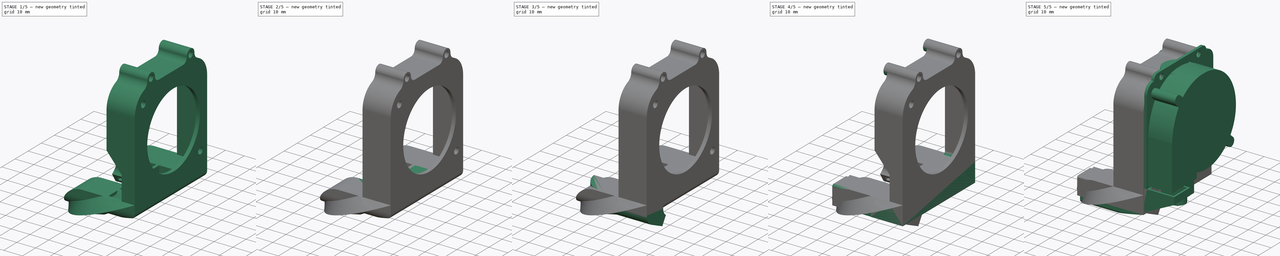
[diagram: build sequence overview — one tinted view per stage of 5, left to right]
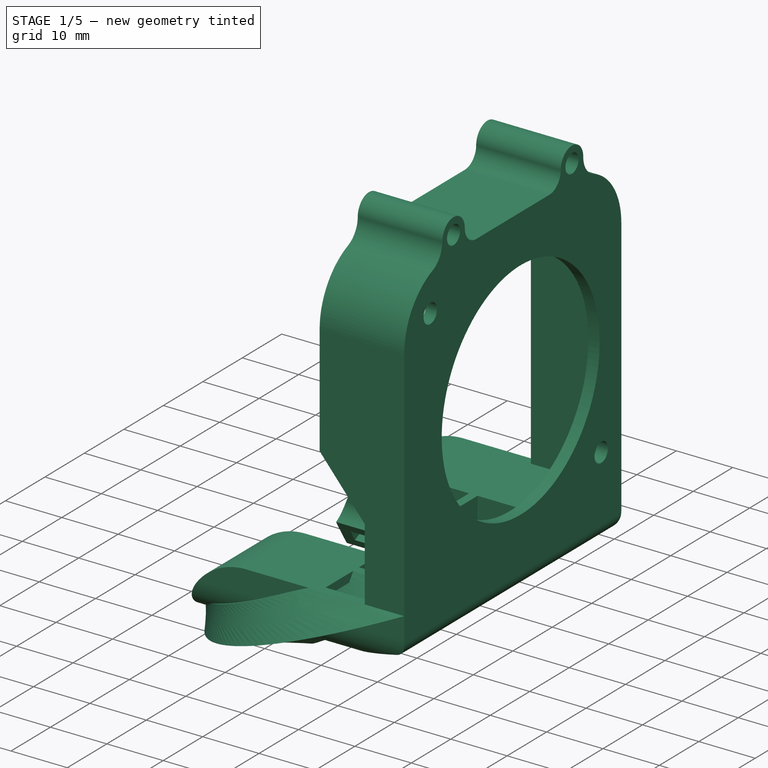
[diagram: stage 1 of 5 — iso view after this stage's code; geometry added in this stage tinted green]
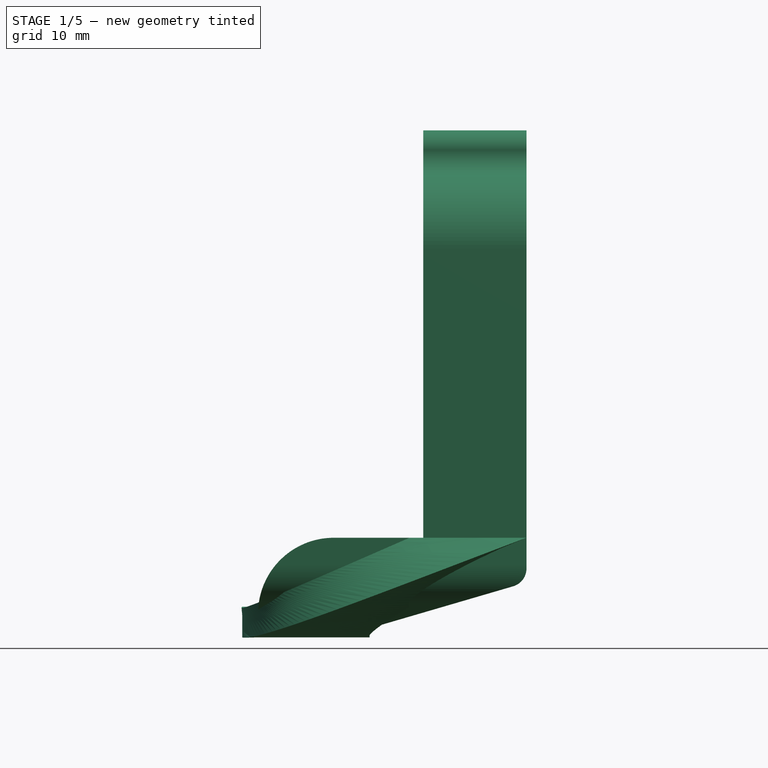
[diagram: stage 1 of 5 — front view after this stage's code; geometry added in this stage tinted green]
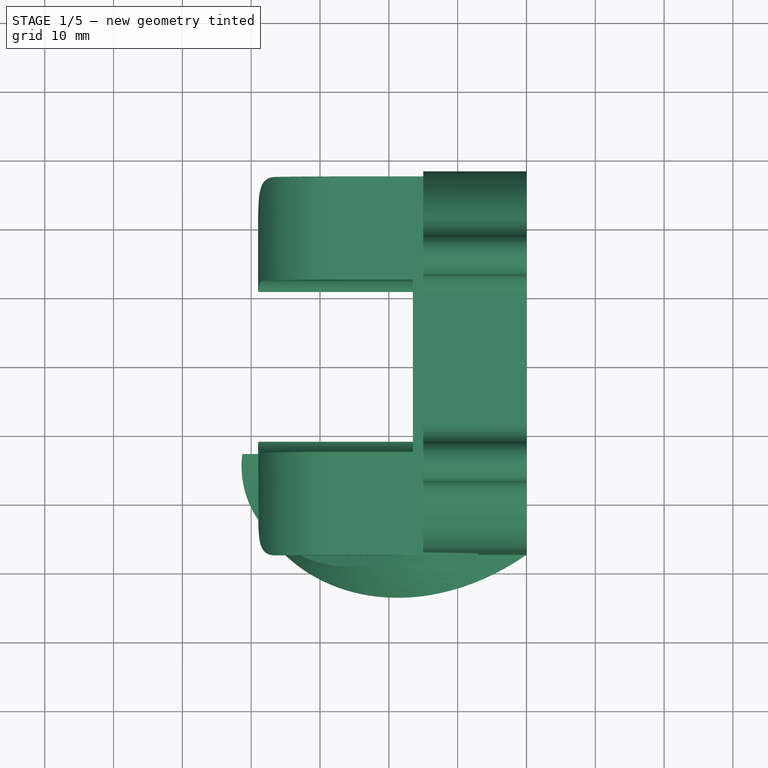
[diagram: stage 1 of 5 — top view after this stage's code; geometry added in this stage tinted green]
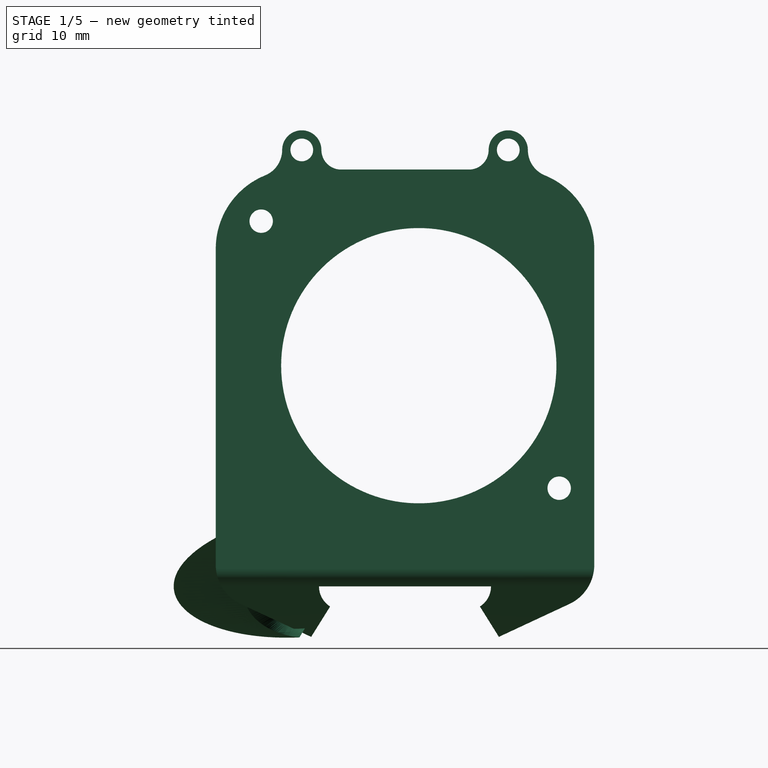
[diagram: stage 1 of 5 — right view after this stage's code; geometry added in this stage tinted green]
FCSTD DOCUMENT  (FreeCAD 0.21R33675 (Git))
Label: V6火山+5015方案B-垃圾桶
License: All rights reserved
LicenseURL: http://en.wikipedia.org/wiki/All_rights_reserved
objects: Sketcher::SketchObject×94, PartDesign::Pocket×49, PartDesign::Pad×35, PartDesign::Body×13, Part::Feature×13, PartDesign::Fillet×9, PartDesign::AdditivePipe×2, PartDesign::ShapeBinder×2, Part::Extrusion×2, PartDesign::Revolution×1, App::Part×1, PartDesign::Plane×1, PartDesign::SubtractivePipe×1, PartDesign::Mirrored×1, Part::Section×1
note: 321 computed .brp shape members not serialized (recipe doc carries the construction recipe); baked Part::Feature solids carry a one-line shape summary decoded from their .brp

FEATURE [PartDesign::Body] Body013  label="风扇安装座-还行2"
  Group = -> [Sketch085,Pad031,Sketch086,Pocket039,Sketch087,Pocket040,Sketch088,Pocket041,Sketch089,Pad032,Sketch090,Pocket042,Sketch091,Pocket043,Sketch092,Pad033,Sketch093,Pocket044,Fillet003,Fillet004,Fillet005]
  Origin = -> Origin017
  Placement = pos=(32,0,0) rot=(0,0,1;0rad)
  Tip = -> Fillet005
FEATURE [Sketcher::SketchObject] Sketch094
  FullyConstrained = true
  MapMode = 5
  Placement = pos=(0,0,0) rot=(0.57735,0.57735,0.57735;2.0944rad)
  Support = -> [YZ_Plane018]
  sketch-geometry (14):
    g0: Circle CenterX=15 CenterY=5.1 CenterZ=0 NormalX=0 NormalY=0 NormalZ=1 AngleXU=0 Radius=1.65
    g1: Circle CenterX=-15 CenterY=5.1 CenterZ=0 NormalX=0 NormalY=0 NormalZ=1 AngleXU=0 Radius=1.65
    g2: LineSegment StartX=27.5 StartY=-9.25366 StartZ=0 EndX=27.5 EndY=-51.25 EndZ=0
    g3: LineSegment StartX=27.5 StartY=-51.25 StartZ=0 EndX=-27.5 EndY=-51.25 EndZ=0
    g4: LineSegment StartX=-27.5 StartY=-51.25 StartZ=0 EndX=-27.5 EndY=-9.25366 EndZ=0
    g5: ArcOfCircle CenterX=-16 CenterY=-9.25366 CenterZ=0 NormalX=0 NormalY=0 NormalZ=1 AngleXU=0 Radius=11.5 StartAngle=1.9578 EndAngle=3.14159
    g6: ArcOfCircle CenterX=16 CenterY=-9.25366 CenterZ=0 NormalX=0 NormalY=0 NormalZ=1 AngleXU=0 Radius=11.5 StartAngle=1e-16 EndAngle=1.18379
    g7: ArcOfCircle CenterX=-15 CenterY=5.1 CenterZ=0 NormalX=0 NormalY=0 NormalZ=1 AngleXU=0 Radius=2.85 StartAngle=2e-16 EndAngle=3.14159
    g8: ArcOfCircle CenterX=15 CenterY=5.1 CenterZ=0 NormalX=0 NormalY=0 NormalZ=1 AngleXU=0 Radius=2.85 StartAngle=0 EndAngle=3.14159
    g9: ArcOfCircle CenterX=9.3 CenterY=5.1 CenterZ=0 NormalX=0 NormalY=0 NormalZ=1 AngleXU=0 Radius=2.85 StartAngle=4.71239 EndAngle=6.28319
    g10: ArcOfCircle CenterX=21.85 CenterY=5.1 CenterZ=0 NormalX=0 NormalY=0 NormalZ=1 AngleXU=0 Radius=4 StartAngle=3.14159 EndAngle=4.32538
    g11: ArcOfCircle CenterX=-9.3 CenterY=5.1 CenterZ=0 NormalX=0 NormalY=0 NormalZ=1 AngleXU=0 Radius=2.85 StartAngle=3.14159 EndAngle=4.71239
    g12: ArcOfCircle CenterX=-21.85 CenterY=5.1 CenterZ=0 NormalX=0 NormalY=0 NormalZ=1 AngleXU=0 Radius=4 StartAngle=5.0994 EndAngle=6.28319
    g13: LineSegment StartX=-9.3 StartY=2.25 StartZ=0 EndX=9.3 EndY=2.25 EndZ=0
  constraints (36):
    c: Symmetric(g1,g0,g-2)
    c: Diameter(g0) = 3.3
    c: DistanceX(g0) = 15
    c: DistanceY(g0) = 5.1
    c: Equal(g1,g0)
    c: Coincident(g3,g4)
    c: Vertical(g2)
    c: Vertical(g4)
    c: Coincident(g2,g3)
    c: Equal(g6,g5)
    c: Tangent(g6,g2) = 1.5708
    c: Tangent(g5,g4) = 1.5708
    c: Symmetric(g2,g3,g-2)
    c: Distance(g3) = 55
    c: Radius(g6) = 11.5
    c: Coincident(g7,g1)
    c: Coincident(g8,g0)
    c: Equal(g8,g7)
    c: Horizontal(g9,g8)
    c: Horizontal(g11,g7)
    c: Horizontal(g12,g7)
    c: Tangent(g13,g11) = -1.5708
    c: Tangent(g5,g12) = 1.5708
    c: Tangent(g6,g10) = 1.5708
    c: Diameter(g10) = 8
    c: Diameter(g9) = 5.7
    c: Tangent(g9,g13) = -1.5708
    c: Tangent(g8,g9) = 1.5708
    c: Tangent(g8,g10) = 1.5708
    c: Diameter(g11) = 5.7
    c: Equal(g12,g10)
    c: Tangent(g7,g12) = 1.5708
    c: Tangent(g7,g11) = 1.5708
    c: Diameter(g8) = 5.7
    c: Horizontal(g8,g8)
    c: DistanceY(g2,g9) = 53.5
FEATURE [PartDesign::Pad] Pad034
  Direction = (1,-2e-16,3e-16)
  Length = 15
  Length2 = 10
  Placement = pos=(0,0,0) rot=(0.57735,0.57735,0.57735;2.0944rad)
  Profile = -> Sketch094
  ReferenceAxis = -> Sketch094 [N_Axis]
  Reversed = true
  Type = 0
FEATURE [Sketcher::SketchObject] Sketch095
  AttachmentOffset = pos=(0,0,0) rot=(0,0,1;3.14159rad)
  ExternalGeometry = -> [Pad034]
  FullyConstrained = true
  MapMode = 5
  Placement = pos=(-15,3.3e-15,-3.3e-15) rot=(0.57735,-0.57735,-0.57735;2.0944rad)
  Support = -> [Pad034]
  sketch-geometry (6):
    g0: LineSegment StartX=-26 StartY=-9.25366 StartZ=0 EndX=-26 EndY=-51.25 EndZ=0
    g1: LineSegment StartX=-26 StartY=-51.25 StartZ=0 EndX=26 EndY=-51.25 EndZ=0
    g2: LineSegment StartX=26 StartY=-51.25 StartZ=0 EndX=26 EndY=-9.25366 EndZ=0
    g3: LineSegment StartX=-16 StartY=0.746342 StartZ=0 EndX=16 EndY=0.746342 EndZ=0
    g4: ArcOfCircle CenterX=-16 CenterY=-9.25366 CenterZ=0 NormalX=0 NormalY=0 NormalZ=1 AngleXU=0 Radius=10 StartAngle=1.5708 EndAngle=3.14159
    g5: ArcOfCircle CenterX=16 CenterY=-9.25366 CenterZ=0 NormalX=0 NormalY=0 NormalZ=1 AngleXU=0 Radius=10 StartAngle=0 EndAngle=1.5708
  constraints (14):
    c: Vertical(g0)
    c: Coincident(g0,g1)
    c: Horizontal(g1)
    c: Coincident(g1,g2)
    c: Vertical(g2)
    c: Horizontal(g3)
    c: Tangent(g5,g3) = 1.5708
    c: Tangent(g5,g2) = -1.5708
    c: Tangent(g4,g3) = 1.5708
    c: Tangent(g4,g0) = -1.5708
    c: Coincident(g4,g-6)
    c: Coincident(g5,g-4)
    c: DistanceX(g2,g-4) = 1.5
    c: PointOnObject(g1,g-8)
FEATURE [PartDesign::Pocket] Pocket045
  BaseFeature = -> Pad034
  Direction = (1,-5e-16,5e-16)
  Length = 0
  Length2 = 5
  Offset = -2
  Placement = pos=(0,0,0) rot=(0.57735,0.57735,0.57735;2.0944rad)
  Profile = -> Sketch095
  ReferenceAxis = -> Sketch095 [N_Axis]
  Type = 3
  UpToFace = -> Pad034 [Face13]
FEATURE [Sketcher::SketchObject] Sketch096
  ExternalGeometry = -> [Pocket045]
  FullyConstrained = true
  MapMode = 5
  Placement = pos=(0,0,0) rot=(0.57735,0.57735,0.57735;2.0944rad)
  Support = -> [Pocket045]
  sketch-geometry (5):
    g0: Circle CenterX=-15 CenterY=5.1 CenterZ=0 NormalX=0 NormalY=0 NormalZ=1 AngleXU=0 Radius=1.65
    g1: Circle CenterX=15 CenterY=5.1 CenterZ=0 NormalX=0 NormalY=0 NormalZ=1 AngleXU=0 Radius=1.65
    g2: Circle CenterX=22.4 CenterY=-44.05 CenterZ=0 NormalX=0 NormalY=0 NormalZ=1 AngleXU=0 Radius=1.7
    g3: Circle CenterX=-20.9 CenterY=-5.25 CenterZ=0 NormalX=0 NormalY=0 NormalZ=1 AngleXU=0 Radius=1.7
    g4: Circle CenterX=2 CenterY=-26.25 CenterZ=0 NormalX=0 NormalY=0 NormalZ=1 AngleXU=0 Radius=20
  constraints (13):
    c: Coincident(g0,g-4)
    c: Coincident(g1,g-3)
    c: Equal(g1,g0)
    c: Diameter(g1) = 3.3
    c: Diameter(g2) = 3.4
    c: DistanceX(g2,g-5) = 5.1
    c: DistanceY(g-5,g2) = 7.2
    c: DistanceY(g3,g-6) = 7.5
    c: Equal(g3,g2)
    c: DistanceX(g-7,g3) = 6.6
    c: DistanceX(g4,g-5) = 25.5
    c: DistanceY(g4,g-6) = 28.5
    c: Diameter(g4) = 40
FEATURE [PartDesign::Pocket] Pocket046
  BaseFeature = -> Pocket045
  Direction = (-1,9e-16,-6e-16)
  Length = 0
  Length2 = 5
  Placement = pos=(0,0,0) rot=(0.57735,0.57735,0.57735;2.0944rad)
  Profile = -> Sketch096
  ReferenceAxis = -> Sketch096 [N_Axis]
  Type = 3
  UpToFace = -> Pocket045 [Face5]
FEATURE [Sketcher::SketchObject] Sketch097
  AttachmentOffset = pos=(0,0,0) rot=(0,0,1;3.14159rad)
  ExternalGeometry = -> [Pocket046]
  FullyConstrained = true
  MapMode = 5
  Placement = pos=(-1.21e-14,-27.5,6.1e-15) rot=(-0.57735,0.57735,-0.57735;4.18879rad)
  Support = -> [Pocket046]
  sketch-geometry (4):
    g0: LineSegment StartX=-51.25 StartY=15 StartZ=0 EndX=-28.816 EndY=15 EndZ=0
    g1: LineSegment StartX=-28.816 StartY=15 StartZ=0 EndX=-38.35 EndY=7 EndZ=0
    g2: LineSegment StartX=-38.35 StartY=7 StartZ=0 EndX=-51.25 EndY=7 EndZ=0
    g3: LineSegment StartX=-51.25 StartY=7 StartZ=0 EndX=-51.25 EndY=15 EndZ=0
  constraints (11):
    c: Horizontal(g0)
    c: Coincident(g0,g1)
    c: Coincident(g1,g2)
    c: Horizontal(g2)
    c: Coincident(g2,g3)
    c: Coincident(g3,g0)
    c: Vertical(g3)
    c: Angle(g1,g2) = 2.44346
    c: Distance(g3) = 8
    c: Distance(g2) = 12.9
    c: Coincident(g0,g-3)
FEATURE [PartDesign::Pocket] Pocket047
  BaseFeature = -> Pocket046
  Direction = (4e-16,1,-8e-16)
  Length = 5
  Length2 = 5
  Placement = pos=(0,0,0) rot=(0.57735,0.57735,0.57735;2.0944rad)
  Profile = -> Sketch097
  ReferenceAxis = -> Sketch097 [N_Axis]
  Type = 0
FEATURE [Sketcher::SketchObject] Sketch098
  AttachmentOffset = pos=(0,0,-2) rot=(0,0,1;0rad)
  ExternalGeometry = -> [Pocket047]
  FullyConstrained = true
  MapMode = 5
  Placement = pos=(-2,4e-16,-4e-16) rot=(0.57735,0.57735,0.57735;2.0944rad)
  Support = -> [Pocket047]
  sketch-geometry (8):
    g0: LineSegment StartX=-27.5 StartY=-51.25 StartZ=0 EndX=-12.5 EndY=-51.25 EndZ=0
    g1: LineSegment StartX=-12.5 StartY=-51.25 StartZ=0 EndX=-12.5 EndY=-58.3226 EndZ=0
    g2: LineSegment StartX=-10.8828 StartY=-61.2401 StartZ=0 EndX=-13.6384 EndY=-65.65 EndZ=0
    g3: LineSegment StartX=-13.6384 StartY=-65.65 StartZ=0 EndX=-23.8625 EndY=-60.8824 EndZ=0
    g4: LineSegment StartX=-27.5 StartY=-55.1727 StartZ=0 EndX=-27.5 EndY=-51.25 EndZ=0
    g5: ArcOfCircle CenterX=-9.05973 CenterY=-58.3226 CenterZ=0 NormalX=0 NormalY=0 NormalZ=1 AngleXU=0 Radius=3.44027 StartAngle=3.14159 EndAngle=4.15388
    g6: ArcOfCircle CenterX=-21.2 CenterY=-55.1727 CenterZ=0 NormalX=0 NormalY=0 NormalZ=1 AngleXU=0 Radius=6.3 StartAngle=3.14159 EndAngle=4.27606
    g7: LineSegment StartX=-9.05973 StartY=-58.3226 StartZ=0 EndX=-10.8828 EndY=-61.2401 EndZ=0
  constraints (21):
    c: Horizontal(g0)
    c: Coincident(g0,g1)
    c: Coincident(g2,g3)
    c: Coincident(g4,g0)
    c: Vertical(g4)
    c: Coincident(g0,g-3)
    c: Tangent(g1,g5) = -1.5708
    c: Tangent(g3,g6) = 1.5708
    c: Tangent(g4,g6) = 1.5708
    c: Angle(g0,g2) = 1.01229
    c: Coincident(g2,g5)
    c: Vertical(g1)
    c: Coincident(g7,g5)
    c: Tangent(g7,g2) = -1.5708
    c: Angle(g2,g3) = 1.69297
    c: Diameter(g6) = 12.6
    c: Distance(g2) = 5.2
    c: DistanceY(g4,g0) = 3.92268
    c: DistanceY(g1,g0) = 7.07264
    c: Distance(g0) = 15
    c: DistanceY(g2,g0) = 14.4
FEATURE [PartDesign::Pad] Pad035
  BaseFeature = -> Pocket047
  Direction = (1,-2e-16,2e-16)
  Length = 37
  Length2 = 10
  Placement = pos=(0,0,0) rot=(0.57735,0.57735,0.57735;2.0944rad)
  Profile = -> Sketch098
  ReferenceAxis = -> Sketch098 [N_Axis]
  Reversed = true
  Type = 0
FEATURE [Sketcher::SketchObject] Sketch099
  AttachmentOffset = pos=(0,0,0) rot=(0,0,1;1.5708rad)
  ExternalGeometry = -> [Pad035]
  FullyConstrained = true
  MapMode = 5
  Placement = pos=(-1.21e-14,-27.5,0) rot=(1,0,0;1.5708rad)
  Support = -> [Pad035]
  sketch-geometry (3):
    g0: LineSegment StartX=-2 StartY=-58.3226 StartZ=0 EndX=-27.0576 EndY=-65.65 EndZ=0
    g1: LineSegment StartX=-27.0576 StartY=-65.65 StartZ=0 EndX=-2 EndY=-65.65 EndZ=0
    g2: LineSegment StartX=-2 StartY=-65.65 StartZ=0 EndX=-2 EndY=-58.3226 EndZ=0
  constraints (7):
    c: Coincident(g-4,g0)
    c: Coincident(g0,g1)
    c: Coincident(g1,g2)
    c: Coincident(g2,g0)
    c: Vertical(g2)
    c: Tangent(g1,g-5)
    c: Angle(g1,g0) = 0.284489
FEATURE [PartDesign::Pocket] Pocket048
  BaseFeature = -> Pad035
  Direction = (3e-16,1,0)
  Length = 5
  Length2 = 5
  Placement = pos=(0,0,0) rot=(0.57735,0.57735,0.57735;2.0944rad)
  Profile = -> Sketch099
  ReferenceAxis = -> Sketch099 [N_Axis]
  Type = 1
FEATURE [Sketcher::SketchObject] Sketch100
  AttachmentOffset = pos=(0,0,-2) rot=(0,0,1;3.14159rad)
  ExternalGeometry = -> [Pocket048]
  FullyConstrained = false
  MapMode = 5
  Placement = pos=(-37,8.1e-15,-8.1e-15) rot=(0.57735,-0.57735,-0.57735;2.0944rad)
  Support = -> [Pocket048]
  sketch-geometry (11):
    g0: LineSegment StartX=14 StartY=-58.3226 StartZ=0 EndX=14 EndY=-52.75 EndZ=0
    g1: LineSegment StartX=14 StartY=-52.75 StartZ=0 EndX=26 EndY=-52.75 EndZ=0
    g2: LineSegment StartX=26 StartY=-52.75 StartZ=0 EndX=26 EndY=-55.1727 EndZ=0
    g3: ArcOfCircle CenterX=21.2 CenterY=-55.1727 CenterZ=0 NormalX=0 NormalY=0 NormalZ=1 AngleXU=0 Radius=4.8 StartAngle=5.14872 EndAngle=6.28319
    g4: LineSegment StartX=23.2286 StartY=-59.523 StartZ=0 EndX=12.8375 EndY=-64.3684 EndZ=0
    g5: LineSegment StartX=12.8375 StartY=-64.3684 StartZ=0 EndX=11.6777 EndY=-62.5122 EndZ=0
    g6: ArcOfCircle CenterX=9.05973 CenterY=-58.3226 CenterZ=0 NormalX=0 NormalY=0 NormalZ=1 AngleXU=0 Radius=4.94027 StartAngle=5.27089 EndAngle=6.28319
    g7: LineSegment StartX=16.3057 StartY=-52.75 StartZ=0 EndX=16.3057 EndY=-51.25 EndZ=0
    g8: LineSegment StartX=14 StartY=-55.5478 StartZ=0 EndX=12.5 EndY=-55.5478 EndZ=0
    g9: LineSegment StartX=26 StartY=-54.3027 StartZ=0 EndX=27.5 EndY=-54.3027 EndZ=0
    g10: LineSegment StartX=19.9438 StartY=-61.0547 StartZ=0 EndX=20.5777 EndY=-62.4141 EndZ=0
  constraints (29):
    c: Vertical(g0)
    c: Coincident(g0,g1)
    c: Horizontal(g1)
    c: Coincident(g1,g2)
    c: Vertical(g2)
    c: Tangent(g2,g3) = 1.5708
    c: Tangent(g3,g4) = 1.5708
    c: Coincident(g4,g5)
    c: Tangent(g5,g-7)
    c: PointOnObject(g7,g1)
    c: PointOnObject(g7,g-3)
    c: Vertical(g7)
    c: PointOnObject(g8,g0)
    c: PointOnObject(g8,g-9)
    c: PointOnObject(g9,g2)
    c: PointOnObject(g9,g-4)
    c: Horizontal(g9)
    c: PointOnObject(g10,g4)
    c: PointOnObject(g10,g-6)
    c: Coincident(g3,g-5)
    c: Coincident(g6,g-8)
    c: Coincident(g5,g6)
    c: Perpendicular(g8,g0)
    c: Perpendicular(g10,g-6)
    c: Equal(g9,g7)
    c: Equal(g7,g8)
    c: Equal(g8,g10)
    c: Distance(g9) = 1.5
    c: Tangent(g0,g6) = -1.5708
FEATURE [PartDesign::Pocket] Pocket049
  BaseFeature = -> Pocket048
  Direction = (1,-7e-16,3e-16)
  Length = 0
  Length2 = 5
  Offset = -5
  Placement = pos=(0,0,0) rot=(0.57735,0.57735,0.57735;2.0944rad)
  Profile = -> Sketch100
  ReferenceAxis = -> Sketch100 [N_Axis]
  Type = 3
  UpToFace = -> Pocket048 [Face32]
FEATURE [Sketcher::SketchObject] Sketch101
  ExternalGeometry = -> [Pocket049]
  FullyConstrained = true
  MapMode = 5
  Placement = pos=(-2,4e-16,-4e-16) rot=(0.57735,0.57735,0.57735;2.0944rad)
  Support = -> [Pocket049]
  sketch-geometry (6):
    g0: LineSegment StartX=-27.5 StartY=-51.25 StartZ=0 EndX=-26 EndY=-51.25 EndZ=0
    g1: LineSegment StartX=-26 StartY=-51.25 StartZ=0 EndX=-12.5 EndY=-51.25 EndZ=0
    g2: LineSegment StartX=-12.5 StartY=-51.25 StartZ=0 EndX=-12.5 EndY=-58.3226 EndZ=0
    g3: LineSegment StartX=-27.5 StartY=-51.25 StartZ=0 EndX=-27.5 EndY=-55.1727 EndZ=0
    g4: ArcOfCircle CenterX=-21.2 CenterY=-55.1727 CenterZ=0 NormalX=0 NormalY=0 NormalZ=1 AngleXU=0 Radius=6.3 StartAngle=3.14159 EndAngle=3.66518
    g5: LineSegment StartX=-26.656 StartY=-58.3226 StartZ=0 EndX=-12.5 EndY=-58.3226 EndZ=0
  constraints (12):
    c: Coincident(g0,g-8)
    c: Coincident(g0,g1)
    c: Coincident(g1,g-4)
    c: Coincident(g1,g2)
    c: Coincident(g2,g-5)
    c: Coincident(g0,g3)
    c: Tangent(g3,g4) = -1.5708
    c: Coincident(g4,g5)
    c: Coincident(g5,g2)
    c: Coincident(g4,g-7)
    c: Coincident(g0,g-8)
    c: Coincident(g3,g-7)
FEATURE [PartDesign::Pad] Pad036
  BaseFeature = -> Pocket049
  Direction = (1,-8e-16,1e-16)
  Length = 2
  Length2 = 10
  Placement = pos=(0,0,0) rot=(0.57735,0.57735,0.57735;2.0944rad)
  Profile = -> Sketch101
  ReferenceAxis = -> Sketch101 [N_Axis]
  Type = 0
FEATURE [Sketcher::SketchObject] Sketch102
  ExternalGeometry = -> [Pad036]
  FullyConstrained = true
  MapMode = 5
  Placement = pos=(-1.25e-14,-12.5,-1.4e-15) rot=(0.57735,0.57735,0.57735;4.18879rad)
  Support = -> [Pad036]
  sketch-geometry (3):
    g0: LineSegment StartX=-58.3226 StartY=0 StartZ=0 EndX=-58.3226 EndY=-2 EndZ=0
    g1: LineSegment StartX=-58.3226 StartY=-2 StartZ=0 EndX=-57.7378 EndY=6.44e-14 EndZ=0
    g2: LineSegment StartX=-57.7378 StartY=6.44e-14 StartZ=0 EndX=-58.3226 EndY=0 EndZ=0
  constraints (7):
    c: Coincident(g-4,g0)
    c: Coincident(g0,g-3)
    c: Coincident(g0,g1)
    c: PointOnObject(g1,g-4)
    c: Coincident(g1,g2)
    c: Coincident(g2,g0)
    c: Tangent(g-5,g1)
FEATURE [PartDesign::Pocket] Pocket050
  BaseFeature = -> Pad036
  Direction = (-8e-16,-1,-1e-16)
  Length = 5
  Length2 = 5
  Placement = pos=(0,0,0) rot=(0.57735,0.57735,0.57735;2.0944rad)
  Profile = -> Sketch102
  ReferenceAxis = -> Sketch102 [N_Axis]
  Type = 1
FEATURE [PartDesign::Fillet] Fillet006
  Base = -> Pocket050 [Edge51,Edge117]
  BaseFeature = -> Pocket050
  Placement = pos=(0,0,0) rot=(0.57735,0.57735,0.57735;2.0944rad)
  Radius = 2.7
  SupportTransform = false
  UseAllEdges = false
FEATURE [PartDesign::Fillet] Fillet007
  Base = -> Fillet006 [Edge127,Edge89]
  BaseFeature = -> Fillet006
  Placement = pos=(0,0,0) rot=(0.57735,0.57735,0.57735;2.0944rad)
  Radius = 11
  SupportTransform = false
  UseAllEdges = false
FEATURE [PartDesign::Fillet] Fillet008
  Base = -> Fillet007 [Edge100]
  BaseFeature = -> Fillet007
  Placement = pos=(0,0,0) rot=(0.57735,0.57735,0.57735;2.0944rad)
  Radius = 1.2
  SupportTransform = false
  UseAllEdges = false
FEATURE [PartDesign::Mirrored] Mirrored
  BaseFeature = -> Fillet008
  MirrorPlane = -> XZ_Plane018
  Originals = -> [Pad035,Pocket048,Pocket049,Pad036,Pocket050,Fillet006,Fillet007,Fillet008]
  Placement = pos=(0,0,0) rot=(0.57735,0.57735,0.57735;2.0944rad)
FEATURE [Sketcher::SketchObject] Sketch103
  ExternalGeometry = -> [Mirrored]
  FullyConstrained = false
  MapMode = 5
  Placement = pos=(1.13e-14,-1.13e-14,-51.25) rot=(0,0,-1;1.5708rad)
  Support = -> [Mirrored]
  sketch-geometry (4):
    g0: LineSegment StartX=26 StartY=-2 StartZ=0 EndX=10.6424 EndY=-2 EndZ=0
    g1: LineSegment StartX=10.6424 StartY=-2 StartZ=0 EndX=10.6424 EndY=-15 EndZ=0
    g2: LineSegment StartX=10.6424 StartY=-15 StartZ=0 EndX=26 EndY=-15 EndZ=0
    g3: LineSegment StartX=26 StartY=-15 StartZ=0 EndX=26 EndY=-2 EndZ=0
  constraints (10):
    c: Coincident(g0,g1)
    c: Coincident(g1,g2)
    c: Coincident(g2,g3)
    c: Coincident(g3,g0)
    c: Horizontal(g0)
    c: Horizontal(g2)
    c: Vertical(g1)
    c: Vertical(g3)
    c: Coincident(g0,g-3)
    c: Distance(g3) = 13
FEATURE [PartDesign::Pocket] Pocket051
  BaseFeature = -> Mirrored
  Direction = (2e-16,-2e-16,-1)
  Length = 6
  Length2 = 5
  Placement = pos=(0,0,0) rot=(0.57735,0.57735,0.57735;2.0944rad)
  Profile = -> Sketch103
  ReferenceAxis = -> Sketch103 [N_Axis]
  Type = 0
FEATURE [Sketcher::SketchObject] Sketch104
  AttachmentOffset = pos=(0,0,0) rot=(0,0,-1;1.5708rad)
  ExternalGeometry = -> [Pocket051]
  FullyConstrained = true
  MapMode = 5
  Placement = pos=(-5.5e-15,-12.5,0) rot=(0,0.707107,0.707107;3.14159rad)
  Support = -> [Pocket051]
  sketch-geometry (10):
    g0: LineSegment StartX=1.9422 StartY=-58.3057 StartZ=0 EndX=2 EndY=-58.3226 EndZ=0
    g1: LineSegment StartX=2 StartY=-51.25 StartZ=0 EndX=-5.84e-14 EndY=-51.25 EndZ=0
    g2: LineSegment StartX=-5.84e-14 StartY=-51.25 StartZ=0 EndX=9.304e-13 EndY=-55.7143 EndZ=0
    g3: ArcOfCircle CenterX=2.7 CenterY=-55.7143 CenterZ=0 NormalX=0 NormalY=0 NormalZ=1 AngleXU=0 Radius=2.7 StartAngle=3.14159 EndAngle=4.4279
    g4: LineSegment StartX=2 StartY=-58.3226 StartZ=0 EndX=16.5 EndY=-58.3226 EndZ=0
    g5: LineSegment StartX=16.5 StartY=-58.3226 StartZ=0 EndX=16.5 EndY=-51.25 EndZ=0
    g6: LineSegment StartX=16.5 StartY=-51.25 StartZ=0 EndX=15 EndY=-51.25 EndZ=0
    g7: LineSegment StartX=15 StartY=-51.25 StartZ=0 EndX=15 EndY=-57.25 EndZ=0
    g8: LineSegment StartX=15 StartY=-57.25 StartZ=0 EndX=2 EndY=-57.25 EndZ=0
    g9: LineSegment StartX=2 StartY=-57.25 StartZ=0 EndX=2 EndY=-51.25 EndZ=0
  constraints (24):
    c: Coincident(g0,g-8)
    c: Coincident(g0,g-8)
    c: Coincident(g-3,g1)
    c: Coincident(g1,g-4)
    c: Coincident(g1,g2)
    c: Coincident(g2,g-5)
    c: Tangent(g2,g3) = -1.5708
    c: Coincident(g3,g0)
    c: Coincident(g0,g4)
    c: PointOnObject(g4,g-6)
    c: Coincident(g4,g5)
    c: PointOnObject(g5,g-7)
    c: Vertical(g5)
    c: Coincident(g5,g6)
    c: Coincident(g6,g-7)
    c: Coincident(g6,g7)
    c: Coincident(g7,g-9)
    c: Coincident(g7,g8)
    c: Coincident(g8,g-9)
    c: Coincident(g8,g9)
    c: Coincident(g9,g1)
    c: Distance(g6) = 2
    c: DistanceY(g0,g8) = 1.07264
    c: Distance(g6) = 1.5
FEATURE [PartDesign::Pad] Pad037
  BaseFeature = -> Pocket051
  Direction = (2e-16,1,-2e-16)
  Length = 10
  Length2 = 10
  Placement = pos=(0,0,0) rot=(0.57735,0.57735,0.57735;2.0944rad)
  Profile = -> Sketch104
  ReferenceAxis = -> Sketch104 [N_Axis]
  Type = 3
  UpToFace = -> Pocket051 [Face1]
FEATURE [PartDesign::Body] Body014  label="风扇安装座-能用1"
  Group = -> [Sketch094,Pad034,Sketch095,Pocket045,Sketch096,Pocket046,Sketch097,Pocket047,Sketch098,Pad035,Sketch099,Pocket048,Sketch100,Pocket049,Sketch101,Pad036,Sketch102,Pocket050,Fillet006,Fillet007,Fillet008,Mirrored,Sketch103,Pocket051,Sketch104,Pad037,Sketch105,Pocket052,Sketch106,Pad038,Sketch107,Pad039,Sketch108,Pad040]
  Origin = -> Origin018
  Placement = pos=(32,0,0) rot=(0,0,1;0rad)
  Tip = -> Pad040
FEATURE [Sketcher::SketchObject] Sketch109
  FullyConstrained = true
  MapMode = 5
  Placement = pos=(0,0,0) rot=(0.57735,0.57735,0.57735;2.0944rad)
  Support = -> [YZ_Plane019]
  sketch-geometry (14):
    g0: Circle CenterX=15 CenterY=5.1 CenterZ=0 NormalX=0 NormalY=0 NormalZ=1 AngleXU=0 Radius=1.65
    g1: Circle CenterX=-15 CenterY=5.1 CenterZ=0 NormalX=0 NormalY=0 NormalZ=1 AngleXU=0 Radius=1.65
    g2: LineSegment StartX=27.5 StartY=-9.25366 StartZ=0 EndX=27.5 EndY=-51.25 EndZ=0
    g3: LineSegment StartX=27.5 StartY=-51.25 StartZ=0 EndX=-27.5 EndY=-51.25 EndZ=0
    g4: LineSegment StartX=-27.5 StartY=-51.25 StartZ=0 EndX=-27.5 EndY=-9.25366 EndZ=0
    g5: ArcOfCircle CenterX=-16 CenterY=-9.25366 CenterZ=0 NormalX=0 NormalY=0 NormalZ=1 AngleXU=0 Radius=11.5 StartAngle=1.9578 EndAngle=3.14159
    g6: ArcOfCircle CenterX=16 CenterY=-9.25366 CenterZ=0 NormalX=0 NormalY=0 NormalZ=1 AngleXU=0 Radius=11.5 StartAngle=1e-16 EndAngle=1.18379
    g7: ArcOfCircle CenterX=-15 CenterY=5.1 CenterZ=0 NormalX=0 NormalY=0 NormalZ=1 AngleXU=0 Radius=2.85 StartAngle=2e-16 EndAngle=3.14159
    g8: ArcOfCircle CenterX=15 CenterY=5.1 CenterZ=0 NormalX=0 NormalY=0 NormalZ=1 AngleXU=0 Radius=2.85 StartAngle=0 EndAngle=3.14159
    g9: ArcOfCircle CenterX=9.3 CenterY=5.1 CenterZ=0 NormalX=0 NormalY=0 NormalZ=1 AngleXU=0 Radius=2.85 StartAngle=4.71239 EndAngle=6.28319
    g10: ArcOfCircle CenterX=21.85 CenterY=5.1 CenterZ=0 NormalX=0 NormalY=0 NormalZ=1 AngleXU=0 Radius=4 StartAngle=3.14159 EndAngle=4.32538
    g11: ArcOfCircle CenterX=-9.3 CenterY=5.1 CenterZ=0 NormalX=0 NormalY=0 NormalZ=1 AngleXU=0 Radius=2.85 StartAngle=3.14159 EndAngle=4.71239
    g12: ArcOfCircle CenterX=-21.85 CenterY=5.1 CenterZ=0 NormalX=0 NormalY=0 NormalZ=1 AngleXU=0 Radius=4 StartAngle=5.0994 EndAngle=6.28319
    g13: LineSegment StartX=-9.3 StartY=2.25 StartZ=0 EndX=9.3 EndY=2.25 EndZ=0
  constraints (36):
    c: Symmetric(g1,g0,g-2)
    c: Diameter(g0) = 3.3
    c: DistanceX(g0) = 15
    c: DistanceY(g0) = 5.1
    c: Equal(g1,g0)
    c: Coincident(g3,g4)
    c: Vertical(g2)
    c: Vertical(g4)
    c: Coincident(g2,g3)
    c: Equal(g6,g5)
    c: Tangent(g6,g2) = 1.5708
    c: Tangent(g5,g4) = 1.5708
    c: Symmetric(g2,g3,g-2)
    c: Distance(g3) = 55
    c: Radius(g6) = 11.5
    c: Coincident(g7,g1)
    c: Coincident(g8,g0)
    c: Equal(g8,g7)
    c: Horizontal(g9,g8)
    c: Horizontal(g11,g7)
    c: Horizontal(g12,g7)
    c: Tangent(g13,g11) = -1.5708
    c: Tangent(g5,g12) = 1.5708
    c: Tangent(g6,g10) = 1.5708
    c: Diameter(g10) = 8
    c: Diameter(g9) = 5.7
    c: Tangent(g9,g13) = -1.5708
    c: Tangent(g8,g9) = 1.5708
    c: Tangent(g8,g10) = 1.5708
    c: Diameter(g11) = 5.7
    c: Equal(g12,g10)
    c: Tangent(g7,g12) = 1.5708
    c: Tangent(g7,g11) = 1.5708
    c: Diameter(g8) = 5.7
    c: Horizontal(g8,g8)
    c: DistanceY(g2,g9) = 53.5
FEATURE [PartDesign::Pad] Pad041
  Direction = (1,-2e-16,3e-16)
  Length = 15
  Length2 = 10
  Placement = pos=(0,0,0) rot=(0.57735,0.57735,0.57735;2.0944rad)
  Profile = -> Sketch109
  ReferenceAxis = -> Sketch109 [N_Axis]
  Reversed = true
  Type = 0
FEATURE [Sketcher::SketchObject] Sketch110
  AttachmentOffset = pos=(0,0,0) rot=(0,0,1;3.14159rad)
  ExternalGeometry = -> [Pad041]
  FullyConstrained = true
  MapMode = 5
  Placement = pos=(-15,3.3e-15,-3.3e-15) rot=(0.57735,-0.57735,-0.57735;2.0944rad)
  Support = -> [Pad041]
  sketch-geometry (6):
    g0: LineSegment StartX=-26 StartY=-9.25366 StartZ=0 EndX=-26 EndY=-51.25 EndZ=0
    g1: LineSegment StartX=-26 StartY=-51.25 StartZ=0 EndX=26 EndY=-51.25 EndZ=0
    g2: LineSegment StartX=26 StartY=-51.25 StartZ=0 EndX=26 EndY=-9.25366 EndZ=0
    g3: LineSegment StartX=-16 StartY=0.746342 StartZ=0 EndX=16 EndY=0.746342 EndZ=0
    g4: ArcOfCircle CenterX=-16 CenterY=-9.25366 CenterZ=0 NormalX=0 NormalY=0 NormalZ=1 AngleXU=0 Radius=10 StartAngle=1.5708 EndAngle=3.14159
    g5: ArcOfCircle CenterX=16 CenterY=-9.25366 CenterZ=0 NormalX=0 NormalY=0 NormalZ=1 AngleXU=0 Radius=10 StartAngle=0 EndAngle=1.5708
  constraints (14):
    c: Vertical(g0)
    c: Coincident(g0,g1)
    c: Horizontal(g1)
    c: Coincident(g1,g2)
    c: Vertical(g2)
    c: Horizontal(g3)
    c: Tangent(g5,g3) = 1.5708
    c: Tangent(g5,g2) = -1.5708
    c: Tangent(g4,g3) = 1.5708
    c: Tangent(g4,g0) = -1.5708
    c: Coincident(g4,g-6)
    c: Coincident(g5,g-4)
    c: DistanceX(g2,g-4) = 1.5
    c: PointOnObject(g1,g-8)
FEATURE [PartDesign::Pocket] Pocket053
  BaseFeature = -> Pad041
  Direction = (1,-5e-16,5e-16)
  Length = 0
  Length2 = 5
  Offset = -2
  Placement = pos=(0,0,0) rot=(0.57735,0.57735,0.57735;2.0944rad)
  Profile = -> Sketch110
  ReferenceAxis = -> Sketch110 [N_Axis]
  Type = 3
  UpToFace = -> Pad041 [Face13]
FEATURE [Sketcher::SketchObject] Sketch111
  ExternalGeometry = -> [Pocket053]
  FullyConstrained = true
  MapMode = 5
  Placement = pos=(0,0,0) rot=(0.57735,0.57735,0.57735;2.0944rad)
  Support = -> [Pocket053]
  sketch-geometry (5):
    g0: Circle CenterX=-15 CenterY=5.1 CenterZ=0 NormalX=0 NormalY=0 NormalZ=1 AngleXU=0 Radius=1.65
    g1: Circle CenterX=15 CenterY=5.1 CenterZ=0 NormalX=0 NormalY=0 NormalZ=1 AngleXU=0 Radius=1.65
    g2: Circle CenterX=22.4 CenterY=-44.05 CenterZ=0 NormalX=0 NormalY=0 NormalZ=1 AngleXU=0 Radius=1.7
    g3: Circle CenterX=-20.9 CenterY=-5.25 CenterZ=0 NormalX=0 NormalY=0 NormalZ=1 AngleXU=0 Radius=1.7
    g4: Circle CenterX=2 CenterY=-26.25 CenterZ=0 NormalX=0 NormalY=0 NormalZ=1 AngleXU=0 Radius=20
  constraints (13):
    c: Coincident(g0,g-4)
    c: Coincident(g1,g-3)
    c: Equal(g1,g0)
    c: Diameter(g1) = 3.3
    c: Diameter(g2) = 3.4
    c: DistanceX(g2,g-5) = 5.1
    c: DistanceY(g-5,g2) = 7.2
    c: DistanceY(g3,g-6) = 7.5
    c: Equal(g3,g2)
    c: DistanceX(g-7,g3) = 6.6
    c: DistanceX(g4,g-5) = 25.5
    c: DistanceY(g4,g-6) = 28.5
    c: Diameter(g4) = 40
FEATURE [PartDesign::Pocket] Pocket054
  BaseFeature = -> Pocket053
  Direction = (-1,9e-16,-6e-16)
  Length = 0
  Length2 = 5
  Placement = pos=(0,0,0) rot=(0.57735,0.57735,0.57735;2.0944rad)
  Profile = -> Sketch111
  ReferenceAxis = -> Sketch111 [N_Axis]
  Type = 3
  UpToFace = -> Pocket053 [Face5]
FEATURE [Sketcher::SketchObject] Sketch112
  AttachmentOffset = pos=(0,0,0) rot=(0,0,1;3.14159rad)
  ExternalGeometry = -> [Pocket054]
  FullyConstrained = true
  MapMode = 5
  Placement = pos=(-1.21e-14,-27.5,6.1e-15) rot=(-0.57735,0.57735,-0.57735;4.18879rad)
  Support = -> [Pocket054]
  sketch-geometry (4):
    g0: LineSegment StartX=-51.25 StartY=15 StartZ=0 EndX=-28.816 EndY=15 EndZ=0
    g1: LineSegment StartX=-28.816 StartY=15 StartZ=0 EndX=-38.35 EndY=7 EndZ=0
    g2: LineSegment StartX=-38.35 StartY=7 StartZ=0 EndX=-51.25 EndY=7 EndZ=0
    g3: LineSegment StartX=-51.25 StartY=7 StartZ=0 EndX=-51.25 EndY=15 EndZ=0
  constraints (11):
    c: Horizontal(g0)
    c: Coincident(g0,g1)
    c: Coincident(g1,g2)
    c: Horizontal(g2)
    c: Coincident(g2,g3)
    c: Coincident(g3,g0)
    c: Vertical(g3)
    c: Angle(g1,g2) = 2.44346
    c: Distance(g3) = 8
    c: Distance(g2) = 12.9
    c: Coincident(g0,g-3)
FEATURE [PartDesign::Pocket] Pocket055  label="完成外壳"
  BaseFeature = -> Pocket054
  Direction = (4e-16,1,-8e-16)
  Length = 5
  Length2 = 5
  Placement = pos=(0,0,0) rot=(0.57735,0.57735,0.57735;2.0944rad)
  Profile = -> Sketch112
  ReferenceAxis = -> Sketch112 [N_Axis]
  Type = 0
FEATURE [Sketcher::SketchObject] Sketch113
  ExternalGeometry = -> [Pocket055]
  FullyConstrained = true
  MapMode = 5
  Placement = pos=(1.44e-14,-2.26e-14,-51.25) rot=(0.707107,0.707107,0;3.14159rad)
  Support = -> [Pocket055]
  sketch-geometry (8):
    g0: LineSegment StartX=-27.5 StartY=-7.1e-15 StartZ=0 EndX=-17.5 EndY=-7.1e-15 EndZ=0
    g1: LineSegment StartX=-17.5 StartY=-7.1e-15 StartZ=0 EndX=-17.5 EndY=-17 EndZ=0
    g2: LineSegment StartX=-17.5 StartY=-17 StartZ=0 EndX=-27.5 EndY=-17 EndZ=0
    g3: LineSegment StartX=-27.5 StartY=-17 StartZ=0 EndX=-27.5 EndY=-7.1e-15 EndZ=0
    g4: LineSegment StartX=-26 StartY=-2 StartZ=0 EndX=-19 EndY=-2 EndZ=0
    g5: LineSegment StartX=-19 StartY=-2 StartZ=0 EndX=-19 EndY=-15 EndZ=0
    g6: LineSegment StartX=-19 StartY=-15 StartZ=0 EndX=-26 EndY=-15 EndZ=0
    g7: LineSegment StartX=-26 StartY=-15 StartZ=0 EndX=-26 EndY=-2 EndZ=0
  constraints (22):
    c: Coincident(g0,g1)
    c: Coincident(g1,g2)
    c: Coincident(g2,g3)
    c: Coincident(g3,g0)
    c: Horizontal(g0)
    c: Horizontal(g2)
    c: Vertical(g1)
    c: Vertical(g3)
    c: Coincident(g0,g-3)
    c: Distance(g3) = 17
    c: Coincident(g4,g5)
    c: Coincident(g5,g6)
    c: Coincident(g6,g7)
    c: Coincident(g7,g4)
    c: Horizontal(g4)
    c: Horizontal(g6)
    c: Vertical(g5)
    c: Vertical(g7)
    c: Coincident(g4,g-4)
    c: Distance(g5) = 13
    c: DistanceX(g4,g0) = 1.5
    c: Distance(g6) = 7
FEATURE [Sketcher::SketchObject] Sketch114
  AttachmentOffset = pos=(-29,-63.5,14) rot=(-1,0,0;0.541052rad)
  FullyConstrained = true
  MapMode = 5
  Placement = pos=(-29,-14,-63.5) rot=(1,0,0;1.02974rad)
  Support = -> [XZ_Plane019]
  sketch-geometry (12):
    g0: LineSegment StartX=-12.3 StartY=2.6 StartZ=0 EndX=6.2 EndY=2.6 EndZ=0
    g1: LineSegment StartX=6.2 StartY=2.6 StartZ=0 EndX=6.2 EndY=-2.6 EndZ=0
    g2: LineSegment StartX=6.2 StartY=-2.6 StartZ=0 EndX=-12.3 EndY=-2.6 EndZ=0
    g3: LineSegment StartX=-12.3 StartY=-2.6 StartZ=0 EndX=-12.3 EndY=2.6 EndZ=0
    g4: LineSegment StartX=-10.7 StartY=1 StartZ=0 EndX=4.6 EndY=1 EndZ=0
    g5: LineSegment StartX=4.6 StartY=1 StartZ=0 EndX=4.6 EndY=-1 EndZ=0
    g6: LineSegment StartX=4.6 StartY=-1 StartZ=0 EndX=-10.7 EndY=-1 EndZ=0
    g7: LineSegment StartX=-10.7 StartY=-1 StartZ=0 EndX=-10.7 EndY=1 EndZ=0
    g8: LineSegment StartX=6.2 StartY=2.6 StartZ=0 EndX=4.6 EndY=1 EndZ=0
    g9: LineSegment StartX=-12.3 StartY=2.6 StartZ=0 EndX=-10.7 EndY=1 EndZ=0
    g10: LineSegment StartX=-12.3 StartY=-2.6 StartZ=0 EndX=-10.7 EndY=-1 EndZ=0
    g11: LineSegment StartX=4.6 StartY=-1 StartZ=0 EndX=6.2 EndY=-2.6 EndZ=0
  constraints (31):
    c: Coincident(g0,g1)
    c: Coincident(g1,g2)
    c: Coincident(g2,g3)
    c: Coincident(g3,g0)
    c: Horizontal(g0)
    c: Horizontal(g2)
    c: Vertical(g1)
    c: Distance(g0) = 18.5
    c: Coincident(g4,g5)
    c: Coincident(g5,g6)
    c: Coincident(g6,g7)
    c: Coincident(g7,g4)
    c: Horizontal(g4)
    c: Horizontal(g6)
    c: Vertical(g5)
    c: Vertical(g7)
    c: Distance(g5) = 2
    c: DistanceY(g4,g0) = 1.6
    c: DistanceX(g5,g1) = 1.6
    c: Coincident(g8,g0)
    c: Coincident(g8,g4)
    c: Coincident(g9,g0)
    c: Coincident(g9,g4)
    c: Coincident(g10,g2)
    c: Coincident(g10,g6)
    c: Coincident(g11,g5)
    c: Coincident(g11,g1)
    c: Equal(g8,g9)
    c: Equal(g9,g10)
    c: Symmetric(g0,g2,g-1)
    c: DistanceX(g4) = 4.6
FEATURE [Sketcher::SketchObject] Sketch115  label="路径左视图"
  ExternalGeometry = -> [Sketch113,Sketch114]
  FullyConstrained = true
  MapMode = 5
  Placement = pos=(0,0,0) rot=(1,0,0;1.5708rad)
  Support = -> [XZ_Plane019]
  sketch-geometry (2):
    g0: ArcOfCircle CenterX=-21.5 CenterY=-51.25 CenterZ=0 NormalX=0 NormalY=0 NormalZ=1 AngleXU=0 Radius=4.5 StartAngle=5.15928 EndAngle=6.28319
    g1: LineSegment StartX=-19.5553 StartY=-55.3081 StartZ=0 EndX=-41.3 EndY=-65.7286 EndZ=0
  constraints (5):
    c: Coincident(g0,g-3)
    c: Horizontal(g0,g0)
    c: Coincident(g1,g-4)
    c: Tangent(g1,g0) = 1.5708
    c: Diameter(g0) = 9
FEATURE [Sketcher::SketchObject] Sketch116  label="路径顶视图"
  ExternalGeometry = -> [Pocket055,Sketch114,Sketch113]
  FullyConstrained = true
  MapMode = 5
  Support = -> [XY_Plane019]
  sketch-geometry (2):
    g0: ArcOfCircle CenterX=-36.8 CenterY=-15.3391 CenterZ=0 NormalX=0 NormalY=0 NormalZ=1 AngleXU=0 Radius=4.5 StartAngle=3.14159 EndAngle=4.3565
    g1: LineSegment StartX=-38.3679 StartY=-19.5571 StartZ=0 EndX=-17 EndY=-27.5 EndZ=0
  constraints (5):
    c: Coincident(g0,g-4)
    c: Coincident(g1,g-5)
    c: Tangent(g1,g0) = -1.5708
    c: Horizontal(g0,g0)
    c: Diameter(g0) = 9
FEATURE [Part::Extrusion] Extrude
  Base = -> Sketch115
  Dir = (0,-1,-2e-16)
  DirMode = 2
  FaceMakerClass = Part::FaceMakerBullseye
  LengthFwd = 100
  LengthRev = 0
  Solid = false
  Symmetric = false
FEATURE [Part::Extrusion] Extrude001
  Base = -> Sketch116
  Dir = (0,0,1)
  DirMode = 2
  FaceMakerClass = Part::FaceMakerBullseye
  LengthFwd = 0
  LengthRev = 100
  Solid = false
  Symmetric = false
FEATURE [Part::Section] Section  label="风扇安装座-还行3-3d路径"
  Approximation = false
  Base = -> Extrude
  Tool = -> Extrude001
FEATURE [PartDesign::ShapeBinder] ShapeBinder001
  Support = -> [Section]
  TraceSupport = false
FEATURE [PartDesign::AdditivePipe] AdditivePipe001
  AuxilleryCurvelinear = true
  AuxillerySpineTangent = false
  BaseFeature = -> Pocket055
  Binormal = (0,0,0)
  Mode = 0
  Placement = pos=(0,0,0) rot=(0.57735,0.57735,0.57735;2.0944rad)
  Profile = -> Sketch113
  Sections = -> [Sketch114]
  Spine = -> ShapeBinder001 [Edge1]
  SpineTangent = false
  Transformation = 1
  Transition = 0
FEATURE [Sketcher::SketchObject] Sketch118  label="Sketch117"
  ExternalGeometry = -> [AdditivePipe001]
  FullyConstrained = true
  MapMode = 5
  Placement = pos=(1.44e-14,-2.26e-14,-51.25) rot=(0.707107,0.707107,0;3.14159rad)
  Support = -> [AdditivePipe001]
  sketch-geometry (9):
    g0: LineSegment StartX=-19 StartY=-1.07e-14 StartZ=0 EndX=-6.2 EndY=-1.07e-14 EndZ=0
    g1: LineSegment StartX=-6.2 StartY=-1.07e-14 StartZ=0 EndX=-6.2 EndY=-17 EndZ=0
    g2: LineSegment StartX=-6.2 StartY=-17 StartZ=0 EndX=-19 EndY=-17 EndZ=0
    g3: LineSegment StartX=-19 StartY=-17 StartZ=0 EndX=-19 EndY=-1.07e-14 EndZ=0
    g4: GeomPoint X=-17.5 Y=-1.05e-14 Z=0
    g5: LineSegment StartX=-7.7 StartY=-2 StartZ=0 EndX=-17.5 EndY=-2 EndZ=0
    g6: LineSegment StartX=-17.5 StartY=-2 StartZ=0 EndX=-17.5 EndY=-15 EndZ=0
    g7: LineSegment StartX=-17.5 StartY=-15 StartZ=0 EndX=-7.7 EndY=-15 EndZ=0
    g8: LineSegment StartX=-7.7 StartY=-15 StartZ=0 EndX=-7.7 EndY=-2 EndZ=0
  constraints (26):
    c: Coincident(g0,g1)
    c: Coincident(g1,g2)
    c: Coincident(g2,g3)
    c: Coincident(g3,g0)
    c: Horizontal(g0)
    c: Horizontal(g2)
    c: Vertical(g1)
    c: Vertical(g3)
    c: PointOnObject(g4,g0)
    c: DistanceX(g0,g4) = 1.5
    c: DistanceY(g1,g1) = 17
    c: Coincident(g5,g6)
    c: Coincident(g6,g7)
    c: Coincident(g7,g8)
    c: Coincident(g8,g5)
    c: Horizontal(g5)
    c: Horizontal(g7)
    c: Vertical(g6)
    c: Vertical(g8)
    c: DistanceX(g5,g0) = 1.5
    c: Vertical(g4,g5)
    c: Vertical(g3,g-3)
    c: Horizontal(g3,g-4)
    c: Horizontal(g6,g-3)
    c: DistanceY(g2,g6) = 2
    c: Distance(g7) = 9.8
FEATURE [PartDesign::Body] Body015  label="风扇安装座-还行3"
  Group = -> [Sketch109,Pad041,Sketch110,Pocket053,Sketch111,Pocket054,Sketch112,Pocket055,Sketch113,Sketch114,Sketch115,Sketch116,ShapeBinder001,AdditivePipe001,Sketch118]
  Origin = -> Origin019
  Placement = pos=(32,0,0) rot=(0,0,1;0rad)
  Tip = -> AdditivePipe001
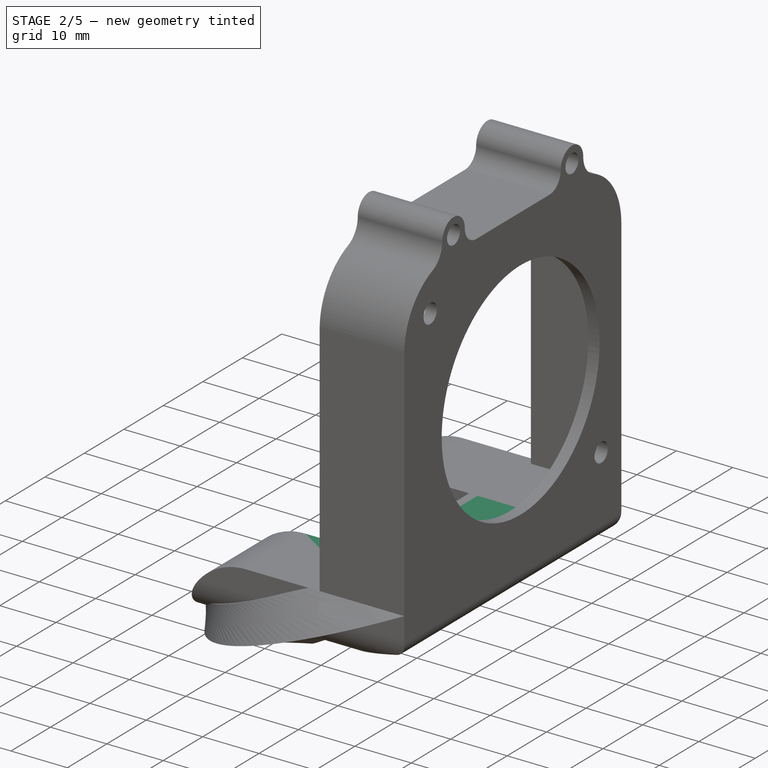
[diagram: stage 2 of 5 — iso view after this stage's code; geometry added in this stage tinted green]
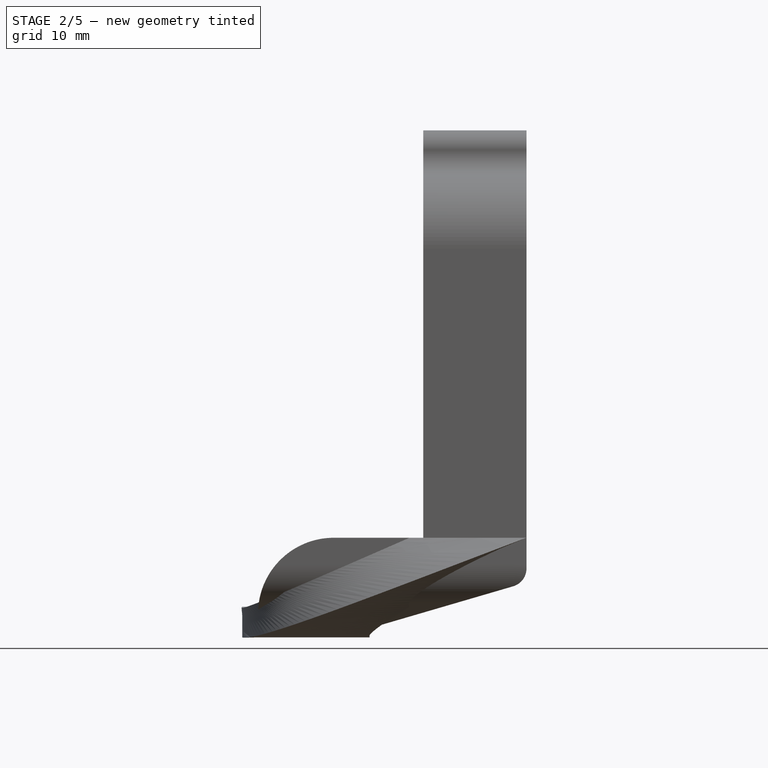
[diagram: stage 2 of 5 — front view after this stage's code; geometry added in this stage tinted green]
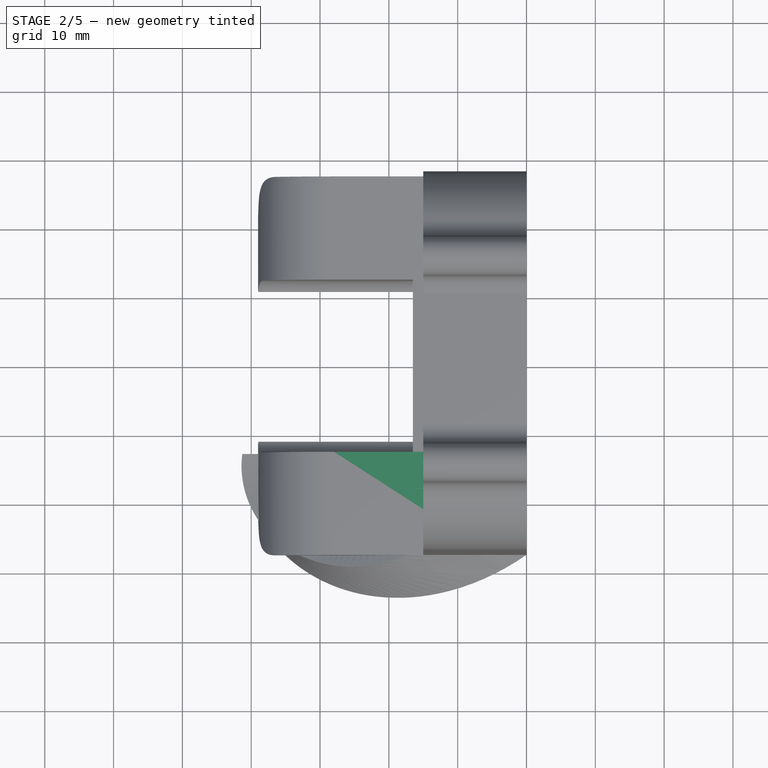
[diagram: stage 2 of 5 — top view after this stage's code; geometry added in this stage tinted green]
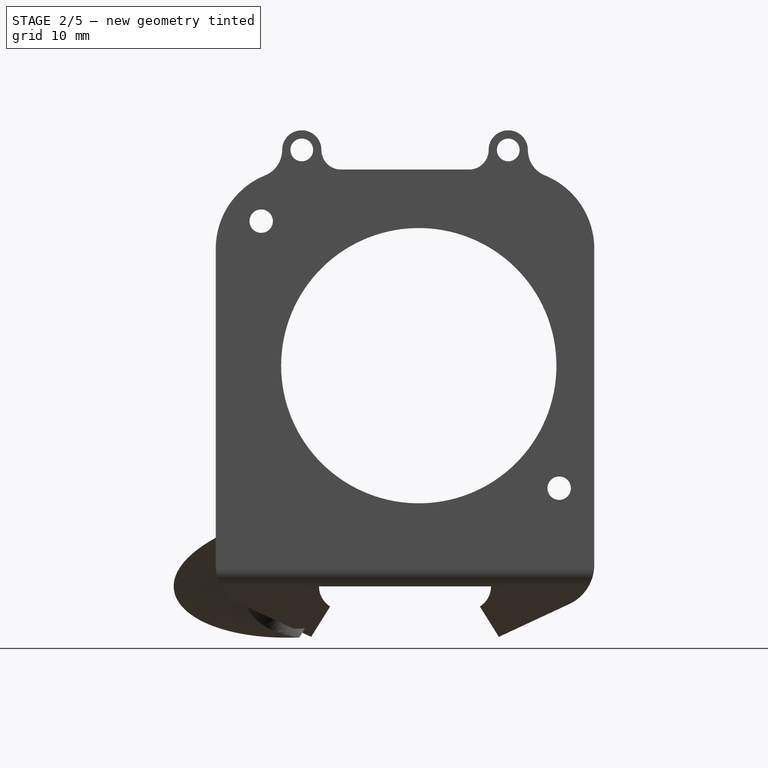
[diagram: stage 2 of 5 — right view after this stage's code; geometry added in this stage tinted green]
FEATURE [PartDesign::Body] Body010  label="风扇安装座-废品6"
  Group = -> [Sketch065,Pad026,Sketch066,Pocket026,Sketch067,Pocket027,Sketch068,Pocket028,Sketch069,Pad027,Sketch070,Pocket029,Sketch071,Pocket030]
  Origin = -> Origin014
  Placement = pos=(32,0,0) rot=(0,0,1;0rad)
  Tip = -> Pocket030
FEATURE [Sketcher::SketchObject] Sketch072
  FullyConstrained = true
  MapMode = 5
  Placement = pos=(0,0,0) rot=(0.57735,0.57735,0.57735;2.0944rad)
  Support = -> [YZ_Plane015]
  sketch-geometry (14):
    g0: Circle CenterX=15 CenterY=5.1 CenterZ=0 NormalX=0 NormalY=0 NormalZ=1 AngleXU=0 Radius=1.65
    g1: Circle CenterX=-15 CenterY=5.1 CenterZ=0 NormalX=0 NormalY=0 NormalZ=1 AngleXU=0 Radius=1.65
    g2: LineSegment StartX=27.5 StartY=-9.25366 StartZ=0 EndX=27.5 EndY=-51.25 EndZ=0
    g3: LineSegment StartX=27.5 StartY=-51.25 StartZ=0 EndX=-27.5 EndY=-51.25 EndZ=0
    g4: LineSegment StartX=-27.5 StartY=-51.25 StartZ=0 EndX=-27.5 EndY=-9.25366 EndZ=0
    g5: ArcOfCircle CenterX=-16 CenterY=-9.25366 CenterZ=0 NormalX=0 NormalY=0 NormalZ=1 AngleXU=0 Radius=11.5 StartAngle=1.9578 EndAngle=3.14159
    g6: ArcOfCircle CenterX=16 CenterY=-9.25366 CenterZ=0 NormalX=0 NormalY=0 NormalZ=1 AngleXU=0 Radius=11.5 StartAngle=1e-16 EndAngle=1.18379
    g7: ArcOfCircle CenterX=-15 CenterY=5.1 CenterZ=0 NormalX=0 NormalY=0 NormalZ=1 AngleXU=0 Radius=2.85 StartAngle=2e-16 EndAngle=3.14159
    g8: ArcOfCircle CenterX=15 CenterY=5.1 CenterZ=0 NormalX=0 NormalY=0 NormalZ=1 AngleXU=0 Radius=2.85 StartAngle=0 EndAngle=3.14159
    g9: ArcOfCircle CenterX=9.3 CenterY=5.1 CenterZ=0 NormalX=0 NormalY=0 NormalZ=1 AngleXU=0 Radius=2.85 StartAngle=4.71239 EndAngle=6.28319
    g10: ArcOfCircle CenterX=21.85 CenterY=5.1 CenterZ=0 NormalX=0 NormalY=0 NormalZ=1 AngleXU=0 Radius=4 StartAngle=3.14159 EndAngle=4.32538
    g11: ArcOfCircle CenterX=-9.3 CenterY=5.1 CenterZ=0 NormalX=0 NormalY=0 NormalZ=1 AngleXU=0 Radius=2.85 StartAngle=3.14159 EndAngle=4.71239
    g12: ArcOfCircle CenterX=-21.85 CenterY=5.1 CenterZ=0 NormalX=0 NormalY=0 NormalZ=1 AngleXU=0 Radius=4 StartAngle=5.0994 EndAngle=6.28319
    g13: LineSegment StartX=-9.3 StartY=2.25 StartZ=0 EndX=9.3 EndY=2.25 EndZ=0
  constraints (36):
    c: Symmetric(g1,g0,g-2)
    c: Diameter(g0) = 3.3
    c: DistanceX(g0) = 15
    c: DistanceY(g0) = 5.1
    c: Equal(g1,g0)
    c: Coincident(g3,g4)
    c: Vertical(g2)
    c: Vertical(g4)
    c: Coincident(g2,g3)
    c: Equal(g6,g5)
    c: Tangent(g6,g2) = 1.5708
    c: Tangent(g5,g4) = 1.5708
    c: Symmetric(g2,g3,g-2)
    c: Distance(g3) = 55
    c: Radius(g6) = 11.5
    c: Coincident(g7,g1)
    c: Coincident(g8,g0)
    c: Equal(g8,g7)
    c: Horizontal(g9,g8)
    c: Horizontal(g11,g7)
    c: Horizontal(g12,g7)
    c: Tangent(g13,g11) = -1.5708
    c: Tangent(g5,g12) = 1.5708
    c: Tangent(g6,g10) = 1.5708
    c: Diameter(g10) = 8
    c: Diameter(g9) = 5.7
    c: Tangent(g9,g13) = -1.5708
    c: Tangent(g8,g9) = 1.5708
    c: Tangent(g8,g10) = 1.5708
    c: Diameter(g11) = 5.7
    c: Equal(g12,g10)
    c: Tangent(g7,g12) = 1.5708
    c: Tangent(g7,g11) = 1.5708
    c: Diameter(g8) = 5.7
    c: Horizontal(g8,g8)
    c: DistanceY(g2,g9) = 53.5
FEATURE [PartDesign::Pad] Pad028
  Direction = (1,-2e-16,3e-16)
  Length = 15
  Length2 = 10
  Placement = pos=(0,0,0) rot=(0.57735,0.57735,0.57735;2.0944rad)
  Profile = -> Sketch072
  ReferenceAxis = -> Sketch072 [N_Axis]
  Reversed = true
  Type = 0
FEATURE [Sketcher::SketchObject] Sketch073
  AttachmentOffset = pos=(0,0,0) rot=(0,0,1;3.14159rad)
  ExternalGeometry = -> [Pad028]
  FullyConstrained = true
  MapMode = 5
  Placement = pos=(-15,3.3e-15,-3.3e-15) rot=(0.57735,-0.57735,-0.57735;2.0944rad)
  Support = -> [Pad028]
  sketch-geometry (6):
    g0: LineSegment StartX=-26 StartY=-9.25366 StartZ=0 EndX=-26 EndY=-51.25 EndZ=0
    g1: LineSegment StartX=-26 StartY=-51.25 StartZ=0 EndX=26 EndY=-51.25 EndZ=0
    g2: LineSegment StartX=26 StartY=-51.25 StartZ=0 EndX=26 EndY=-9.25366 EndZ=0
    g3: LineSegment StartX=-16 StartY=0.746342 StartZ=0 EndX=16 EndY=0.746342 EndZ=0
    g4: ArcOfCircle CenterX=-16 CenterY=-9.25366 CenterZ=0 NormalX=0 NormalY=0 NormalZ=1 AngleXU=0 Radius=10 StartAngle=1.5708 EndAngle=3.14159
    g5: ArcOfCircle CenterX=16 CenterY=-9.25366 CenterZ=0 NormalX=0 NormalY=0 NormalZ=1 AngleXU=0 Radius=10 StartAngle=0 EndAngle=1.5708
  constraints (14):
    c: Vertical(g0)
    c: Coincident(g0,g1)
    c: Horizontal(g1)
    c: Coincident(g1,g2)
    c: Vertical(g2)
    c: Horizontal(g3)
    c: Tangent(g5,g3) = 1.5708
    c: Tangent(g5,g2) = -1.5708
    c: Tangent(g4,g3) = 1.5708
    c: Tangent(g4,g0) = -1.5708
    c: Coincident(g4,g-6)
    c: Coincident(g5,g-4)
    c: DistanceX(g2,g-4) = 1.5
    c: PointOnObject(g1,g-8)
FEATURE [PartDesign::Pocket] Pocket031
  BaseFeature = -> Pad028
  Direction = (1,-5e-16,5e-16)
  Length = 0
  Length2 = 5
  Offset = -2
  Placement = pos=(0,0,0) rot=(0.57735,0.57735,0.57735;2.0944rad)
  Profile = -> Sketch073
  ReferenceAxis = -> Sketch073 [N_Axis]
  Type = 3
  UpToFace = -> Pad028 [Face13]
FEATURE [Sketcher::SketchObject] Sketch074
  ExternalGeometry = -> [Pocket031]
  FullyConstrained = true
  MapMode = 5
  Placement = pos=(0,0,0) rot=(0.57735,0.57735,0.57735;2.0944rad)
  Support = -> [Pocket031]
  sketch-geometry (5):
    g0: Circle CenterX=-15 CenterY=5.1 CenterZ=0 NormalX=0 NormalY=0 NormalZ=1 AngleXU=0 Radius=1.65
    g1: Circle CenterX=15 CenterY=5.1 CenterZ=0 NormalX=0 NormalY=0 NormalZ=1 AngleXU=0 Radius=1.65
    g2: Circle CenterX=22.4 CenterY=-44.05 CenterZ=0 NormalX=0 NormalY=0 NormalZ=1 AngleXU=0 Radius=1.7
    g3: Circle CenterX=-20.9 CenterY=-5.25 CenterZ=0 NormalX=0 NormalY=0 NormalZ=1 AngleXU=0 Radius=1.7
    g4: Circle CenterX=2 CenterY=-26.25 CenterZ=0 NormalX=0 NormalY=0 NormalZ=1 AngleXU=0 Radius=20
  constraints (13):
    c: Coincident(g0,g-4)
    c: Coincident(g1,g-3)
    c: Equal(g1,g0)
    c: Diameter(g1) = 3.3
    c: Diameter(g2) = 3.4
    c: DistanceX(g2,g-5) = 5.1
    c: DistanceY(g-5,g2) = 7.2
    c: DistanceY(g3,g-6) = 7.5
    c: Equal(g3,g2)
    c: DistanceX(g-7,g3) = 6.6
    c: DistanceX(g4,g-5) = 25.5
    c: DistanceY(g4,g-6) = 28.5
    c: Diameter(g4) = 40
FEATURE [PartDesign::Pocket] Pocket032
  BaseFeature = -> Pocket031
  Direction = (-1,9e-16,-6e-16)
  Length = 0
  Length2 = 5
  Placement = pos=(0,0,0) rot=(0.57735,0.57735,0.57735;2.0944rad)
  Profile = -> Sketch074
  ReferenceAxis = -> Sketch074 [N_Axis]
  Type = 3
  UpToFace = -> Pocket031 [Face5]
FEATURE [PartDesign::Body] Body011  label="风扇安装座-还行1"
  Group = -> [Sketch072,Pad028,Sketch073,Pocket031,Sketch074,Pocket032,Sketch075,Pocket033,Sketch076,Pad029,Sketch077,Pocket034,Sketch078,Pocket035,Sketch079,Sketch080,ShapeBinder,SubtractivePipe]
  Origin = -> Origin015
  Placement = pos=(32,0,0) rot=(0,0,1;0rad)
  Tip = -> SubtractivePipe
FEATURE [Sketcher::SketchObject] Sketch085
  FullyConstrained = true
  MapMode = 5
  Placement = pos=(0,0,0) rot=(0.57735,0.57735,0.57735;2.0944rad)
  Support = -> [YZ_Plane017]
  sketch-geometry (14):
    g0: Circle CenterX=15 CenterY=5.1 CenterZ=0 NormalX=0 NormalY=0 NormalZ=1 AngleXU=0 Radius=1.65
    g1: Circle CenterX=-15 CenterY=5.1 CenterZ=0 NormalX=0 NormalY=0 NormalZ=1 AngleXU=0 Radius=1.65
    g2: LineSegment StartX=27.5 StartY=-9.25366 StartZ=0 EndX=27.5 EndY=-51.25 EndZ=0
    g3: LineSegment StartX=27.5 StartY=-51.25 StartZ=0 EndX=-27.5 EndY=-51.25 EndZ=0
    g4: LineSegment StartX=-27.5 StartY=-51.25 StartZ=0 EndX=-27.5 EndY=-9.25366 EndZ=0
    g5: ArcOfCircle CenterX=-16 CenterY=-9.25366 CenterZ=0 NormalX=0 NormalY=0 NormalZ=1 AngleXU=0 Radius=11.5 StartAngle=1.9578 EndAngle=3.14159
    g6: ArcOfCircle CenterX=16 CenterY=-9.25366 CenterZ=0 NormalX=0 NormalY=0 NormalZ=1 AngleXU=0 Radius=11.5 StartAngle=1e-16 EndAngle=1.18379
    g7: ArcOfCircle CenterX=-15 CenterY=5.1 CenterZ=0 NormalX=0 NormalY=0 NormalZ=1 AngleXU=0 Radius=2.85 StartAngle=2e-16 EndAngle=3.14159
    g8: ArcOfCircle CenterX=15 CenterY=5.1 CenterZ=0 NormalX=0 NormalY=0 NormalZ=1 AngleXU=0 Radius=2.85 StartAngle=0 EndAngle=3.14159
    g9: ArcOfCircle CenterX=9.3 CenterY=5.1 CenterZ=0 NormalX=0 NormalY=0 NormalZ=1 AngleXU=0 Radius=2.85 StartAngle=4.71239 EndAngle=6.28319
    g10: ArcOfCircle CenterX=21.85 CenterY=5.1 CenterZ=0 NormalX=0 NormalY=0 NormalZ=1 AngleXU=0 Radius=4 StartAngle=3.14159 EndAngle=4.32538
    g11: ArcOfCircle CenterX=-9.3 CenterY=5.1 CenterZ=0 NormalX=0 NormalY=0 NormalZ=1 AngleXU=0 Radius=2.85 StartAngle=3.14159 EndAngle=4.71239
    g12: ArcOfCircle CenterX=-21.85 CenterY=5.1 CenterZ=0 NormalX=0 NormalY=0 NormalZ=1 AngleXU=0 Radius=4 StartAngle=5.0994 EndAngle=6.28319
    g13: LineSegment StartX=-9.3 StartY=2.25 StartZ=0 EndX=9.3 EndY=2.25 EndZ=0
  constraints (36):
    c: Symmetric(g1,g0,g-2)
    c: Diameter(g0) = 3.3
    c: DistanceX(g0) = 15
    c: DistanceY(g0) = 5.1
    c: Equal(g1,g0)
    c: Coincident(g3,g4)
    c: Vertical(g2)
    c: Vertical(g4)
    c: Coincident(g2,g3)
    c: Equal(g6,g5)
    c: Tangent(g6,g2) = 1.5708
    c: Tangent(g5,g4) = 1.5708
    c: Symmetric(g2,g3,g-2)
    c: Distance(g3) = 55
    c: Radius(g6) = 11.5
    c: Coincident(g7,g1)
    c: Coincident(g8,g0)
    c: Equal(g8,g7)
    c: Horizontal(g9,g8)
    c: Horizontal(g11,g7)
    c: Horizontal(g12,g7)
    c: Tangent(g13,g11) = -1.5708
    c: Tangent(g5,g12) = 1.5708
    c: Tangent(g6,g10) = 1.5708
    c: Diameter(g10) = 8
    c: Diameter(g9) = 5.7
    c: Tangent(g9,g13) = -1.5708
    c: Tangent(g8,g9) = 1.5708
    c: Tangent(g8,g10) = 1.5708
    c: Diameter(g11) = 5.7
    c: Equal(g12,g10)
    c: Tangent(g7,g12) = 1.5708
    c: Tangent(g7,g11) = 1.5708
    c: Diameter(g8) = 5.7
    c: Horizontal(g8,g8)
    c: DistanceY(g2,g9) = 53.5
FEATURE [PartDesign::Pad] Pad031
  Direction = (1,-2e-16,3e-16)
  Length = 15
  Length2 = 10
  Placement = pos=(0,0,0) rot=(0.57735,0.57735,0.57735;2.0944rad)
  Profile = -> Sketch085
  ReferenceAxis = -> Sketch085 [N_Axis]
  Reversed = true
  Type = 0
FEATURE [Sketcher::SketchObject] Sketch086
  AttachmentOffset = pos=(0,0,0) rot=(0,0,1;3.14159rad)
  ExternalGeometry = -> [Pad031]
  FullyConstrained = true
  MapMode = 5
  Placement = pos=(-15,3.3e-15,-3.3e-15) rot=(0.57735,-0.57735,-0.57735;2.0944rad)
  Support = -> [Pad031]
  sketch-geometry (6):
    g0: LineSegment StartX=-26 StartY=-9.25366 StartZ=0 EndX=-26 EndY=-51.25 EndZ=0
    g1: LineSegment StartX=-26 StartY=-51.25 StartZ=0 EndX=26 EndY=-51.25 EndZ=0
    g2: LineSegment StartX=26 StartY=-51.25 StartZ=0 EndX=26 EndY=-9.25366 EndZ=0
    g3: LineSegment StartX=-16 StartY=0.746342 StartZ=0 EndX=16 EndY=0.746342 EndZ=0
    g4: ArcOfCircle CenterX=-16 CenterY=-9.25366 CenterZ=0 NormalX=0 NormalY=0 NormalZ=1 AngleXU=0 Radius=10 StartAngle=1.5708 EndAngle=3.14159
    g5: ArcOfCircle CenterX=16 CenterY=-9.25366 CenterZ=0 NormalX=0 NormalY=0 NormalZ=1 AngleXU=0 Radius=10 StartAngle=0 EndAngle=1.5708
  constraints (14):
    c: Vertical(g0)
    c: Coincident(g0,g1)
    c: Horizontal(g1)
    c: Coincident(g1,g2)
    c: Vertical(g2)
    c: Horizontal(g3)
    c: Tangent(g5,g3) = 1.5708
    c: Tangent(g5,g2) = -1.5708
    c: Tangent(g4,g3) = 1.5708
    c: Tangent(g4,g0) = -1.5708
    c: Coincident(g4,g-6)
    c: Coincident(g5,g-4)
    c: DistanceX(g2,g-4) = 1.5
    c: PointOnObject(g1,g-8)
FEATURE [PartDesign::Pocket] Pocket039
  BaseFeature = -> Pad031
  Direction = (1,-5e-16,5e-16)
  Length = 0
  Length2 = 5
  Offset = -2
  Placement = pos=(0,0,0) rot=(0.57735,0.57735,0.57735;2.0944rad)
  Profile = -> Sketch086
  ReferenceAxis = -> Sketch086 [N_Axis]
  Type = 3
  UpToFace = -> Pad031 [Face13]
FEATURE [Sketcher::SketchObject] Sketch087
  ExternalGeometry = -> [Pocket039]
  FullyConstrained = true
  MapMode = 5
  Placement = pos=(0,0,0) rot=(0.57735,0.57735,0.57735;2.0944rad)
  Support = -> [Pocket039]
  sketch-geometry (5):
    g0: Circle CenterX=-15 CenterY=5.1 CenterZ=0 NormalX=0 NormalY=0 NormalZ=1 AngleXU=0 Radius=1.65
    g1: Circle CenterX=15 CenterY=5.1 CenterZ=0 NormalX=0 NormalY=0 NormalZ=1 AngleXU=0 Radius=1.65
    g2: Circle CenterX=22.4 CenterY=-44.05 CenterZ=0 NormalX=0 NormalY=0 NormalZ=1 AngleXU=0 Radius=1.7
    g3: Circle CenterX=-20.9 CenterY=-5.25 CenterZ=0 NormalX=0 NormalY=0 NormalZ=1 AngleXU=0 Radius=1.7
    g4: Circle CenterX=2 CenterY=-26.25 CenterZ=0 NormalX=0 NormalY=0 NormalZ=1 AngleXU=0 Radius=20
  constraints (13):
    c: Coincident(g0,g-4)
    c: Coincident(g1,g-3)
    c: Equal(g1,g0)
    c: Diameter(g1) = 3.3
    c: Diameter(g2) = 3.4
    c: DistanceX(g2,g-5) = 5.1
    c: DistanceY(g-5,g2) = 7.2
    c: DistanceY(g3,g-6) = 7.5
    c: Equal(g3,g2)
    c: DistanceX(g-7,g3) = 6.6
    c: DistanceX(g4,g-5) = 25.5
    c: DistanceY(g4,g-6) = 28.5
    c: Diameter(g4) = 40
FEATURE [PartDesign::Pocket] Pocket040
  BaseFeature = -> Pocket039
  Direction = (-1,9e-16,-6e-16)
  Length = 0
  Length2 = 5
  Placement = pos=(0,0,0) rot=(0.57735,0.57735,0.57735;2.0944rad)
  Profile = -> Sketch087
  ReferenceAxis = -> Sketch087 [N_Axis]
  Type = 3
  UpToFace = -> Pocket039 [Face5]
FEATURE [Sketcher::SketchObject] Sketch088
  AttachmentOffset = pos=(0,0,0) rot=(0,0,1;3.14159rad)
  ExternalGeometry = -> [Pocket040]
  FullyConstrained = true
  MapMode = 5
  Placement = pos=(-1.21e-14,-27.5,6.1e-15) rot=(-0.57735,0.57735,-0.57735;4.18879rad)
  Support = -> [Pocket040]
  sketch-geometry (4):
    g0: LineSegment StartX=-51.25 StartY=15 StartZ=0 EndX=-28.816 EndY=15 EndZ=0
    g1: LineSegment StartX=-28.816 StartY=15 StartZ=0 EndX=-38.35 EndY=7 EndZ=0
    g2: LineSegment StartX=-38.35 StartY=7 StartZ=0 EndX=-51.25 EndY=7 EndZ=0
    g3: LineSegment StartX=-51.25 StartY=7 StartZ=0 EndX=-51.25 EndY=15 EndZ=0
  constraints (11):
    c: Horizontal(g0)
    c: Coincident(g0,g1)
    c: Coincident(g1,g2)
    c: Horizontal(g2)
    c: Coincident(g2,g3)
    c: Coincident(g3,g0)
    c: Vertical(g3)
    c: Angle(g1,g2) = 2.44346
    c: Distance(g3) = 8
    c: Distance(g2) = 12.9
    c: Coincident(g0,g-3)
FEATURE [PartDesign::Pocket] Pocket041
  BaseFeature = -> Pocket040
  Direction = (4e-16,1,-8e-16)
  Length = 5
  Length2 = 5
  Placement = pos=(0,0,0) rot=(0.57735,0.57735,0.57735;2.0944rad)
  Profile = -> Sketch088
  ReferenceAxis = -> Sketch088 [N_Axis]
  Type = 0
FEATURE [Sketcher::SketchObject] Sketch089
  AttachmentOffset = pos=(0,0,-2) rot=(0,0,1;0rad)
  ExternalGeometry = -> [Pocket041]
  FullyConstrained = true
  MapMode = 5
  Placement = pos=(-2,4e-16,-4e-16) rot=(0.57735,0.57735,0.57735;2.0944rad)
  Support = -> [Pocket041]
  sketch-geometry (8):
    g0: LineSegment StartX=-27.5 StartY=-51.25 StartZ=0 EndX=-12.5 EndY=-51.25 EndZ=0
    g1: LineSegment StartX=-12.5 StartY=-51.25 StartZ=0 EndX=-12.5 EndY=-58.3226 EndZ=0
    g2: LineSegment StartX=-10.8828 StartY=-61.2401 StartZ=0 EndX=-13.6384 EndY=-65.65 EndZ=0
    g3: LineSegment StartX=-13.6384 StartY=-65.65 StartZ=0 EndX=-23.8625 EndY=-60.8824 EndZ=0
    g4: LineSegment StartX=-27.5 StartY=-55.1727 StartZ=0 EndX=-27.5 EndY=-51.25 EndZ=0
    g5: ArcOfCircle CenterX=-9.05973 CenterY=-58.3226 CenterZ=0 NormalX=0 NormalY=0 NormalZ=1 AngleXU=0 Radius=3.44027 StartAngle=3.14159 EndAngle=4.15388
    g6: ArcOfCircle CenterX=-21.2 CenterY=-55.1727 CenterZ=0 NormalX=0 NormalY=0 NormalZ=1 AngleXU=0 Radius=6.3 StartAngle=3.14159 EndAngle=4.27606
    g7: LineSegment StartX=-9.05973 StartY=-58.3226 StartZ=0 EndX=-10.8828 EndY=-61.2401 EndZ=0
  constraints (21):
    c: Horizontal(g0)
    c: Coincident(g0,g1)
    c: Coincident(g2,g3)
    c: Coincident(g4,g0)
    c: Vertical(g4)
    c: Coincident(g0,g-3)
    c: Tangent(g1,g5) = -1.5708
    c: Tangent(g3,g6) = 1.5708
    c: Tangent(g4,g6) = 1.5708
    c: Angle(g0,g2) = 1.01229
    c: Coincident(g2,g5)
    c: Vertical(g1)
    c: Coincident(g7,g5)
    c: Tangent(g7,g2) = -1.5708
    c: Angle(g2,g3) = 1.69297
    c: Diameter(g6) = 12.6
    c: Distance(g2) = 5.2
    c: DistanceY(g4,g0) = 3.92268
    c: DistanceY(g1,g0) = 7.07264
    c: Distance(g0) = 15
    c: DistanceY(g2,g0) = 14.4
FEATURE [PartDesign::Pad] Pad032
  BaseFeature = -> Pocket041
  Direction = (1,-2e-16,2e-16)
  Length = 37
  Length2 = 10
  Placement = pos=(0,0,0) rot=(0.57735,0.57735,0.57735;2.0944rad)
  Profile = -> Sketch089
  ReferenceAxis = -> Sketch089 [N_Axis]
  Reversed = true
  Type = 0
FEATURE [Sketcher::SketchObject] Sketch090
  AttachmentOffset = pos=(0,0,0) rot=(0,0,1;1.5708rad)
  ExternalGeometry = -> [Pad032]
  FullyConstrained = true
  MapMode = 5
  Placement = pos=(-1.21e-14,-27.5,0) rot=(1,0,0;1.5708rad)
  Support = -> [Pad032]
  sketch-geometry (3):
    g0: LineSegment StartX=-2 StartY=-58.3226 StartZ=0 EndX=-27.0576 EndY=-65.65 EndZ=0
    g1: LineSegment StartX=-27.0576 StartY=-65.65 StartZ=0 EndX=-2 EndY=-65.65 EndZ=0
    g2: LineSegment StartX=-2 StartY=-65.65 StartZ=0 EndX=-2 EndY=-58.3226 EndZ=0
  constraints (7):
    c: Coincident(g-4,g0)
    c: Coincident(g0,g1)
    c: Coincident(g1,g2)
    c: Coincident(g2,g0)
    c: Vertical(g2)
    c: Tangent(g1,g-5)
    c: Angle(g1,g0) = 0.284489
FEATURE [PartDesign::Pocket] Pocket042
  BaseFeature = -> Pad032
  Direction = (3e-16,1,0)
  Length = 5
  Length2 = 5
  Placement = pos=(0,0,0) rot=(0.57735,0.57735,0.57735;2.0944rad)
  Profile = -> Sketch090
  ReferenceAxis = -> Sketch090 [N_Axis]
  Type = 1
FEATURE [Sketcher::SketchObject] Sketch091
  AttachmentOffset = pos=(0,0,-2) rot=(0,0,1;3.14159rad)
  ExternalGeometry = -> [Pocket042]
  FullyConstrained = false
  MapMode = 5
  Placement = pos=(-37,8.1e-15,-8.1e-15) rot=(0.57735,-0.57735,-0.57735;2.0944rad)
  Support = -> [Pocket042]
  sketch-geometry (11):
    g0: LineSegment StartX=14 StartY=-58.3226 StartZ=0 EndX=14 EndY=-52.75 EndZ=0
    g1: LineSegment StartX=14 StartY=-52.75 StartZ=0 EndX=26 EndY=-52.75 EndZ=0
    g2: LineSegment StartX=26 StartY=-52.75 StartZ=0 EndX=26 EndY=-55.1727 EndZ=0
    g3: ArcOfCircle CenterX=21.2 CenterY=-55.1727 CenterZ=0 NormalX=0 NormalY=0 NormalZ=1 AngleXU=0 Radius=4.8 StartAngle=5.14872 EndAngle=6.28319
    g4: LineSegment StartX=23.2286 StartY=-59.523 StartZ=0 EndX=12.8375 EndY=-64.3684 EndZ=0
    g5: LineSegment StartX=12.8375 StartY=-64.3684 StartZ=0 EndX=11.6777 EndY=-62.5122 EndZ=0
    g6: ArcOfCircle CenterX=9.05973 CenterY=-58.3226 CenterZ=0 NormalX=0 NormalY=0 NormalZ=1 AngleXU=0 Radius=4.94027 StartAngle=5.27089 EndAngle=6.28319
    g7: LineSegment StartX=16.3057 StartY=-52.75 StartZ=0 EndX=16.3057 EndY=-51.25 EndZ=0
    g8: LineSegment StartX=14 StartY=-55.5478 StartZ=0 EndX=12.5 EndY=-55.5478 EndZ=0
    g9: LineSegment StartX=26 StartY=-54.3027 StartZ=0 EndX=27.5 EndY=-54.3027 EndZ=0
    g10: LineSegment StartX=19.9438 StartY=-61.0547 StartZ=0 EndX=20.5777 EndY=-62.4141 EndZ=0
  constraints (29):
    c: Vertical(g0)
    c: Coincident(g0,g1)
    c: Horizontal(g1)
    c: Coincident(g1,g2)
    c: Vertical(g2)
    c: Tangent(g2,g3) = 1.5708
    c: Tangent(g3,g4) = 1.5708
    c: Coincident(g4,g5)
    c: Tangent(g5,g-7)
    c: PointOnObject(g7,g1)
    c: PointOnObject(g7,g-3)
    c: Vertical(g7)
    c: PointOnObject(g8,g0)
    c: PointOnObject(g8,g-9)
    c: PointOnObject(g9,g2)
    c: PointOnObject(g9,g-4)
    c: Horizontal(g9)
    c: PointOnObject(g10,g4)
    c: PointOnObject(g10,g-6)
    c: Coincident(g3,g-5)
    c: Coincident(g6,g-8)
    c: Coincident(g5,g6)
    c: Perpendicular(g8,g0)
    c: Perpendicular(g10,g-6)
    c: Equal(g9,g7)
    c: Equal(g7,g8)
    c: Equal(g8,g10)
    c: Distance(g9) = 1.5
    c: Tangent(g0,g6) = -1.5708
FEATURE [PartDesign::Pocket] Pocket043
  BaseFeature = -> Pocket042
  Direction = (1,-7e-16,3e-16)
  Length = 0
  Length2 = 5
  Offset = -5
  Placement = pos=(0,0,0) rot=(0.57735,0.57735,0.57735;2.0944rad)
  Profile = -> Sketch091
  ReferenceAxis = -> Sketch091 [N_Axis]
  Type = 3
  UpToFace = -> Pocket042 [Face32]
FEATURE [Sketcher::SketchObject] Sketch092
  ExternalGeometry = -> [Pocket043]
  FullyConstrained = true
  MapMode = 5
  Placement = pos=(-2,4e-16,-4e-16) rot=(0.57735,0.57735,0.57735;2.0944rad)
  Support = -> [Pocket043]
  sketch-geometry (6):
    g0: LineSegment StartX=-27.5 StartY=-51.25 StartZ=0 EndX=-26 EndY=-51.25 EndZ=0
    g1: LineSegment StartX=-26 StartY=-51.25 StartZ=0 EndX=-12.5 EndY=-51.25 EndZ=0
    g2: LineSegment StartX=-12.5 StartY=-51.25 StartZ=0 EndX=-12.5 EndY=-58.3226 EndZ=0
    g3: LineSegment StartX=-27.5 StartY=-51.25 StartZ=0 EndX=-27.5 EndY=-55.1727 EndZ=0
    g4: ArcOfCircle CenterX=-21.2 CenterY=-55.1727 CenterZ=0 NormalX=0 NormalY=0 NormalZ=1 AngleXU=0 Radius=6.3 StartAngle=3.14159 EndAngle=3.66518
    g5: LineSegment StartX=-26.656 StartY=-58.3226 StartZ=0 EndX=-12.5 EndY=-58.3226 EndZ=0
  constraints (12):
    c: Coincident(g0,g-8)
    c: Coincident(g0,g1)
    c: Coincident(g1,g-4)
    c: Coincident(g1,g2)
    c: Coincident(g2,g-5)
    c: Coincident(g0,g3)
    c: Tangent(g3,g4) = -1.5708
    c: Coincident(g4,g5)
    c: Coincident(g5,g2)
    c: Coincident(g4,g-7)
    c: Coincident(g0,g-8)
    c: Coincident(g3,g-7)
FEATURE [PartDesign::Pad] Pad033
  BaseFeature = -> Pocket043
  Direction = (1,-8e-16,1e-16)
  Length = 2
  Length2 = 10
  Placement = pos=(0,0,0) rot=(0.57735,0.57735,0.57735;2.0944rad)
  Profile = -> Sketch092
  ReferenceAxis = -> Sketch092 [N_Axis]
  Type = 0
FEATURE [Sketcher::SketchObject] Sketch093
  ExternalGeometry = -> [Pad033]
  FullyConstrained = true
  MapMode = 5
  Placement = pos=(-1.25e-14,-12.5,-1.4e-15) rot=(0.57735,0.57735,0.57735;4.18879rad)
  Support = -> [Pad033]
  sketch-geometry (3):
    g0: LineSegment StartX=-58.3226 StartY=0 StartZ=0 EndX=-58.3226 EndY=-2 EndZ=0
    g1: LineSegment StartX=-58.3226 StartY=-2 StartZ=0 EndX=-57.7378 EndY=6.44e-14 EndZ=0
    g2: LineSegment StartX=-57.7378 StartY=6.44e-14 StartZ=0 EndX=-58.3226 EndY=0 EndZ=0
  constraints (7):
    c: Coincident(g-4,g0)
    c: Coincident(g0,g-3)
    c: Coincident(g0,g1)
    c: PointOnObject(g1,g-4)
    c: Coincident(g1,g2)
    c: Coincident(g2,g0)
    c: Tangent(g-5,g1)
FEATURE [PartDesign::Pocket] Pocket044
  BaseFeature = -> Pad033
  Direction = (-8e-16,-1,-1e-16)
  Length = 5
  Length2 = 5
  Placement = pos=(0,0,0) rot=(0.57735,0.57735,0.57735;2.0944rad)
  Profile = -> Sketch093
  ReferenceAxis = -> Sketch093 [N_Axis]
  Type = 1
FEATURE [PartDesign::Fillet] Fillet003
  Base = -> Pocket044 [Edge51,Edge117]
  BaseFeature = -> Pocket044
  Placement = pos=(0,0,0) rot=(0.57735,0.57735,0.57735;2.0944rad)
  Radius = 2.78
  SupportTransform = false
  UseAllEdges = false
FEATURE [PartDesign::Fillet] Fillet004
  Base = -> Fillet003 [Edge127,Edge89]
  BaseFeature = -> Fillet003
  Placement = pos=(0,0,0) rot=(0.57735,0.57735,0.57735;2.0944rad)
  Radius = 11
  SupportTransform = false
  UseAllEdges = false
FEATURE [PartDesign::Fillet] Fillet005
  Base = -> Fillet004 [Edge100]
  BaseFeature = -> Fillet004
  Placement = pos=(0,0,0) rot=(0.57735,0.57735,0.57735;2.0944rad)
  Radius = 1.2
  SupportTransform = false
  UseAllEdges = false
FEATURE [Sketcher::SketchObject] Sketch105
  AttachmentOffset = pos=(0,0,0) rot=(0,0,1;1.5708rad)
  ExternalGeometry = -> [Pad037]
  FullyConstrained = true
  MapMode = 5
  Placement = pos=(-2.8e-15,12.5,-2.8e-15) rot=(1,0,0;1.5708rad)
  Support = -> [Pad037]
  sketch-geometry (4):
    g0: LineSegment StartX=-15 StartY=-57.25 StartZ=0 EndX=-2 EndY=-57.25 EndZ=0
    g1: LineSegment StartX=-2 StartY=-57.25 StartZ=0 EndX=-2 EndY=-52.05 EndZ=0
    g2: LineSegment StartX=-2 StartY=-52.05 StartZ=0 EndX=-15 EndY=-52.05 EndZ=0
    g3: LineSegment StartX=-15 StartY=-52.05 StartZ=0 EndX=-15 EndY=-57.25 EndZ=0
  constraints (11):
    c: Coincident(g0,g1)
    c: Coincident(g1,g2)
    c: Coincident(g2,g3)
    c: Coincident(g3,g0)
    c: Horizontal(g0)
    c: Horizontal(g2)
    c: Vertical(g1)
    c: Vertical(g3)
    c: Coincident(g0,g-5)
    c: PointOnObject(g1,g-6)
    c: DistanceY(g1,g-6) = 0.8
FEATURE [PartDesign::Pocket] Pocket052
  BaseFeature = -> Pad037
  Direction = (-4e-16,1,-4e-16)
  Length = 0
  Length2 = 5
  Placement = pos=(0,0,0) rot=(0.57735,0.57735,0.57735;2.0944rad)
  Profile = -> Sketch105
  ReferenceAxis = -> Sketch105 [N_Axis]
  Type = 3
  UpToFace = -> Pad037 [Face12]
FEATURE [Sketcher::SketchObject] Sketch106
  ExternalGeometry = -> [Pocket052]
  FullyConstrained = true
  MapMode = 5
  Placement = pos=(-2.8e-15,12.5,-2.8e-15) rot=(0.57735,0.57735,-0.57735;2.0944rad)
  Support = -> [Pocket052]
  sketch-geometry (4):
    g0: LineSegment StartX=51.25 StartY=-2 StartZ=0 EndX=52.05 EndY=-2 EndZ=0
    g1: LineSegment StartX=52.05 StartY=-2 StartZ=0 EndX=52.05 EndY=-15 EndZ=0
    g2: LineSegment StartX=52.05 StartY=-15 StartZ=0 EndX=51.25 EndY=-15 EndZ=0
    g3: LineSegment StartX=51.25 StartY=-15 StartZ=0 EndX=51.25 EndY=-2 EndZ=0
  constraints (10):
    c: Coincident(g0,g1)
    c: Coincident(g1,g2)
    c: Coincident(g2,g3)
    c: Coincident(g3,g0)
    c: Horizontal(g0)
    c: Horizontal(g2)
    c: Vertical(g1)
    c: Vertical(g3)
    c: Coincident(g0,g-5)
    c: Coincident(g1,g-6)
FEATURE [PartDesign::Pad] Pad038
  BaseFeature = -> Pocket052
  Direction = (4e-16,-1,9e-16)
  Length = 10
  Length2 = 10
  Offset = -18
  Placement = pos=(0,0,0) rot=(0.57735,0.57735,0.57735;2.0944rad)
  Profile = -> Sketch106
  ReferenceAxis = -> Sketch106 [N_Axis]
  Type = 3
  UpToFace = -> Pocket052 [Face26]
FEATURE [Sketcher::SketchObject] Sketch107
  AttachmentOffset = pos=(0,0,0) rot=(0,0,1;3.14159rad)
  ExternalGeometry = -> [Pad038]
  FullyConstrained = true
  MapMode = 5
  Placement = pos=(-2,5e-16,2.58e-14) rot=(-0.57735,0.57735,0.57735;4.18879rad)
  Support = -> [Pad038]
  sketch-geometry (6):
    g0: ArcOfCircle CenterX=8 CenterY=-45.9724 CenterZ=0 NormalX=0 NormalY=0 NormalZ=1 AngleXU=0 Radius=11.2776 StartAngle=4.71239 EndAngle=5.76553
    g1: ArcOfCircle CenterX=18.3214 CenterY=-51.85 CenterZ=0 NormalX=0 NormalY=0 NormalZ=1 AngleXU=0 Radius=0.6 StartAngle=5.76553 EndAngle=8.90712
    g2: ArcOfCircle CenterX=8 CenterY=-45.9724 CenterZ=0 NormalX=0 NormalY=0 NormalZ=1 AngleXU=0 Radius=12.4776 StartAngle=5.15455 EndAngle=5.76553
    g3: LineSegment StartX=17.8 StartY=-51.5531 StartZ=0 EndX=18.8428 EndY=-52.1469 EndZ=0
    g4: LineSegment StartX=17.8 StartY=-51.5531 StartZ=0 EndX=8 EndY=-45.9724 EndZ=0
    g5: LineSegment StartX=8 StartY=-57.25 StartZ=0 EndX=13.3391 EndY=-57.25 EndZ=0
  constraints (16):
    c: Tangent(g1,g0) = 1.5708
    c: Diameter(g1) = 1.2
    c: Tangent(g1,g-3)
    c: DistanceX(g-5,g0) = 9.8
    c: Coincident(g2,g0)
    c: Coincident(g3,g0)
    c: Coincident(g3,g1)
    c: Coincident(g4,g0)
    c: Coincident(g0,g4)
    c: Tangent(g0,g-7)
    c: Coincident(g5,g0)
    c: Coincident(g5,g2)
    c: Horizontal(g5)
    c: Tangent(g5,g0)
    c: Vertical(g-5,g0)
    c: Tangent(g2,g1) = -1.5708
FEATURE [PartDesign::Pad] Pad039
  BaseFeature = -> Pad038
  Direction = (-1,4e-16,1.28e-14)
  Length = 10
  Length2 = 10
  Placement = pos=(0,0,0) rot=(0.57735,0.57735,0.57735;2.0944rad)
  Profile = -> Sketch107
  ReferenceAxis = -> Sketch107 [N_Axis]
  Type = 3
  UpToFace = -> Pad038 [Face36]
FEATURE [Sketcher::SketchObject] Sketch108
  ExternalGeometry = -> [Pad039]
  FullyConstrained = false
  MapMode = 5
  Placement = pos=(-15,1e-14,-6.6e-15) rot=(-0.57735,-0.57735,0.57735;2.0944rad)
  Support = -> [Pad039]
  sketch-geometry (3):
    g0: ArcOfCircle CenterX=-8 CenterY=45.9724 CenterZ=0 NormalX=0 NormalY=0 NormalZ=1 AngleXU=0 Radius=12.4776 StartAngle=2.07243 EndAngle=2.56737
    g1: LineSegment StartX=-18.4764 StartY=52.75 StartZ=0 EndX=-14 EndY=52.75 EndZ=0
    g2: LineSegment StartX=-14 StartY=52.75 StartZ=0 EndX=-14 EndY=56.9127 EndZ=0
  constraints (6):
    c: Coincident(g0,g-3)
    c: Coincident(g0,g-3)
    c: Coincident(g0,g1)
    c: Coincident(g1,g2)
    c: Coincident(g2,g0)
    c: Vertical(g2)
FEATURE [PartDesign::Pad] Pad040
  BaseFeature = -> Pad039
  Direction = (-1,6e-16,-6e-16)
  Length = 1.2
  Length2 = 10
  Placement = pos=(0,0,0) rot=(0.57735,0.57735,0.57735;2.0944rad)
  Profile = -> Sketch108
  ReferenceAxis = -> Sketch108 [N_Axis]
  Type = 0
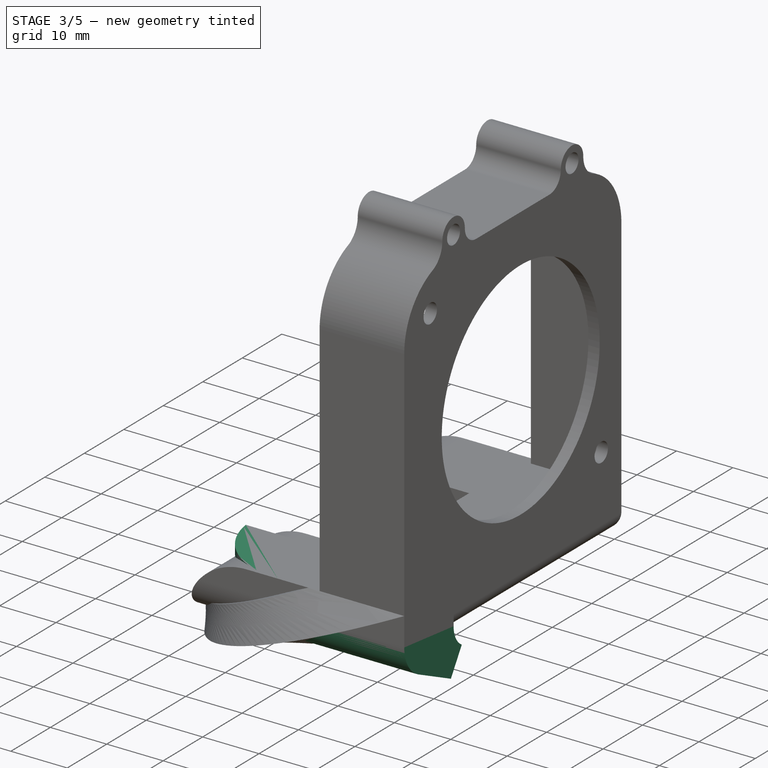
[diagram: stage 3 of 5 — iso view after this stage's code; geometry added in this stage tinted green]
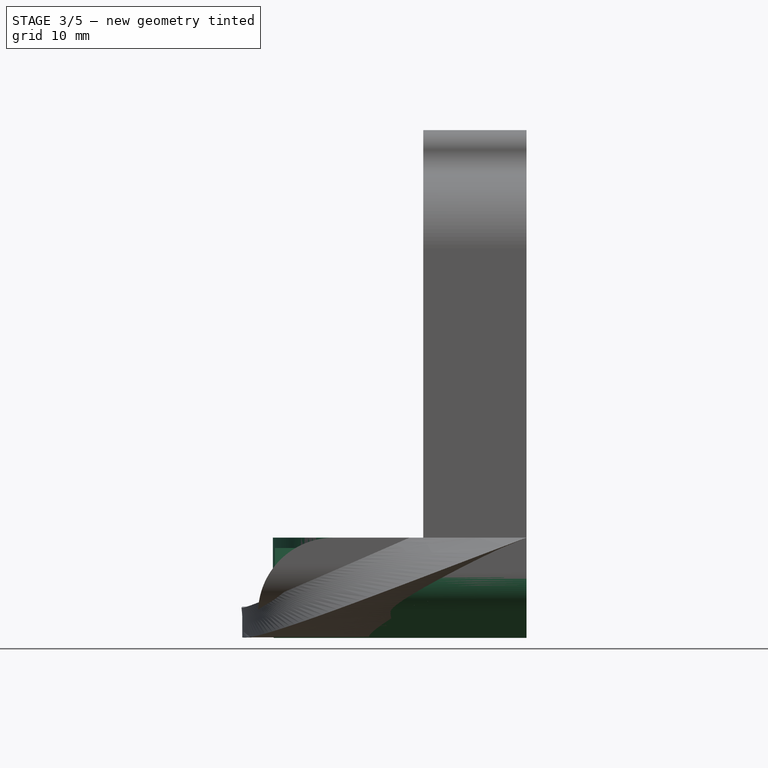
[diagram: stage 3 of 5 — front view after this stage's code; geometry added in this stage tinted green]
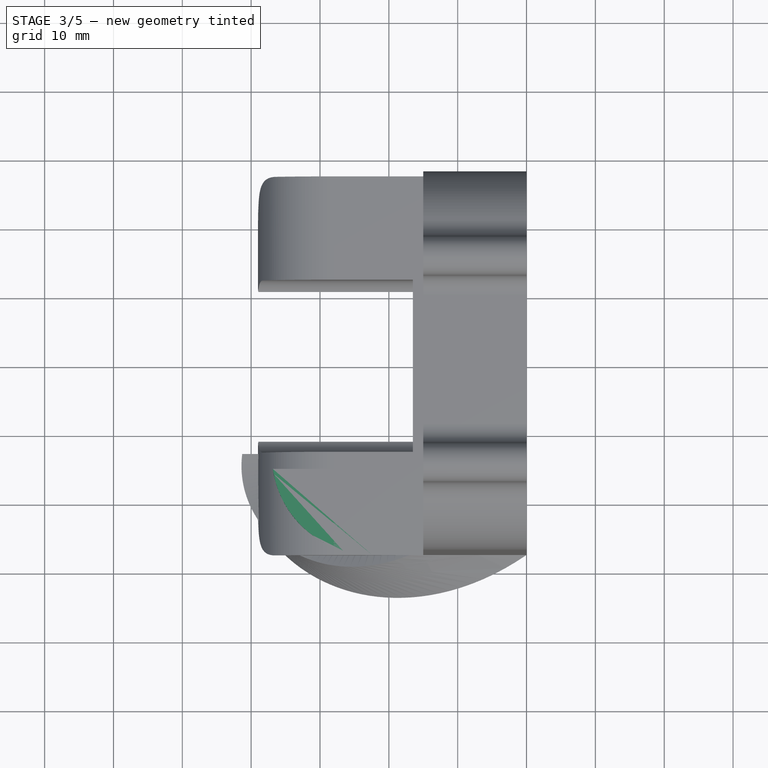
[diagram: stage 3 of 5 — top view after this stage's code; geometry added in this stage tinted green]
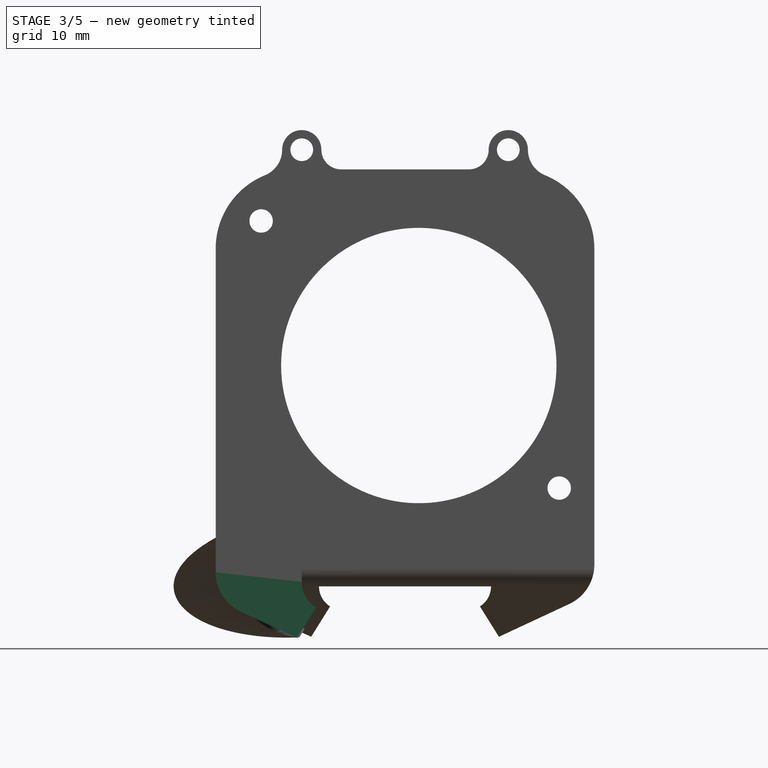
[diagram: stage 3 of 5 — right view after this stage's code; geometry added in this stage tinted green]
FEATURE [PartDesign::Body] Body006  label="风扇安装座-废品3"
  Group = -> [Sketch033,Pad014,Sketch034,Pocket010,Sketch035,Pocket011,Sketch036,Pad015,Sketch037,Pad016,Sketch038,Pocket012,Sketch039,Pocket013,Sketch040,Pocket014]
  Origin = -> Origin010
  Placement = pos=(35,0,0) rot=(0,0,1;0rad)
  Tip = -> Pocket014
FEATURE [Sketcher::SketchObject] Sketch046
  FullyConstrained = true
  MapMode = 5
  Placement = pos=(0,0,0) rot=(0.57735,0.57735,0.57735;2.0944rad)
  Support = -> [YZ_Plane012]
  sketch-geometry (14):
    g0: Circle CenterX=15 CenterY=5.1 CenterZ=0 NormalX=0 NormalY=0 NormalZ=1 AngleXU=0 Radius=1.65
    g1: Circle CenterX=-15 CenterY=5.1 CenterZ=0 NormalX=0 NormalY=0 NormalZ=1 AngleXU=0 Radius=1.65
    g2: LineSegment StartX=27.5 StartY=-9.25366 StartZ=0 EndX=27.5 EndY=-51.25 EndZ=0
    g3: LineSegment StartX=27.5 StartY=-51.25 StartZ=0 EndX=-27.5 EndY=-51.25 EndZ=0
    g4: LineSegment StartX=-27.5 StartY=-51.25 StartZ=0 EndX=-27.5 EndY=-9.25366 EndZ=0
    g5: ArcOfCircle CenterX=-16 CenterY=-9.25366 CenterZ=0 NormalX=0 NormalY=0 NormalZ=1 AngleXU=0 Radius=11.5 StartAngle=1.9578 EndAngle=3.14159
    g6: ArcOfCircle CenterX=16 CenterY=-9.25366 CenterZ=0 NormalX=0 NormalY=0 NormalZ=1 AngleXU=0 Radius=11.5 StartAngle=1e-16 EndAngle=1.18379
    g7: ArcOfCircle CenterX=-15 CenterY=5.1 CenterZ=0 NormalX=0 NormalY=0 NormalZ=1 AngleXU=0 Radius=2.85 StartAngle=2e-16 EndAngle=3.14159
    g8: ArcOfCircle CenterX=15 CenterY=5.1 CenterZ=0 NormalX=0 NormalY=0 NormalZ=1 AngleXU=0 Radius=2.85 StartAngle=0 EndAngle=3.14159
    g9: ArcOfCircle CenterX=9.3 CenterY=5.1 CenterZ=0 NormalX=0 NormalY=0 NormalZ=1 AngleXU=0 Radius=2.85 StartAngle=4.71239 EndAngle=6.28319
    g10: ArcOfCircle CenterX=21.85 CenterY=5.1 CenterZ=0 NormalX=0 NormalY=0 NormalZ=1 AngleXU=0 Radius=4 StartAngle=3.14159 EndAngle=4.32538
    g11: ArcOfCircle CenterX=-9.3 CenterY=5.1 CenterZ=0 NormalX=0 NormalY=0 NormalZ=1 AngleXU=0 Radius=2.85 StartAngle=3.14159 EndAngle=4.71239
    g12: ArcOfCircle CenterX=-21.85 CenterY=5.1 CenterZ=0 NormalX=0 NormalY=0 NormalZ=1 AngleXU=0 Radius=4 StartAngle=5.0994 EndAngle=6.28319
    g13: LineSegment StartX=-9.3 StartY=2.25 StartZ=0 EndX=9.3 EndY=2.25 EndZ=0
  constraints (36):
    c: Symmetric(g1,g0,g-2)
    c: Diameter(g0) = 3.3
    c: DistanceX(g0) = 15
    c: DistanceY(g0) = 5.1
    c: Equal(g1,g0)
    c: Coincident(g3,g4)
    c: Vertical(g2)
    c: Vertical(g4)
    c: Coincident(g2,g3)
    c: Equal(g6,g5)
    c: Tangent(g6,g2) = 1.5708
    c: Tangent(g5,g4) = 1.5708
    c: Symmetric(g2,g3,g-2)
    c: Distance(g3) = 55
    c: Radius(g6) = 11.5
    c: Coincident(g7,g1)
    c: Coincident(g8,g0)
    c: Equal(g8,g7)
    c: Horizontal(g9,g8)
    c: Horizontal(g11,g7)
    c: Horizontal(g12,g7)
    c: Tangent(g13,g11) = -1.5708
    c: Tangent(g5,g12) = 1.5708
    c: Tangent(g6,g10) = 1.5708
    c: Diameter(g10) = 8
    c: Diameter(g9) = 5.7
    c: Tangent(g9,g13) = -1.5708
    c: Tangent(g8,g9) = 1.5708
    c: Tangent(g8,g10) = 1.5708
    c: Diameter(g11) = 5.7
    c: Equal(g12,g10)
    c: Tangent(g7,g12) = 1.5708
    c: Tangent(g7,g11) = 1.5708
    c: Diameter(g8) = 5.7
    c: Horizontal(g8,g8)
    c: DistanceY(g2,g9) = 53.5
FEATURE [PartDesign::Pad] Pad018
  Direction = (1,-2e-16,3e-16)
  Length = 15
  Length2 = 10
  Placement = pos=(0,0,0) rot=(0.57735,0.57735,0.57735;2.0944rad)
  Profile = -> Sketch046
  ReferenceAxis = -> Sketch046 [N_Axis]
  Reversed = true
  Type = 0
FEATURE [Sketcher::SketchObject] Sketch047
  AttachmentOffset = pos=(0,0,0) rot=(0,0,1;3.14159rad)
  ExternalGeometry = -> [Pad018]
  FullyConstrained = true
  MapMode = 5
  Placement = pos=(-15,3.3e-15,-3.3e-15) rot=(0.57735,-0.57735,-0.57735;2.0944rad)
  Support = -> [Pad018]
  sketch-geometry (6):
    g0: LineSegment StartX=-26 StartY=-9.25366 StartZ=0 EndX=-26 EndY=-51.25 EndZ=0
    g1: LineSegment StartX=-26 StartY=-51.25 StartZ=0 EndX=26 EndY=-51.25 EndZ=0
    g2: LineSegment StartX=26 StartY=-51.25 StartZ=0 EndX=26 EndY=-9.25366 EndZ=0
    g3: LineSegment StartX=-16 StartY=0.746342 StartZ=0 EndX=16 EndY=0.746342 EndZ=0
    g4: ArcOfCircle CenterX=-16 CenterY=-9.25366 CenterZ=0 NormalX=0 NormalY=0 NormalZ=1 AngleXU=0 Radius=10 StartAngle=1.5708 EndAngle=3.14159
    g5: ArcOfCircle CenterX=16 CenterY=-9.25366 CenterZ=0 NormalX=0 NormalY=0 NormalZ=1 AngleXU=0 Radius=10 StartAngle=0 EndAngle=1.5708
  constraints (14):
    c: Vertical(g0)
    c: Coincident(g0,g1)
    c: Horizontal(g1)
    c: Coincident(g1,g2)
    c: Vertical(g2)
    c: Horizontal(g3)
    c: Tangent(g5,g3) = 1.5708
    c: Tangent(g5,g2) = -1.5708
    c: Tangent(g4,g3) = 1.5708
    c: Tangent(g4,g0) = -1.5708
    c: Coincident(g4,g-6)
    c: Coincident(g5,g-4)
    c: DistanceX(g2,g-4) = 1.5
    c: PointOnObject(g1,g-8)
FEATURE [PartDesign::Pocket] Pocket019
  BaseFeature = -> Pad018
  Direction = (1,-5e-16,5e-16)
  Length = 0
  Length2 = 5
  Offset = -2
  Placement = pos=(0,0,0) rot=(0.57735,0.57735,0.57735;2.0944rad)
  Profile = -> Sketch047
  ReferenceAxis = -> Sketch047 [N_Axis]
  Type = 3
  UpToFace = -> Pad018 [Face13]
FEATURE [Sketcher::SketchObject] Sketch048
  ExternalGeometry = -> [Pocket019]
  FullyConstrained = true
  MapMode = 5
  Placement = pos=(0,0,0) rot=(0.57735,0.57735,0.57735;2.0944rad)
  Support = -> [Pocket019]
  sketch-geometry (5):
    g0: Circle CenterX=-15 CenterY=5.1 CenterZ=0 NormalX=0 NormalY=0 NormalZ=1 AngleXU=0 Radius=1.65
    g1: Circle CenterX=15 CenterY=5.1 CenterZ=0 NormalX=0 NormalY=0 NormalZ=1 AngleXU=0 Radius=1.65
    g2: Circle CenterX=22.4 CenterY=-44.05 CenterZ=0 NormalX=0 NormalY=0 NormalZ=1 AngleXU=0 Radius=1.7
    g3: Circle CenterX=-20.9 CenterY=-5.25 CenterZ=0 NormalX=0 NormalY=0 NormalZ=1 AngleXU=0 Radius=1.7
    g4: Circle CenterX=2 CenterY=-26.25 CenterZ=0 NormalX=0 NormalY=0 NormalZ=1 AngleXU=0 Radius=20
  constraints (13):
    c: Coincident(g0,g-4)
    c: Coincident(g1,g-3)
    c: Equal(g1,g0)
    c: Diameter(g1) = 3.3
    c: Diameter(g2) = 3.4
    c: DistanceX(g2,g-5) = 5.1
    c: DistanceY(g-5,g2) = 7.2
    c: DistanceY(g3,g-6) = 7.5
    c: Equal(g3,g2)
    c: DistanceX(g-7,g3) = 6.6
    c: DistanceX(g4,g-5) = 25.5
    c: DistanceY(g4,g-6) = 28.5
    c: Diameter(g4) = 40
FEATURE [PartDesign::Pocket] Pocket020
  BaseFeature = -> Pocket019
  Direction = (-1,9e-16,-6e-16)
  Length = 0
  Length2 = 5
  Placement = pos=(0,0,0) rot=(0.57735,0.57735,0.57735;2.0944rad)
  Profile = -> Sketch048
  ReferenceAxis = -> Sketch048 [N_Axis]
  Type = 3
  UpToFace = -> Pocket019 [Face5]
FEATURE [PartDesign::Body] Body008  label="风扇安装座-废品4"
  Group = -> [Sketch046,Pad018,Sketch047,Pocket019,Sketch048,Pocket020,Sketch049,Pocket021,Sketch051,Pad019,Sketch052,Pad020,Sketch053,Pad021,Fillet,Sketch054,Pad022,Sketch055,Pad023,Sketch056,Pad024,Sketch057,Pocket022,Fillet001,Fillet002]
  Origin = -> Origin012
  Placement = pos=(32,0,0) rot=(0,0,1;0rad)
  Tip = -> Fillet002
FEATURE [Sketcher::SketchObject] Sketch058
  FullyConstrained = true
  MapMode = 5
  Placement = pos=(0,0,0) rot=(0.57735,0.57735,0.57735;2.0944rad)
  Support = -> [YZ_Plane013]
  sketch-geometry (14):
    g0: Circle CenterX=15 CenterY=5.1 CenterZ=0 NormalX=0 NormalY=0 NormalZ=1 AngleXU=0 Radius=1.65
    g1: Circle CenterX=-15 CenterY=5.1 CenterZ=0 NormalX=0 NormalY=0 NormalZ=1 AngleXU=0 Radius=1.65
    g2: LineSegment StartX=27.5 StartY=-9.25366 StartZ=0 EndX=27.5 EndY=-51.25 EndZ=0
    g3: LineSegment StartX=27.5 StartY=-51.25 StartZ=0 EndX=-27.5 EndY=-51.25 EndZ=0
    g4: LineSegment StartX=-27.5 StartY=-51.25 StartZ=0 EndX=-27.5 EndY=-9.25366 EndZ=0
    g5: ArcOfCircle CenterX=-16 CenterY=-9.25366 CenterZ=0 NormalX=0 NormalY=0 NormalZ=1 AngleXU=0 Radius=11.5 StartAngle=1.9578 EndAngle=3.14159
    g6: ArcOfCircle CenterX=16 CenterY=-9.25366 CenterZ=0 NormalX=0 NormalY=0 NormalZ=1 AngleXU=0 Radius=11.5 StartAngle=1e-16 EndAngle=1.18379
    g7: ArcOfCircle CenterX=-15 CenterY=5.1 CenterZ=0 NormalX=0 NormalY=0 NormalZ=1 AngleXU=0 Radius=2.85 StartAngle=2e-16 EndAngle=3.14159
    g8: ArcOfCircle CenterX=15 CenterY=5.1 CenterZ=0 NormalX=0 NormalY=0 NormalZ=1 AngleXU=0 Radius=2.85 StartAngle=0 EndAngle=3.14159
    g9: ArcOfCircle CenterX=9.3 CenterY=5.1 CenterZ=0 NormalX=0 NormalY=0 NormalZ=1 AngleXU=0 Radius=2.85 StartAngle=4.71239 EndAngle=6.28319
    g10: ArcOfCircle CenterX=21.85 CenterY=5.1 CenterZ=0 NormalX=0 NormalY=0 NormalZ=1 AngleXU=0 Radius=4 StartAngle=3.14159 EndAngle=4.32538
    g11: ArcOfCircle CenterX=-9.3 CenterY=5.1 CenterZ=0 NormalX=0 NormalY=0 NormalZ=1 AngleXU=0 Radius=2.85 StartAngle=3.14159 EndAngle=4.71239
    g12: ArcOfCircle CenterX=-21.85 CenterY=5.1 CenterZ=0 NormalX=0 NormalY=0 NormalZ=1 AngleXU=0 Radius=4 StartAngle=5.0994 EndAngle=6.28319
    g13: LineSegment StartX=-9.3 StartY=2.25 StartZ=0 EndX=9.3 EndY=2.25 EndZ=0
  constraints (36):
    c: Symmetric(g1,g0,g-2)
    c: Diameter(g0) = 3.3
    c: DistanceX(g0) = 15
    c: DistanceY(g0) = 5.1
    c: Equal(g1,g0)
    c: Coincident(g3,g4)
    c: Vertical(g2)
    c: Vertical(g4)
    c: Coincident(g2,g3)
    c: Equal(g6,g5)
    c: Tangent(g6,g2) = 1.5708
    c: Tangent(g5,g4) = 1.5708
    c: Symmetric(g2,g3,g-2)
    c: Distance(g3) = 55
    c: Radius(g6) = 11.5
    c: Coincident(g7,g1)
    c: Coincident(g8,g0)
    c: Equal(g8,g7)
    c: Horizontal(g9,g8)
    c: Horizontal(g11,g7)
    c: Horizontal(g12,g7)
    c: Tangent(g13,g11) = -1.5708
    c: Tangent(g5,g12) = 1.5708
    c: Tangent(g6,g10) = 1.5708
    c: Diameter(g10) = 8
    c: Diameter(g9) = 5.7
    c: Tangent(g9,g13) = -1.5708
    c: Tangent(g8,g9) = 1.5708
    c: Tangent(g8,g10) = 1.5708
    c: Diameter(g11) = 5.7
    c: Equal(g12,g10)
    c: Tangent(g7,g12) = 1.5708
    c: Tangent(g7,g11) = 1.5708
    c: Diameter(g8) = 5.7
    c: Horizontal(g8,g8)
    c: DistanceY(g2,g9) = 53.5
FEATURE [PartDesign::Pad] Pad025
  Direction = (1,-2e-16,3e-16)
  Length = 15
  Length2 = 10
  Placement = pos=(0,0,0) rot=(0.57735,0.57735,0.57735;2.0944rad)
  Profile = -> Sketch058
  ReferenceAxis = -> Sketch058 [N_Axis]
  Reversed = true
  Type = 0
FEATURE [Sketcher::SketchObject] Sketch059
  AttachmentOffset = pos=(0,0,0) rot=(0,0,1;3.14159rad)
  ExternalGeometry = -> [Pad025]
  FullyConstrained = true
  MapMode = 5
  Placement = pos=(-15,3.3e-15,-3.3e-15) rot=(0.57735,-0.57735,-0.57735;2.0944rad)
  Support = -> [Pad025]
  sketch-geometry (6):
    g0: LineSegment StartX=-26 StartY=-9.25366 StartZ=0 EndX=-26 EndY=-51.25 EndZ=0
    g1: LineSegment StartX=-26 StartY=-51.25 StartZ=0 EndX=26 EndY=-51.25 EndZ=0
    g2: LineSegment StartX=26 StartY=-51.25 StartZ=0 EndX=26 EndY=-9.25366 EndZ=0
    g3: LineSegment StartX=-16 StartY=0.746342 StartZ=0 EndX=16 EndY=0.746342 EndZ=0
    g4: ArcOfCircle CenterX=-16 CenterY=-9.25366 CenterZ=0 NormalX=0 NormalY=0 NormalZ=1 AngleXU=0 Radius=10 StartAngle=1.5708 EndAngle=3.14159
    g5: ArcOfCircle CenterX=16 CenterY=-9.25366 CenterZ=0 NormalX=0 NormalY=0 NormalZ=1 AngleXU=0 Radius=10 StartAngle=0 EndAngle=1.5708
  constraints (14):
    c: Vertical(g0)
    c: Coincident(g0,g1)
    c: Horizontal(g1)
    c: Coincident(g1,g2)
    c: Vertical(g2)
    c: Horizontal(g3)
    c: Tangent(g5,g3) = 1.5708
    c: Tangent(g5,g2) = -1.5708
    c: Tangent(g4,g3) = 1.5708
    c: Tangent(g4,g0) = -1.5708
    c: Coincident(g4,g-6)
    c: Coincident(g5,g-4)
    c: DistanceX(g2,g-4) = 1.5
    c: PointOnObject(g1,g-8)
FEATURE [PartDesign::Pocket] Pocket023
  BaseFeature = -> Pad025
  Direction = (1,-5e-16,5e-16)
  Length = 0
  Length2 = 5
  Offset = -2
  Placement = pos=(0,0,0) rot=(0.57735,0.57735,0.57735;2.0944rad)
  Profile = -> Sketch059
  ReferenceAxis = -> Sketch059 [N_Axis]
  Type = 3
  UpToFace = -> Pad025 [Face13]
FEATURE [Sketcher::SketchObject] Sketch060
  ExternalGeometry = -> [Pocket023]
  FullyConstrained = true
  MapMode = 5
  Placement = pos=(0,0,0) rot=(0.57735,0.57735,0.57735;2.0944rad)
  Support = -> [Pocket023]
  sketch-geometry (5):
    g0: Circle CenterX=-15 CenterY=5.1 CenterZ=0 NormalX=0 NormalY=0 NormalZ=1 AngleXU=0 Radius=1.65
    g1: Circle CenterX=15 CenterY=5.1 CenterZ=0 NormalX=0 NormalY=0 NormalZ=1 AngleXU=0 Radius=1.65
    g2: Circle CenterX=22.4 CenterY=-44.05 CenterZ=0 NormalX=0 NormalY=0 NormalZ=1 AngleXU=0 Radius=1.7
    g3: Circle CenterX=-20.9 CenterY=-5.25 CenterZ=0 NormalX=0 NormalY=0 NormalZ=1 AngleXU=0 Radius=1.7
    g4: Circle CenterX=2 CenterY=-26.25 CenterZ=0 NormalX=0 NormalY=0 NormalZ=1 AngleXU=0 Radius=20
  constraints (13):
    c: Coincident(g0,g-4)
    c: Coincident(g1,g-3)
    c: Equal(g1,g0)
    c: Diameter(g1) = 3.3
    c: Diameter(g2) = 3.4
    c: DistanceX(g2,g-5) = 5.1
    c: DistanceY(g-5,g2) = 7.2
    c: DistanceY(g3,g-6) = 7.5
    c: Equal(g3,g2)
    c: DistanceX(g-7,g3) = 6.6
    c: DistanceX(g4,g-5) = 25.5
    c: DistanceY(g4,g-6) = 28.5
    c: Diameter(g4) = 40
FEATURE [PartDesign::Pocket] Pocket024
  BaseFeature = -> Pocket023
  Direction = (-1,9e-16,-6e-16)
  Length = 0
  Length2 = 5
  Placement = pos=(0,0,0) rot=(0.57735,0.57735,0.57735;2.0944rad)
  Profile = -> Sketch060
  ReferenceAxis = -> Sketch060 [N_Axis]
  Type = 3
  UpToFace = -> Pocket023 [Face5]
FEATURE [Sketcher::SketchObject] Sketch061
  AttachmentOffset = pos=(0,0,0) rot=(0,0,1;3.14159rad)
  ExternalGeometry = -> [Pocket024]
  FullyConstrained = true
  MapMode = 5
  Placement = pos=(-1.21e-14,-27.5,6.1e-15) rot=(-0.57735,0.57735,-0.57735;4.18879rad)
  Support = -> [Pocket024]
  sketch-geometry (4):
    g0: LineSegment StartX=-51.25 StartY=15 StartZ=0 EndX=-28.816 EndY=15 EndZ=0
    g1: LineSegment StartX=-28.816 StartY=15 StartZ=0 EndX=-38.35 EndY=7 EndZ=0
    g2: LineSegment StartX=-38.35 StartY=7 StartZ=0 EndX=-51.25 EndY=7 EndZ=0
    g3: LineSegment StartX=-51.25 StartY=7 StartZ=0 EndX=-51.25 EndY=15 EndZ=0
  constraints (11):
    c: Horizontal(g0)
    c: Coincident(g0,g1)
    c: Coincident(g1,g2)
    c: Horizontal(g2)
    c: Coincident(g2,g3)
    c: Coincident(g3,g0)
    c: Vertical(g3)
    c: Angle(g1,g2) = 2.44346
    c: Distance(g3) = 8
    c: Distance(g2) = 12.9
    c: Coincident(g0,g-3)
FEATURE [PartDesign::Pocket] Pocket025
  BaseFeature = -> Pocket024
  Direction = (4e-16,1,-8e-16)
  Length = 5
  Length2 = 5
  Placement = pos=(0,0,0) rot=(0.57735,0.57735,0.57735;2.0944rad)
  Profile = -> Sketch061
  ReferenceAxis = -> Sketch061 [N_Axis]
  Type = 0
FEATURE [Sketcher::SketchObject] Sketch062
  AttachmentOffset = pos=(0,-11,-19) rot=(-1,0,0;0.558505rad)
  FullyConstrained = true
  MapMode = 5
  Placement = pos=(0,19,-11) rot=(1,0,0;1.01229rad)
  Support = -> [XZ_Plane013]
  sketch-geometry (10):
    g0: ArcOfCircle CenterX=-35.9636 CenterY=-61.1378 CenterZ=0 NormalX=0 NormalY=0 NormalZ=1 AngleXU=0 Radius=1.9 StartAngle=1.5708 EndAngle=3.14159
    g1: LineSegment StartX=-35.9636 StartY=-59.2378 StartZ=0 EndX=-25.9636 EndY=-59.2378 EndZ=0
    g2: ArcOfCircle CenterX=-25.9636 CenterY=-61.1378 CenterZ=0 NormalX=0 NormalY=0 NormalZ=1 AngleXU=0 Radius=1.9 StartAngle=4e-16 EndAngle=1.5708
    g3: LineSegment StartX=-24.0636 StartY=-61.1378 StartZ=0 EndX=-24.0636 EndY=-62.3378 EndZ=0
    g4: ArcOfCircle CenterX=-25.9636 CenterY=-62.3378 CenterZ=0 NormalX=0 NormalY=0 NormalZ=1 AngleXU=0 Radius=1.9 StartAngle=4.71239 EndAngle=6.28319
    g5: LineSegment StartX=-25.9636 StartY=-64.2378 StartZ=0 EndX=-35.9636 EndY=-64.2378 EndZ=0
    g6: ArcOfCircle CenterX=-35.9636 CenterY=-62.3378 CenterZ=0 NormalX=0 NormalY=0 NormalZ=1 AngleXU=0 Radius=1.9 StartAngle=3.14159 EndAngle=4.71239
    g7: LineSegment StartX=-37.8636 StartY=-62.3378 StartZ=0 EndX=-37.8636 EndY=-61.1378 EndZ=0
    g8: GeomPoint X=-37.8636 Y=-59.2378 Z=0
    g9: GeomPoint X=-24.0636 Y=-64.2378 Z=0
  constraints (24):
    c: Tangent(g0,g1) = 1.5708
    c: Tangent(g1,g2) = 1.5708
    c: Tangent(g2,g3) = 1.5708
    c: Tangent(g3,g4) = 1.5708
    c: Tangent(g4,g5) = 1.5708
    c: Tangent(g5,g6) = 1.5708
    c: Tangent(g6,g7) = 1.5708
    c: Tangent(g7,g0) = 1.5708
    c: Horizontal(g1)
    c: Horizontal(g5)
    c: Vertical(g3)
    c: Vertical(g7)
    c: Equal(g0,g2)
    c: Equal(g2,g4)
    c: Equal(g4,g6)
    c: PointOnObject(g8,g1)
    c: PointOnObject(g8,g7)
    c: PointOnObject(g9,g3)
    c: PointOnObject(g9,g5)
    c: DistanceX(g2) = -24.0636
    c: DistanceY(g2) = -61.1378
    c: DistanceY(g4,g1) = 5
    c: Distance(g1) = 10
    c: Diameter(g2) = 3.8
FEATURE [Sketcher::SketchObject] Sketch063
  FullyConstrained = false
  MapMode = 5
  Placement = pos=(1.44e-14,-2.26e-14,-51.25) rot=(0.707107,0.707107,0;3.14159rad)
  Support = -> [Pocket025]
  sketch-geometry (10):
    g0: ArcOfCircle CenterX=-19.9456 CenterY=-9.8816 CenterZ=0 NormalX=0 NormalY=0 NormalZ=1 AngleXU=0 Radius=2.37647 StartAngle=4.71239 EndAngle=6.28319
    g1: LineSegment StartX=-19.9456 StartY=-12.2581 StartZ=0 EndX=-23.5543 EndY=-12.2581 EndZ=0
    g2: ArcOfCircle CenterX=-23.5543 CenterY=-9.8816 CenterZ=0 NormalX=0 NormalY=0 NormalZ=1 AngleXU=0 Radius=2.37647 StartAngle=3.14159 EndAngle=4.71239
    g3: LineSegment StartX=-25.9308 StartY=-9.8816 StartZ=0 EndX=-25.9308 EndY=-4.57454 EndZ=0
    g4: ArcOfCircle CenterX=-23.5543 CenterY=-4.57454 CenterZ=0 NormalX=0 NormalY=0 NormalZ=1 AngleXU=0 Radius=2.37647 StartAngle=1.5708 EndAngle=3.14159
    g5: LineSegment StartX=-23.5543 StartY=-2.19808 StartZ=0 EndX=-19.9456 EndY=-2.19808 EndZ=0
    g6: ArcOfCircle CenterX=-19.9456 CenterY=-4.57454 CenterZ=0 NormalX=0 NormalY=0 NormalZ=1 AngleXU=0 Radius=2.37647 StartAngle=2e-16 EndAngle=1.5708
    g7: LineSegment StartX=-17.5691 StartY=-4.57454 StartZ=0 EndX=-17.5691 EndY=-9.8816 EndZ=0
    g8: GeomPoint X=-17.5691 Y=-12.2581 Z=0
    g9: GeomPoint X=-25.9308 Y=-2.19808 Z=0
  constraints (19):
    c: Tangent(g0,g1) = 1.5708
    c: Tangent(g1,g2) = 1.5708
    c: Tangent(g2,g3) = 1.5708
    c: Tangent(g3,g4) = 1.5708
    c: Tangent(g4,g5) = 1.5708
    c: Tangent(g5,g6) = 1.5708
    c: Tangent(g6,g7) = 1.5708
    c: Tangent(g7,g0) = 1.5708
    c: Horizontal(g1)
    c: Horizontal(g5)
    c: Vertical(g3)
    c: Vertical(g7)
    c: Equal(g0,g2)
    c: Equal(g2,g4)
    c: Equal(g4,g6)
    c: PointOnObject(g8,g1)
    c: PointOnObject(g8,g7)
    c: PointOnObject(g9,g3)
    c: PointOnObject(g9,g5)
FEATURE [PartDesign::Plane] DatumPlane
  Length = 85.1898
  MapMode = 13
  Placement = pos=(-23.9363,-17.7876,-59.3211) rot=(0.815179,0.563521,0.133897;2.75895rad)
  ResizeMode = 0
  Support = -> [Sketch063,Sketch062]
  Width = 109.501
FEATURE [Sketcher::SketchObject] Sketch064
  ExternalGeometry = -> [Sketch063,Sketch062]
  FullyConstrained = false
  MapMode = 5
  Placement = pos=(-23.9363,-17.7876,-59.3211) rot=(0.815179,0.563521,0.133897;2.75895rad)
  Support = -> [DatumPlane]
  sketch-geometry (11):
    g0-g3: Circle x4 (B-spline internal-alignment scaffolding for g4; pole/knot coordinates omitted)
    g4: BSplineCurve PolesCount=6 KnotsCount=2 Degree=5 IsPeriodic=0
    g5: GeomPoint X=-2.65257 Y=17.943 Z=0
    g6: GeomPoint X=-1.67955 Y=-13.6848 Z=0
    g7: LineSegment StartX=1.85339 StartY=-5.32952 StartZ=0 EndX=-1.67955 EndY=-13.6848 EndZ=0
    g8: Circle CenterX=-4.25509 CenterY=-12.5957 CenterZ=0 NormalX=0 NormalY=0 NormalZ=1 AngleXU=0 Radius=1
    g9: Circle CenterX=-1.67955 CenterY=-13.6848 CenterZ=0 NormalX=0 NormalY=0 NormalZ=1 AngleXU=0 Radius=1
    g10: LineSegment StartX=-1.67955 StartY=-13.6848 StartZ=0 EndX=-4.25509 EndY=-12.5957 EndZ=0
  constraints (18):
    c: Weight(g0) = 1
    c: Coincident(g4,g-3)
    c: Equal(g0,g1)
    c: Equal(g0,g2)
    c: Equal(g0,g3)
    c: Coincident(g4,g-4)
    c: InternalAlignment(g0-g3 -> g4) x4
    c: InternalAlignment(g5,g4)
    c: InternalAlignment(g6,g4)
    c: Coincident(g7,g-5)
    c: Coincident(g7,g4)
    c: InternalAlignment(g8,g4)
    c: Equal(g8,g0)
    c: InternalAlignment(g9,g4)
    c: Equal(g9,g0)
    c: Coincident(g10,g4)
    c: Coincident(g10,g8)
    c: Perpendicular(g7,g10)
FEATURE [PartDesign::AdditivePipe] AdditivePipe
  AuxilleryCurvelinear = true
  AuxillerySpineTangent = false
  BaseFeature = -> Pocket025
  Binormal = (0,0,0)
  Mode = 0
  Placement = pos=(0,0,0) rot=(0.57735,0.57735,0.57735;2.0944rad)
  Profile = -> Sketch063
  Sections = -> [Sketch062]
  Spine = -> Sketch064
  SpineTangent = false
  Transformation = 1
  Transition = 0
FEATURE [PartDesign::Body] Body009  label="风扇安装座-废品5"
  Group = -> [Sketch058,Pad025,Sketch059,Pocket023,Sketch060,Pocket024,Sketch061,Pocket025,Sketch062,Sketch063,DatumPlane,Sketch064,AdditivePipe]
  Origin = -> Origin013
  Placement = pos=(32,0,0) rot=(0,0,1;0rad)
  Tip = -> AdditivePipe
FEATURE [Sketcher::SketchObject] Sketch065
  FullyConstrained = true
  MapMode = 5
  Placement = pos=(0,0,0) rot=(0.57735,0.57735,0.57735;2.0944rad)
  Support = -> [YZ_Plane014]
  sketch-geometry (14):
    g0: Circle CenterX=15 CenterY=5.1 CenterZ=0 NormalX=0 NormalY=0 NormalZ=1 AngleXU=0 Radius=1.65
    g1: Circle CenterX=-15 CenterY=5.1 CenterZ=0 NormalX=0 NormalY=0 NormalZ=1 AngleXU=0 Radius=1.65
    g2: LineSegment StartX=27.5 StartY=-9.25366 StartZ=0 EndX=27.5 EndY=-51.25 EndZ=0
    g3: LineSegment StartX=27.5 StartY=-51.25 StartZ=0 EndX=-27.5 EndY=-51.25 EndZ=0
    g4: LineSegment StartX=-27.5 StartY=-51.25 StartZ=0 EndX=-27.5 EndY=-9.25366 EndZ=0
    g5: ArcOfCircle CenterX=-16 CenterY=-9.25366 CenterZ=0 NormalX=0 NormalY=0 NormalZ=1 AngleXU=0 Radius=11.5 StartAngle=1.9578 EndAngle=3.14159
    g6: ArcOfCircle CenterX=16 CenterY=-9.25366 CenterZ=0 NormalX=0 NormalY=0 NormalZ=1 AngleXU=0 Radius=11.5 StartAngle=1e-16 EndAngle=1.18379
    g7: ArcOfCircle CenterX=-15 CenterY=5.1 CenterZ=0 NormalX=0 NormalY=0 NormalZ=1 AngleXU=0 Radius=2.85 StartAngle=2e-16 EndAngle=3.14159
    g8: ArcOfCircle CenterX=15 CenterY=5.1 CenterZ=0 NormalX=0 NormalY=0 NormalZ=1 AngleXU=0 Radius=2.85 StartAngle=0 EndAngle=3.14159
    g9: ArcOfCircle CenterX=9.3 CenterY=5.1 CenterZ=0 NormalX=0 NormalY=0 NormalZ=1 AngleXU=0 Radius=2.85 StartAngle=4.71239 EndAngle=6.28319
    g10: ArcOfCircle CenterX=21.85 CenterY=5.1 CenterZ=0 NormalX=0 NormalY=0 NormalZ=1 AngleXU=0 Radius=4 StartAngle=3.14159 EndAngle=4.32538
    g11: ArcOfCircle CenterX=-9.3 CenterY=5.1 CenterZ=0 NormalX=0 NormalY=0 NormalZ=1 AngleXU=0 Radius=2.85 StartAngle=3.14159 EndAngle=4.71239
    g12: ArcOfCircle CenterX=-21.85 CenterY=5.1 CenterZ=0 NormalX=0 NormalY=0 NormalZ=1 AngleXU=0 Radius=4 StartAngle=5.0994 EndAngle=6.28319
    g13: LineSegment StartX=-9.3 StartY=2.25 StartZ=0 EndX=9.3 EndY=2.25 EndZ=0
  constraints (36):
    c: Symmetric(g1,g0,g-2)
    c: Diameter(g0) = 3.3
    c: DistanceX(g0) = 15
    c: DistanceY(g0) = 5.1
    c: Equal(g1,g0)
    c: Coincident(g3,g4)
    c: Vertical(g2)
    c: Vertical(g4)
    c: Coincident(g2,g3)
    c: Equal(g6,g5)
    c: Tangent(g6,g2) = 1.5708
    c: Tangent(g5,g4) = 1.5708
    c: Symmetric(g2,g3,g-2)
    c: Distance(g3) = 55
    c: Radius(g6) = 11.5
    c: Coincident(g7,g1)
    c: Coincident(g8,g0)
    c: Equal(g8,g7)
    c: Horizontal(g9,g8)
    c: Horizontal(g11,g7)
    c: Horizontal(g12,g7)
    c: Tangent(g13,g11) = -1.5708
    c: Tangent(g5,g12) = 1.5708
    c: Tangent(g6,g10) = 1.5708
    c: Diameter(g10) = 8
    c: Diameter(g9) = 5.7
    c: Tangent(g9,g13) = -1.5708
    c: Tangent(g8,g9) = 1.5708
    c: Tangent(g8,g10) = 1.5708
    c: Diameter(g11) = 5.7
    c: Equal(g12,g10)
    c: Tangent(g7,g12) = 1.5708
    c: Tangent(g7,g11) = 1.5708
    c: Diameter(g8) = 5.7
    c: Horizontal(g8,g8)
    c: DistanceY(g2,g9) = 53.5
FEATURE [PartDesign::Pad] Pad026
  Direction = (1,-2e-16,3e-16)
  Length = 15
  Length2 = 10
  Placement = pos=(0,0,0) rot=(0.57735,0.57735,0.57735;2.0944rad)
  Profile = -> Sketch065
  ReferenceAxis = -> Sketch065 [N_Axis]
  Reversed = true
  Type = 0
FEATURE [Sketcher::SketchObject] Sketch066
  AttachmentOffset = pos=(0,0,0) rot=(0,0,1;3.14159rad)
  ExternalGeometry = -> [Pad026]
  FullyConstrained = true
  MapMode = 5
  Placement = pos=(-15,3.3e-15,-3.3e-15) rot=(0.57735,-0.57735,-0.57735;2.0944rad)
  Support = -> [Pad026]
  sketch-geometry (6):
    g0: LineSegment StartX=-26 StartY=-9.25366 StartZ=0 EndX=-26 EndY=-51.25 EndZ=0
    g1: LineSegment StartX=-26 StartY=-51.25 StartZ=0 EndX=26 EndY=-51.25 EndZ=0
    g2: LineSegment StartX=26 StartY=-51.25 StartZ=0 EndX=26 EndY=-9.25366 EndZ=0
    g3: LineSegment StartX=-16 StartY=0.746342 StartZ=0 EndX=16 EndY=0.746342 EndZ=0
    g4: ArcOfCircle CenterX=-16 CenterY=-9.25366 CenterZ=0 NormalX=0 NormalY=0 NormalZ=1 AngleXU=0 Radius=10 StartAngle=1.5708 EndAngle=3.14159
    g5: ArcOfCircle CenterX=16 CenterY=-9.25366 CenterZ=0 NormalX=0 NormalY=0 NormalZ=1 AngleXU=0 Radius=10 StartAngle=0 EndAngle=1.5708
  constraints (14):
    c: Vertical(g0)
    c: Coincident(g0,g1)
    c: Horizontal(g1)
    c: Coincident(g1,g2)
    c: Vertical(g2)
    c: Horizontal(g3)
    c: Tangent(g5,g3) = 1.5708
    c: Tangent(g5,g2) = -1.5708
    c: Tangent(g4,g3) = 1.5708
    c: Tangent(g4,g0) = -1.5708
    c: Coincident(g4,g-6)
    c: Coincident(g5,g-4)
    c: DistanceX(g2,g-4) = 1.5
    c: PointOnObject(g1,g-8)
FEATURE [PartDesign::Pocket] Pocket026
  BaseFeature = -> Pad026
  Direction = (1,-5e-16,5e-16)
  Length = 0
  Length2 = 5
  Offset = -2
  Placement = pos=(0,0,0) rot=(0.57735,0.57735,0.57735;2.0944rad)
  Profile = -> Sketch066
  ReferenceAxis = -> Sketch066 [N_Axis]
  Type = 3
  UpToFace = -> Pad026 [Face13]
FEATURE [Sketcher::SketchObject] Sketch067
  ExternalGeometry = -> [Pocket026]
  FullyConstrained = true
  MapMode = 5
  Placement = pos=(0,0,0) rot=(0.57735,0.57735,0.57735;2.0944rad)
  Support = -> [Pocket026]
  sketch-geometry (5):
    g0: Circle CenterX=-15 CenterY=5.1 CenterZ=0 NormalX=0 NormalY=0 NormalZ=1 AngleXU=0 Radius=1.65
    g1: Circle CenterX=15 CenterY=5.1 CenterZ=0 NormalX=0 NormalY=0 NormalZ=1 AngleXU=0 Radius=1.65
    g2: Circle CenterX=22.4 CenterY=-44.05 CenterZ=0 NormalX=0 NormalY=0 NormalZ=1 AngleXU=0 Radius=1.7
    g3: Circle CenterX=-20.9 CenterY=-5.25 CenterZ=0 NormalX=0 NormalY=0 NormalZ=1 AngleXU=0 Radius=1.7
    g4: Circle CenterX=2 CenterY=-26.25 CenterZ=0 NormalX=0 NormalY=0 NormalZ=1 AngleXU=0 Radius=20
  constraints (13):
    c: Coincident(g0,g-4)
    c: Coincident(g1,g-3)
    c: Equal(g1,g0)
    c: Diameter(g1) = 3.3
    c: Diameter(g2) = 3.4
    c: DistanceX(g2,g-5) = 5.1
    c: DistanceY(g-5,g2) = 7.2
    c: DistanceY(g3,g-6) = 7.5
    c: Equal(g3,g2)
    c: DistanceX(g-7,g3) = 6.6
    c: DistanceX(g4,g-5) = 25.5
    c: DistanceY(g4,g-6) = 28.5
    c: Diameter(g4) = 40
FEATURE [PartDesign::Pocket] Pocket027
  BaseFeature = -> Pocket026
  Direction = (-1,9e-16,-6e-16)
  Length = 0
  Length2 = 5
  Placement = pos=(0,0,0) rot=(0.57735,0.57735,0.57735;2.0944rad)
  Profile = -> Sketch067
  ReferenceAxis = -> Sketch067 [N_Axis]
  Type = 3
  UpToFace = -> Pocket026 [Face5]
FEATURE [Sketcher::SketchObject] Sketch068
  AttachmentOffset = pos=(0,0,0) rot=(0,0,1;3.14159rad)
  ExternalGeometry = -> [Pocket027]
  FullyConstrained = true
  MapMode = 5
  Placement = pos=(-1.21e-14,-27.5,6.1e-15) rot=(-0.57735,0.57735,-0.57735;4.18879rad)
  Support = -> [Pocket027]
  sketch-geometry (4):
    g0: LineSegment StartX=-51.25 StartY=15 StartZ=0 EndX=-28.816 EndY=15 EndZ=0
    g1: LineSegment StartX=-28.816 StartY=15 StartZ=0 EndX=-38.35 EndY=7 EndZ=0
    g2: LineSegment StartX=-38.35 StartY=7 StartZ=0 EndX=-51.25 EndY=7 EndZ=0
    g3: LineSegment StartX=-51.25 StartY=7 StartZ=0 EndX=-51.25 EndY=15 EndZ=0
  constraints (11):
    c: Horizontal(g0)
    c: Coincident(g0,g1)
    c: Coincident(g1,g2)
    c: Horizontal(g2)
    c: Coincident(g2,g3)
    c: Coincident(g3,g0)
    c: Vertical(g3)
    c: Angle(g1,g2) = 2.44346
    c: Distance(g3) = 8
    c: Distance(g2) = 12.9
    c: Coincident(g0,g-3)
FEATURE [PartDesign::Pocket] Pocket028
  BaseFeature = -> Pocket027
  Direction = (4e-16,1,-8e-16)
  Length = 5
  Length2 = 5
  Placement = pos=(0,0,0) rot=(0.57735,0.57735,0.57735;2.0944rad)
  Profile = -> Sketch068
  ReferenceAxis = -> Sketch068 [N_Axis]
  Type = 0
FEATURE [Sketcher::SketchObject] Sketch069
  ExternalGeometry = -> [Pocket028]
  FullyConstrained = true
  MapMode = 5
  Placement = pos=(0,0,0) rot=(0.57735,0.57735,0.57735;2.0944rad)
  Support = -> [Pocket028]
  sketch-geometry (8):
    g0: LineSegment StartX=-27.5 StartY=-51.25 StartZ=0 EndX=-15 EndY=-51.25 EndZ=0
    g1: LineSegment StartX=-15 StartY=-51.25 StartZ=0 EndX=-15 EndY=-57.6582 EndZ=0
    g2: LineSegment StartX=-12.9251 StartY=-61.4014 StartZ=0 EndX=-15.6807 EndY=-65.8113 EndZ=0
    g3: LineSegment StartX=-15.6807 StartY=-65.8113 StartZ=0 EndX=-23.8625 EndY=-61.996 EndZ=0
    g4: LineSegment StartX=-27.5 StartY=-56.2863 StartZ=0 EndX=-27.5 EndY=-51.25 EndZ=0
    g5: ArcOfCircle CenterX=-10.5861 CenterY=-57.6582 CenterZ=0 NormalX=0 NormalY=0 NormalZ=1 AngleXU=0 Radius=4.41393 StartAngle=3.14159 EndAngle=4.15388
    g6: ArcOfCircle CenterX=-21.2 CenterY=-56.2863 CenterZ=0 NormalX=0 NormalY=0 NormalZ=1 AngleXU=0 Radius=6.3 StartAngle=3.14159 EndAngle=4.27606
    g7: LineSegment StartX=-10.5861 StartY=-57.6582 StartZ=0 EndX=-12.9251 EndY=-61.4014 EndZ=0
  constraints (22):
    c: Horizontal(g0)
    c: Coincident(g0,g1)
    c: Coincident(g2,g3)
    c: Coincident(g4,g0)
    c: Vertical(g4)
    c: Coincident(g0,g-3)
    c: Tangent(g1,g5) = -1.5708
    c: Tangent(g3,g6) = 1.5708
    c: Tangent(g4,g6) = 1.5708
    c: Angle(g0,g2) = 1.01229
    c: Coincident(g2,g5)
    c: DistanceX(g2) = -15.6807
    c: DistanceY(g2) = -65.8113
    c: Vertical(g1)
    c: Coincident(g7,g5)
    c: Tangent(g7,g2) = -1.5708
    c: Angle(g2,g3) = 1.69297
    c: Diameter(g6) = 12.6
    c: Distance(g2) = 5.2
    c: Distance(g0) = 12.5
    c: DistanceY(g4,g0) = 5.03627
    c: DistanceY(g1,g0) = 6.40818
FEATURE [PartDesign::Pad] Pad027
  BaseFeature = -> Pocket028
  Direction = (1,-2e-16,2e-16)
  Length = 38
  Length2 = 10
  Placement = pos=(0,0,0) rot=(0.57735,0.57735,0.57735;2.0944rad)
  Profile = -> Sketch069
  ReferenceAxis = -> Sketch069 [N_Axis]
  Reversed = true
  Type = 0
FEATURE [Sketcher::SketchObject] Sketch070
  ExternalGeometry = -> [Pad027]
  FullyConstrained = true
  MapMode = 5
  Placement = pos=(1.13e-14,-1.13e-14,-51.25) rot=(0,0,-1;1.5708rad)
  Support = -> [Pad027]
  sketch-geometry (5):
    g0: LineSegment StartX=0 StartY=-37 StartZ=0 EndX=12.9251 EndY=-37 EndZ=0
    g1: ArcOfCircle CenterX=12.9251 CenterY=-22.4251 CenterZ=0 NormalX=0 NormalY=0 NormalZ=1 AngleXU=0 Radius=14.5749 StartAngle=4.71239 EndAngle=6.28319
    g2: LineSegment StartX=27.5 StartY=-22.4251 StartZ=0 EndX=27.5 EndY=-38 EndZ=0
    g3: LineSegment StartX=27.5 StartY=-38 StartZ=0 EndX=12.9251 EndY=-38 EndZ=0
    g4: LineSegment StartX=12.9251 StartY=-38 StartZ=0 EndX=12.9251 EndY=-37 EndZ=0
  constraints (14):
    c: PointOnObject(g0,g-2)
    c: Horizontal(g0)
    c: DistanceY(g0) = -37
    c: Horizontal(g1,g1)
    c: Tangent(g1,g0) = -1.5708
    c: PointOnObject(g1,g-3)
    c: Coincident(g1,g2)
    c: Coincident(g2,g3)
    c: Horizontal(g3)
    c: Coincident(g3,g4)
    c: Coincident(g4,g1)
    c: Vertical(g4)
    c: Coincident(g2,g-3)
    c: PointOnObject(g1,g-4)
FEATURE [PartDesign::Pocket] Pocket029
  BaseFeature = -> Pad027
  Direction = (2e-16,-2e-16,-1)
  Length = 5
  Length2 = 5
  Placement = pos=(0,0,0) rot=(0.57735,0.57735,0.57735;2.0944rad)
  Profile = -> Sketch070
  ReferenceAxis = -> Sketch070 [N_Axis]
  Type = 1
FEATURE [Sketcher::SketchObject] Sketch071
  AttachmentOffset = pos=(0,0,-2) rot=(0,0,1;0rad)
  ExternalGeometry = -> [Pad027]
  FullyConstrained = false
  MapMode = 5
  Placement = pos=(-2,4e-16,-4e-16) rot=(0.57735,0.57735,0.57735;2.0944rad)
  Support = -> [Pad027]
  sketch-geometry (11):
    g0: LineSegment StartX=-13.72 StartY=-62.6735 StartZ=0 EndX=-14.8798 EndY=-64.5296 EndZ=0
    g1: LineSegment StartX=-14.8798 StartY=-64.5296 StartZ=0 EndX=-23.2286 EndY=-60.6365 EndZ=0
    g2: ArcOfCircle CenterX=-21.2 CenterY=-56.2863 CenterZ=0 NormalX=0 NormalY=0 NormalZ=1 AngleXU=0 Radius=4.8 StartAngle=3.14159 EndAngle=4.27606
    g3: LineSegment StartX=-26 StartY=-56.2863 StartZ=0 EndX=-26 EndY=-52.75 EndZ=0
    g4: LineSegment StartX=-26 StartY=-52.75 StartZ=0 EndX=-16.5 EndY=-52.75 EndZ=0
    g5: LineSegment StartX=-16.5 StartY=-52.75 StartZ=0 EndX=-16.5 EndY=-57.6582 EndZ=0
    g6: ArcOfCircle CenterX=-10.5861 CenterY=-57.6582 CenterZ=0 NormalX=0 NormalY=0 NormalZ=1 AngleXU=0 Radius=5.91393 StartAngle=3.14159 EndAngle=4.15388
    g7: LineSegment StartX=-18.0296 StartY=-51.25 StartZ=0 EndX=-18.0296 EndY=-52.75 EndZ=0
    g8: LineSegment StartX=-16.5 StartY=-53.8585 StartZ=0 EndX=-15 EndY=-53.8585 EndZ=0
    g9: LineSegment StartX=-19.1116 StartY=-62.5563 StartZ=0 EndX=-19.7455 EndY=-63.9158 EndZ=0
    g10: LineSegment StartX=-26 StartY=-55.0072 StartZ=0 EndX=-27.5 EndY=-55.0072 EndZ=0
  constraints (31):
    c: PointOnObject(g0,g-9)
    c: PointOnObject(g0,g-9)
    c: Coincident(g0,g1)
    c: Tangent(g1,g2) = 1.5708
    c: Coincident(g2,g3)
    c: Vertical(g3)
    c: Coincident(g3,g4)
    c: Horizontal(g4)
    c: Coincident(g4,g5)
    c: Vertical(g5)
    c: Tangent(g5,g6) = -1.5708
    c: Coincident(g6,g0)
    c: PointOnObject(g7,g-5)
    c: PointOnObject(g7,g4)
    c: PointOnObject(g8,g5)
    c: PointOnObject(g8,g-3)
    c: PointOnObject(g9,g1)
    c: PointOnObject(g9,g-8)
    c: PointOnObject(g10,g3)
    c: PointOnObject(g10,g-6)
    c: Perpendicular(g7,g4)
    c: Perpendicular(g5,g8)
    c: Perpendicular(g3,g10)
    c: Perpendicular(g9,g1)
    c: Coincident(g2,g-7)
    c: Coincident(g6,g-4)
    c: Perpendicular(g9,g-8)
    c: Equal(g7,g8)
    c: Equal(g8,g10)
    c: Equal(g10,g9)
    c: Distance(g8) = 1.5
FEATURE [PartDesign::Pocket] Pocket030
  BaseFeature = -> Pocket029
  Direction = (-1,3e-16,-1e-16)
  Length = 0
  Length2 = 5
  Placement = pos=(0,0,0) rot=(0.57735,0.57735,0.57735;2.0944rad)
  Profile = -> Sketch071
  ReferenceAxis = -> Sketch071 [N_Axis]
  Type = 3
  UpToFace = -> Pocket029 [Face36]
FEATURE [Sketcher::SketchObject] Sketch075
  AttachmentOffset = pos=(0,0,0) rot=(0,0,1;3.14159rad)
  ExternalGeometry = -> [Pocket032]
  FullyConstrained = true
  MapMode = 5
  Placement = pos=(-1.21e-14,-27.5,6.1e-15) rot=(-0.57735,0.57735,-0.57735;4.18879rad)
  Support = -> [Pocket032]
  sketch-geometry (4):
    g0: LineSegment StartX=-51.25 StartY=15 StartZ=0 EndX=-28.816 EndY=15 EndZ=0
    g1: LineSegment StartX=-28.816 StartY=15 StartZ=0 EndX=-38.35 EndY=7 EndZ=0
    g2: LineSegment StartX=-38.35 StartY=7 StartZ=0 EndX=-51.25 EndY=7 EndZ=0
    g3: LineSegment StartX=-51.25 StartY=7 StartZ=0 EndX=-51.25 EndY=15 EndZ=0
  constraints (11):
    c: Horizontal(g0)
    c: Coincident(g0,g1)
    c: Coincident(g1,g2)
    c: Horizontal(g2)
    c: Coincident(g2,g3)
    c: Coincident(g3,g0)
    c: Vertical(g3)
    c: Angle(g1,g2) = 2.44346
    c: Distance(g3) = 8
    c: Distance(g2) = 12.9
    c: Coincident(g0,g-3)
FEATURE [PartDesign::Pocket] Pocket033
  BaseFeature = -> Pocket032
  Direction = (4e-16,1,-8e-16)
  Length = 5
  Length2 = 5
  Placement = pos=(0,0,0) rot=(0.57735,0.57735,0.57735;2.0944rad)
  Profile = -> Sketch075
  ReferenceAxis = -> Sketch075 [N_Axis]
  Type = 0
FEATURE [Sketcher::SketchObject] Sketch076
  ExternalGeometry = -> [Pocket033]
  FullyConstrained = true
  MapMode = 5
  Placement = pos=(0,0,0) rot=(0.57735,0.57735,0.57735;2.0944rad)
  Support = -> [Pocket033]
  sketch-geometry (8):
    g0: LineSegment StartX=-27.5 StartY=-51.25 StartZ=0 EndX=-15 EndY=-51.25 EndZ=0
    g1: LineSegment StartX=-15 StartY=-51.25 StartZ=0 EndX=-15 EndY=-57.6582 EndZ=0
    g2: LineSegment StartX=-12.9251 StartY=-61.4014 StartZ=0 EndX=-15.6807 EndY=-65.8113 EndZ=0
    g3: LineSegment StartX=-15.6807 StartY=-65.8113 StartZ=0 EndX=-23.8625 EndY=-61.996 EndZ=0
    g4: LineSegment StartX=-27.5 StartY=-56.2863 StartZ=0 EndX=-27.5 EndY=-51.25 EndZ=0
    g5: ArcOfCircle CenterX=-10.5861 CenterY=-57.6582 CenterZ=0 NormalX=0 NormalY=0 NormalZ=1 AngleXU=0 Radius=4.41393 StartAngle=3.14159 EndAngle=4.15388
    g6: ArcOfCircle CenterX=-21.2 CenterY=-56.2863 CenterZ=0 NormalX=0 NormalY=0 NormalZ=1 AngleXU=0 Radius=6.3 StartAngle=3.14159 EndAngle=4.27606
    g7: LineSegment StartX=-10.5861 StartY=-57.6582 StartZ=0 EndX=-12.9251 EndY=-61.4014 EndZ=0
  constraints (22):
    c: Horizontal(g0)
    c: Coincident(g0,g1)
    c: Coincident(g2,g3)
    c: Coincident(g4,g0)
    c: Vertical(g4)
    c: Coincident(g0,g-3)
    c: Tangent(g1,g5) = -1.5708
    c: Tangent(g3,g6) = 1.5708
    c: Tangent(g4,g6) = 1.5708
    c: Angle(g0,g2) = 1.01229
    c: Coincident(g2,g5)
    c: DistanceX(g2) = -15.6807
    c: DistanceY(g2) = -65.8113
    c: Vertical(g1)
    c: Coincident(g7,g5)
    c: Tangent(g7,g2) = -1.5708
    c: Angle(g2,g3) = 1.69297
    c: Diameter(g6) = 12.6
    c: Distance(g2) = 5.2
    c: Distance(g0) = 12.5
    c: DistanceY(g4,g0) = 5.03627
    c: DistanceY(g1,g0) = 6.40818
FEATURE [PartDesign::Pad] Pad029
  BaseFeature = -> Pocket033
  Direction = (1,-2e-16,2e-16)
  Length = 38
  Length2 = 10
  Placement = pos=(0,0,0) rot=(0.57735,0.57735,0.57735;2.0944rad)
  Profile = -> Sketch076
  ReferenceAxis = -> Sketch076 [N_Axis]
  Reversed = true
  Type = 0
FEATURE [Sketcher::SketchObject] Sketch077
  ExternalGeometry = -> [Pad029]
  FullyConstrained = false
  MapMode = 5
  Placement = pos=(1.13e-14,-1.13e-14,-51.25) rot=(0,0,-1;1.5708rad)
  Support = -> [Pad029]
  sketch-geometry (9):
    g0: LineSegment StartX=0 StartY=-32 StartZ=0 EndX=27.5 EndY=-32 EndZ=0
    g1: LineSegment StartX=0 StartY=-32 StartZ=0 EndX=15 EndY=-21.4969 EndZ=0
    g2: ArcOfCircle CenterX=-7.33198 CenterY=10.3965 CenterZ=0 NormalX=0 NormalY=0 NormalZ=1 AngleXU=0 Radius=38.9346 StartAngle=5.32325 EndAngle=5.81999
    g3: LineSegment StartX=0 StartY=-41 StartZ=0 EndX=15 EndY=-30.4969 EndZ=0
    g4: ArcOfCircle CenterX=-5.66919 CenterY=-0.978227 CenterZ=0 NormalX=0 NormalY=0 NormalZ=1 AngleXU=0 Radius=36.0356 StartAngle=5.32325 EndAngle=5.88163
    g5: LineSegment StartX=10.512 StartY=-33.6394 StartZ=0 EndX=10.512 EndY=-38.7228 EndZ=0
    g6: LineSegment StartX=10.512 StartY=-38.7228 StartZ=0 EndX=27.5 EndY=-38.7228 EndZ=0
    g7: LineSegment StartX=27.5 StartY=-38.7228 StartZ=0 EndX=27.5 EndY=-15.0627 EndZ=0
    g8: LineSegment StartX=15 StartY=-30.4969 StartZ=0 EndX=10.512 EndY=-33.6394 EndZ=0
  constraints (24):
    c: PointOnObject(g0,g-2)
    c: Horizontal(g0)
    c: PointOnObject(g0,g-3)
    c: DistanceY(g0) = -32
    c: Coincident(g1,g0)
    c: Angle(g0,g1) = 0.610865
    c: Tangent(g2,g1) = -1.5708
    c: PointOnObject(g2,g-4)
    c: Coincident(g2,g-3)
    c: PointOnObject(g3,g-2)
    c: Parallel(g3,g1)
    c: Distance(g0,g3) = 9
    c: PointOnObject(g3,g-4)
    c: PointOnObject(g4,g-3)
    c: Tangent(g4,g3) = -1.5708
    c: Vertical(g5)
    c: Coincident(g5,g6)
    c: Horizontal(g6)
    c: Coincident(g6,g7)
    c: Coincident(g7,g4)
    c: Vertical(g7)
    c: PointOnObject(g5,g3)
    c: Coincident(g8,g4)
    c: Coincident(g8,g5)
FEATURE [PartDesign::Pocket] Pocket034
  BaseFeature = -> Pad029
  Direction = (2e-16,-2e-16,-1)
  Length = 5
  Length2 = 5
  Placement = pos=(0,0,0) rot=(0.57735,0.57735,0.57735;2.0944rad)
  Profile = -> Sketch077
  ReferenceAxis = -> Sketch077 [N_Axis]
  Type = 1
FEATURE [Sketcher::SketchObject] Sketch078
  AttachmentOffset = pos=(0,0,0) rot=(0,0,1;1.5708rad)
  FullyConstrained = false
  MapMode = 5
  Placement = pos=(-1.21e-14,-27.5,0) rot=(1,0,0;1.5708rad)
  Support = -> [Pocket034]
  sketch-geometry (6):
    g0: LineSegment StartX=2.38253 StartY=-53.6116 StartZ=0 EndX=-26.2466 EndY=-71.1086 EndZ=0
    g1: LineSegment StartX=-26.2466 StartY=-71.1086 StartZ=0 EndX=2.38253 EndY=-71.1086 EndZ=0
    g2: LineSegment StartX=2.38253 StartY=-71.1086 StartZ=0 EndX=2.38253 EndY=-53.6116 EndZ=0
    g3: LineSegment StartX=-31.0669 StartY=-50.8814 StartZ=0 EndX=-17.3381 EndY=-50.8814 EndZ=0
    g4: LineSegment StartX=-17.3381 StartY=-50.8814 StartZ=0 EndX=-31.0669 EndY=-58.9537 EndZ=0
    g5: LineSegment StartX=-31.0669 StartY=-58.9537 StartZ=0 EndX=-31.0669 EndY=-50.8814 EndZ=0
  constraints (10):
    c: Coincident(g0,g1)
    c: Horizontal(g1)
    c: Coincident(g1,g2)
    c: Coincident(g2,g0)
    c: Vertical(g2)
    c: Horizontal(g3)
    c: Coincident(g3,g4)
    c: Coincident(g4,g5)
    c: Coincident(g5,g3)
    c: Vertical(g5)
FEATURE [PartDesign::Pocket] Pocket035
  BaseFeature = -> Pocket034
  Direction = (2e-16,1,-2e-16)
  Length = 5
  Length2 = 5
  Placement = pos=(0,0,0) rot=(0.57735,0.57735,0.57735;2.0944rad)
  Profile = -> Sketch078
  ReferenceAxis = -> Sketch078 [N_Axis]
  Type = 1
FEATURE [Sketcher::SketchObject] Sketch079
  ExternalGeometry = -> [Pocket035]
  FullyConstrained = true
  MapMode = 5
  Placement = pos=(1.13e-14,-1.13e-14,-51.25) rot=(0,0,-1;1.5708rad)
  Support = -> [Pocket035]
  sketch-geometry (4):
    g0: LineSegment StartX=26 StartY=-2 StartZ=0 EndX=26 EndY=-17 EndZ=0
    g1: LineSegment StartX=26 StartY=-17 StartZ=0 EndX=16.5 EndY=-17 EndZ=0
    g2: LineSegment StartX=26 StartY=-2 StartZ=0 EndX=16.5 EndY=-2 EndZ=0
    g3: LineSegment StartX=16.5 StartY=-2 StartZ=0 EndX=16.5 EndY=-17 EndZ=0
  constraints (12):
    c: Coincident(g0,g1)
    c: Horizontal(g1)
    c: Vertical(g0)
    c: Distance(g0) = 15
    c: Coincident(g0,g2)
    c: Coincident(g2,g3)
    c: Coincident(g3,g1)
    c: Vertical(g3)
    c: Horizontal(g2)
    c: Coincident(g0,g-4)
    c: Distance(g2,g-3) = 1.5
    c: Distance(g1) = 9.5
FEATURE [Sketcher::SketchObject] Sketch080
  FullyConstrained = false
  MapMode = 5
  Placement = pos=(1.06e-14,18.2981,-11.4339) rot=(0.658342,0.658342,0.364925;3.84141rad)
  Support = -> [Pocket035]
  sketch-geometry (4):
    g0: LineSegment StartX=-59.9157 StartY=-13.8812 StartZ=0 EndX=-59.9157 EndY=-30.5415 EndZ=0
    g1: LineSegment StartX=-59.9157 StartY=-30.5415 StartZ=0 EndX=-62.9657 EndY=-29.2284 EndZ=0
    g2: LineSegment StartX=-62.9657 StartY=-29.2284 StartZ=0 EndX=-62.9657 EndY=-17.7784 EndZ=0
    g3: LineSegment StartX=-62.9657 StartY=-17.7784 StartZ=0 EndX=-59.9157 EndY=-13.8812 EndZ=0
  constraints (6):
    c: Vertical(g0)
    c: Coincident(g0,g1)
    c: Coincident(g1,g2)
    c: Vertical(g2)
    c: Coincident(g2,g3)
    c: Coincident(g3,g0)
FEATURE [PartDesign::ShapeBinder] ShapeBinder
  Support = -> [Pocket035]
  TraceSupport = false
FEATURE [PartDesign::SubtractivePipe] SubtractivePipe
  AuxilleryCurvelinear = true
  AuxillerySpineTangent = false
  BaseFeature = -> Pocket035
  Binormal = (0,0,0)
  Mode = 1
  Placement = pos=(0,0,0) rot=(0.57735,0.57735,0.57735;2.0944rad)
  Profile = -> Sketch079
  Sections = -> [Sketch080]
  Spine = -> ShapeBinder
  SpineTangent = false
  Transformation = 1
  Transition = 0
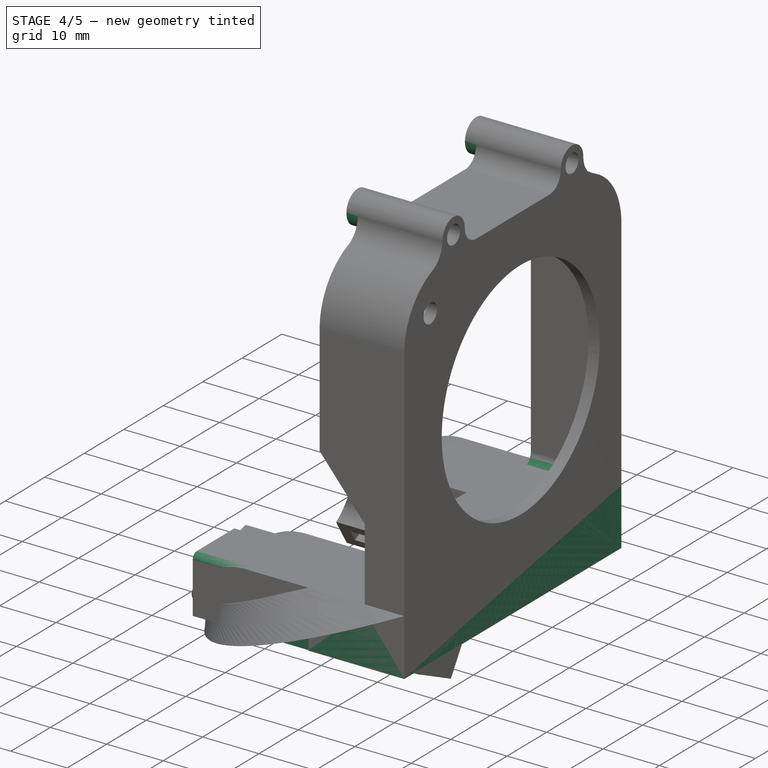
[diagram: stage 4 of 5 — iso view after this stage's code; geometry added in this stage tinted green]
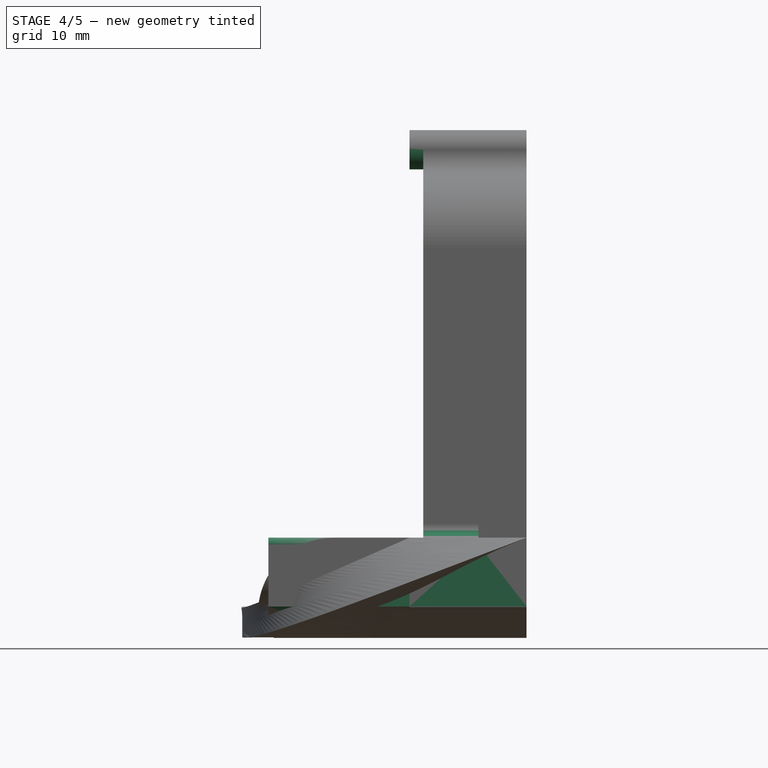
[diagram: stage 4 of 5 — front view after this stage's code; geometry added in this stage tinted green]
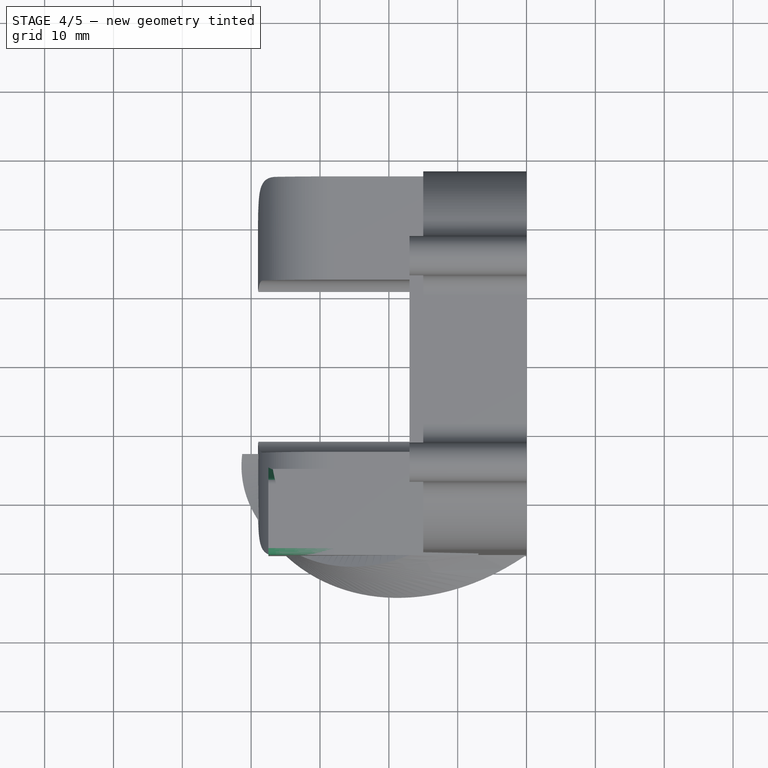
[diagram: stage 4 of 5 — top view after this stage's code; geometry added in this stage tinted green]
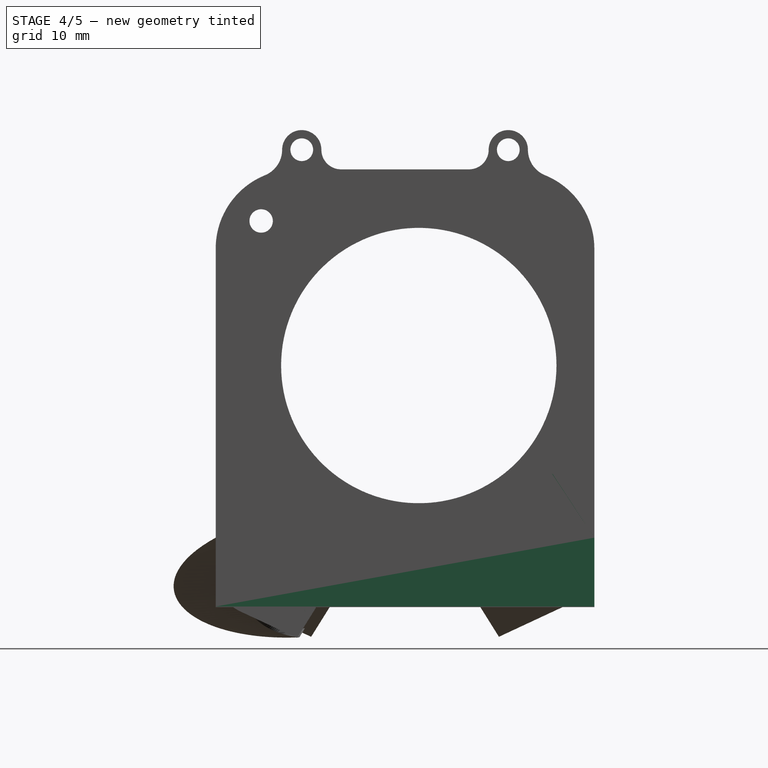
[diagram: stage 4 of 5 — right view after this stage's code; geometry added in this stage tinted green]
FEATURE [PartDesign::Body] Body005  label="风扇安装座-废品2"
  Group = -> [Sketch027,Pad012,Sketch028,Pocket006,Sketch029,Pocket007,Sketch030,Pad013,Sketch031,Pocket008,Sketch032,Pocket009]
  Origin = -> Origin009
  Placement = pos=(35,0,0) rot=(0,0,1;0rad)
  Tip = -> Pocket009
FEATURE [Sketcher::SketchObject] Sketch033
  FullyConstrained = true
  MapMode = 5
  Placement = pos=(0,0,0) rot=(0.57735,0.57735,0.57735;2.0944rad)
  Support = -> [YZ_Plane010]
  sketch-geometry (16):
    g0: Circle CenterX=15 CenterY=5.1 CenterZ=0 NormalX=0 NormalY=0 NormalZ=1 AngleXU=0 Radius=1.65
    g1: Circle CenterX=-15 CenterY=5.1 CenterZ=0 NormalX=0 NormalY=0 NormalZ=1 AngleXU=0 Radius=1.65
    g2: LineSegment StartX=27.5 StartY=-61.35 StartZ=0 EndX=-27.5 EndY=-61.35 EndZ=0
    g3: ArcOfCircle CenterX=-16 CenterY=-9.25366 CenterZ=0 NormalX=0 NormalY=0 NormalZ=1 AngleXU=0 Radius=11.5 StartAngle=1.9578 EndAngle=3.14159
    g4: ArcOfCircle CenterX=16 CenterY=-9.25366 CenterZ=0 NormalX=0 NormalY=0 NormalZ=1 AngleXU=0 Radius=11.5 StartAngle=1e-16 EndAngle=1.18379
    g5: ArcOfCircle CenterX=-15 CenterY=5.1 CenterZ=0 NormalX=0 NormalY=0 NormalZ=1 AngleXU=0 Radius=2.85 StartAngle=0 EndAngle=3.14159
    g6: ArcOfCircle CenterX=15 CenterY=5.1 CenterZ=0 NormalX=0 NormalY=0 NormalZ=1 AngleXU=0 Radius=2.85 StartAngle=0 EndAngle=3.14159
    g7: ArcOfCircle CenterX=9.3 CenterY=5.1 CenterZ=0 NormalX=0 NormalY=0 NormalZ=1 AngleXU=0 Radius=2.85 StartAngle=4.71239 EndAngle=6.28319
    g8: ArcOfCircle CenterX=21.85 CenterY=5.1 CenterZ=0 NormalX=0 NormalY=0 NormalZ=1 AngleXU=0 Radius=4 StartAngle=3.14159 EndAngle=4.32538
    g9: ArcOfCircle CenterX=-9.3 CenterY=5.1 CenterZ=0 NormalX=0 NormalY=0 NormalZ=1 AngleXU=0 Radius=2.85 StartAngle=3.14159 EndAngle=4.71239
    g10: ArcOfCircle CenterX=-21.85 CenterY=5.1 CenterZ=0 NormalX=0 NormalY=0 NormalZ=1 AngleXU=0 Radius=4 StartAngle=5.0994 EndAngle=6.28319
    g11: LineSegment StartX=-9.3 StartY=2.25 StartZ=0 EndX=9.3 EndY=2.25 EndZ=0
    g12: LineSegment StartX=27.5 StartY=-9.25366 StartZ=0 EndX=27.5 EndY=-51.25 EndZ=0
    g13: LineSegment StartX=27.5 StartY=-51.25 StartZ=0 EndX=27.5 EndY=-61.35 EndZ=0
    g14: LineSegment StartX=-27.5 StartY=-9.25366 StartZ=0 EndX=-27.5 EndY=-51.25 EndZ=0
    g15: LineSegment StartX=-27.5 StartY=-51.25 StartZ=0 EndX=-27.5 EndY=-61.35 EndZ=0
  constraints (42):
    c: Symmetric(g1,g0,g-2)
    c: Diameter(g0) = 3.3
    c: DistanceX(g0) = 15
    c: DistanceY(g0) = 5.1
    c: Equal(g1,g0)
    c: Equal(g4,g3)
    c: Symmetric(g2,g2,g-2)
    c: Distance(g2) = 55
    c: Radius(g4) = 11.5
    c: Coincident(g5,g1)
    c: Coincident(g6,g0)
    c: Equal(g6,g5)
    c: Horizontal(g7,g6)
    c: Horizontal(g9,g5)
    c: Horizontal(g10,g5)
    c: Tangent(g11,g9) = -1.5708
    c: Tangent(g3,g10) = 1.5708
    c: Tangent(g4,g8) = 1.5708
    c: Diameter(g8) = 8
    c: Diameter(g7) = 5.7
    c: Tangent(g7,g11) = -1.5708
    c: Tangent(g6,g7) = 1.5708
    c: Tangent(g6,g8) = 1.5708
    c: Diameter(g9) = 5.7
    c: Equal(g10,g8)
    c: Tangent(g5,g10) = 1.5708
    c: Tangent(g5,g9) = 1.5708
    c: Diameter(g6) = 5.7
    c: Horizontal(g6,g6)
    c: Tangent(g4,g12) = 1.5708
    c: Coincident(g12,g13)
    c: Coincident(g13,g2)
    c: Vertical(g13)
    c: DistanceY(g12,g7) = 53.5
    c: DistanceY(g2,g12) = 10.1
    c: Vertical(g12)
    c: Tangent(g3,g14) = -1.5708
    c: Coincident(g14,g15)
    c: Coincident(g15,g2)
    c: Vertical(g15)
    c: Horizontal(g14,g12)
    c: Vertical(g14)
FEATURE [PartDesign::Pad] Pad014
  Direction = (1,-2e-16,3e-16)
  Length = 17
  Length2 = 10
  Placement = pos=(0,0,0) rot=(0.57735,0.57735,0.57735;2.0944rad)
  Profile = -> Sketch033
  ReferenceAxis = -> Sketch033 [N_Axis]
  Reversed = true
  Type = 0
FEATURE [Sketcher::SketchObject] Sketch034
  AttachmentOffset = pos=(0,0,0) rot=(0,0,1;3.14159rad)
  ExternalGeometry = -> [Pad014]
  FullyConstrained = true
  MapMode = 5
  Placement = pos=(-17,3.7e-15,-3.7e-15) rot=(0.57735,-0.57735,-0.57735;2.0944rad)
  Support = -> [Pad014]
  sketch-geometry (6):
    g0: LineSegment StartX=26 StartY=-9.25366 StartZ=0 EndX=26 EndY=-61.35 EndZ=0
    g1: LineSegment StartX=-26 StartY=-61.35 StartZ=0 EndX=26 EndY=-61.35 EndZ=0
    g2: LineSegment StartX=-26 StartY=-61.35 StartZ=0 EndX=-26 EndY=-9.25366 EndZ=0
    g3: LineSegment StartX=16 StartY=0.746342 StartZ=0 EndX=-16 EndY=0.746342 EndZ=0
    g4: ArcOfCircle CenterX=16 CenterY=-9.25366 CenterZ=0 NormalX=0 NormalY=0 NormalZ=1 AngleXU=0 Radius=10 StartAngle=0 EndAngle=1.5708
    g5: ArcOfCircle CenterX=-16 CenterY=-9.25366 CenterZ=0 NormalX=0 NormalY=0 NormalZ=1 AngleXU=0 Radius=10 StartAngle=1.5708 EndAngle=3.14159
  constraints (14):
    c: Vertical(g0)
    c: Horizontal(g1)
    c: Vertical(g2)
    c: Horizontal(g3)
    c: Coincident(g0,g1)
    c: Coincident(g1,g2)
    c: Coincident(g5,g-3)
    c: Coincident(g4,g-4)
    c: Tangent(g3,g5) = -1.5708
    c: Tangent(g3,g4) = -1.5708
    c: Tangent(g0,g4) = 1.5708
    c: Tangent(g2,g5) = 1.5708
    c: Horizontal(g1,g-5)
    c: DistanceX(g0,g-5) = 1.5
FEATURE [PartDesign::Pocket] Pocket010
  BaseFeature = -> Pad014
  Direction = (1,-5e-16,5e-16)
  Length = 0
  Length2 = 5
  Offset = -2
  Placement = pos=(0,0,0) rot=(0.57735,0.57735,0.57735;2.0944rad)
  Profile = -> Sketch034
  ReferenceAxis = -> Sketch034 [N_Axis]
  Type = 3
  UpToFace = -> Pad014 [Face15]
FEATURE [Sketcher::SketchObject] Sketch035
  ExternalGeometry = -> [Pocket010]
  FullyConstrained = false
  MapMode = 5
  Placement = pos=(1e-16,0,0) rot=(0.57735,0.57735,0.57735;2.0944rad)
  Support = -> [Pocket010]
  sketch-geometry (5):
    g0: Circle CenterX=-15 CenterY=5.1 CenterZ=0 NormalX=0 NormalY=0 NormalZ=1 AngleXU=0 Radius=1.7
    g1: Circle CenterX=15 CenterY=5.1 CenterZ=0 NormalX=0 NormalY=0 NormalZ=1 AngleXU=0 Radius=1.7
    g2: Circle CenterX=-20.9 CenterY=-5.25 CenterZ=0 NormalX=0 NormalY=0 NormalZ=1 AngleXU=0 Radius=1.7
    g3: Circle CenterX=2 CenterY=-26.25 CenterZ=0 NormalX=0 NormalY=0 NormalZ=1 AngleXU=0 Radius=20
    g4: Circle CenterX=21.9822 CenterY=-40.3914 CenterZ=0 NormalX=0 NormalY=0 NormalZ=1 AngleXU=0 Radius=1.7
  constraints (11):
    c: Diameter(g1) = 3.4
    c: DistanceY(g2,g-4) = 7.5
    c: DistanceX(g-5,g2) = 6.6
    c: DistanceY(g3,g-4) = 28.5
    c: Diameter(g3) = 40
    c: Coincident(g0,g-7)
    c: Coincident(g1,g-6)
    c: DistanceX(g3,g-8) = 25.5
    c: Equal(g4,g2)
    c: Equal(g0,g1)
    c: Diameter(g4) = 3.4
FEATURE [PartDesign::Pocket] Pocket011
  BaseFeature = -> Pocket010
  Direction = (-1,9e-16,-6e-16)
  Length = 0
  Length2 = 5
  Placement = pos=(0,0,0) rot=(0.57735,0.57735,0.57735;2.0944rad)
  Profile = -> Sketch035
  ReferenceAxis = -> Sketch035 [N_Axis]
  Type = 3
  UpToFace = -> Pocket010 [Face5]
FEATURE [Sketcher::SketchObject] Sketch036
  AttachmentOffset = pos=(0,0,0) rot=(0,0,1;3.14159rad)
  ExternalGeometry = -> [Pocket011]
  FullyConstrained = true
  MapMode = 5
  Placement = pos=(-2,1.3e-15,-7e-16) rot=(-0.57735,0.57735,0.57735;4.18879rad)
  Support = -> [Pocket011]
  sketch-geometry (18):
    g0: ArcOfCircle CenterX=17.3 CenterY=-51.85 CenterZ=0 NormalX=0 NormalY=0 NormalZ=1 AngleXU=0 Radius=0.6 StartAngle=-5.3e-15 EndAngle=3.01134
    g1: LineSegment StartX=17.9 StartY=-51.85 StartZ=0 EndX=17.9 EndY=-61.35 EndZ=0
    g2: LineSegment StartX=17.9 StartY=-61.35 StartZ=0 EndX=-16.5 EndY=-61.35 EndZ=0
    g3: LineSegment StartX=26 StartY=-61.35 StartZ=0 EndX=25.5 EndY=-61.35 EndZ=0
    g4: LineSegment StartX=25.5 StartY=-61.35 StartZ=0 EndX=25.5 EndY=-51.25 EndZ=0
    g5: LineSegment StartX=25.5 StartY=-51.25 StartZ=0 EndX=26 EndY=-51.25 EndZ=0
    g6: LineSegment StartX=26 StartY=-51.25 StartZ=0 EndX=26 EndY=-61.35 EndZ=0
    g7: GeomPoint X=17.3 Y=-51.25 Z=0
    g8: LineSegment StartX=-26 StartY=-49.25 StartZ=0 EndX=-26 EndY=-55.75 EndZ=0
    g9: LineSegment StartX=7.5 StartY=-51.25 StartZ=0 EndX=7.5 EndY=-52.75 EndZ=0
    g10: LineSegment StartX=7.5 StartY=-52.75 StartZ=0 EndX=-23 EndY=-52.75 EndZ=0
    g11: ArcOfCircle CenterX=-23 CenterY=-55.75 CenterZ=0 NormalX=0 NormalY=0 NormalZ=1 AngleXU=0 Radius=3 StartAngle=1.5708 EndAngle=3.14159
    g12: ArcOfCircle CenterX=7.5 CenterY=-50.5663 CenterZ=0 NormalX=0 NormalY=0 NormalZ=1 AngleXU=0 Radius=9.28372 StartAngle=4.71239 EndAngle=6.15293
    g13: LineSegment StartX=7.5 StartY=-59.85 StartZ=0 EndX=-15.5 EndY=-59.85 EndZ=0
    g14: LineSegment StartX=-16.5 StartY=-60.85 StartZ=0 EndX=-16.5 EndY=-61.35 EndZ=0
    g15: ArcOfCircle CenterX=-15.5 CenterY=-60.85 CenterZ=0 NormalX=0 NormalY=0 NormalZ=1 AngleXU=0 Radius=1 StartAngle=1.5708 EndAngle=3.14159
    g16: LineSegment StartX=7.5 StartY=-51.25 StartZ=0 EndX=-24 EndY=-51.25 EndZ=0
    g17: ArcOfCircle CenterX=-24 CenterY=-49.25 CenterZ=0 NormalX=0 NormalY=0 NormalZ=1 AngleXU=0 Radius=2 StartAngle=3.14159 EndAngle=4.71239
  constraints (49):
    c: Tangent(g0,g1) = 1.5708
    c: Coincident(g1,g2)
    c: Horizontal(g2)
    c: Vertical(g1)
    c: Diameter(g0) = 1.2
    c: Coincident(g3,g4)
    c: Coincident(g4,g5)
    c: Coincident(g5,g6)
    c: Coincident(g6,g3)
    c: Horizontal(g3)
    c: Horizontal(g5)
    c: Vertical(g4)
    c: Vertical(g6)
    c: Coincident(g3,g-3)
    c: Horizontal(g5,g-4)
    c: PointOnObject(g7,g0)
    c: Vertical(g0,g7)
    c: Horizontal(g7,g-4)
    c: Distance(g5) = 0.5
    c: Vertical(g8)
    c: Vertical(g9)
    c: Coincident(g9,g10)
    c: Horizontal(g10)
    c: Distance(g9) = 1.5
    c: Horizontal(g9,g-4)
    c: Vertical(g8,g-3)
    c: Tangent(g11,g10) = -1.5708
    c: Tangent(g11,g8) = -1.5708
    c: Diameter(g11) = 6
    c: DistanceX(g9,g7) = 9.8
    c: DistanceX(g9,g4) = 18
    c: Tangent(g12,g13) = 1.5708
    c: Coincident(g14,g2)
    c: Horizontal(g13)
    c: Vertical(g14)
    c: Horizontal(g2,g-4)
    c: Tangent(g12,g0) = 1.5708
    c: Vertical(g9,g12)
    c: Tangent(g13,g15) = -1.5708
    c: Tangent(g14,g15) = -1.5708
    c: DistanceY(g12,g9) = 7.1
    c: Diameter(g15) = 2
    c: DistanceY(g2,g13) = 1.5
    c: DistanceX(g-3,g2) = 9.5
    c: Coincident(g9,g16)
    c: Horizontal(g16)
    c: Tangent(g17,g16) = 1.5708
    c: Tangent(g17,g8) = -1.5708
    c: Diameter(g17) = 4
FEATURE [PartDesign::Pad] Pad015
  BaseFeature = -> Pocket011
  Direction = (-1,8e-16,-8e-16)
  Length = 10
  Length2 = 10
  Offset = -2
  Placement = pos=(0,0,0) rot=(0.57735,0.57735,0.57735;2.0944rad)
  Profile = -> Sketch036
  ReferenceAxis = -> Sketch036 [N_Axis]
  Type = 3
  UpToFace = -> Pocket011 [Face5]
FEATURE [Sketcher::SketchObject] Sketch037
  AttachmentOffset = pos=(0,0,0) rot=(0,0,1;3.14159rad)
  ExternalGeometry = -> [Pad015]
  FullyConstrained = true
  MapMode = 5
  Placement = pos=(-15,1.66e-14,-8.4e-15) rot=(-0.57735,0.57735,0.57735;4.18879rad)
  Support = -> [Pad015]
  sketch-geometry (4):
    g0: LineSegment StartX=-26 StartY=-51.25 StartZ=0 EndX=26 EndY=-51.25 EndZ=0
    g1: LineSegment StartX=26 StartY=-51.25 StartZ=0 EndX=26 EndY=-61.35 EndZ=0
    g2: LineSegment StartX=26 StartY=-61.35 StartZ=0 EndX=-26 EndY=-61.35 EndZ=0
    g3: LineSegment StartX=-26 StartY=-61.35 StartZ=0 EndX=-26 EndY=-51.25 EndZ=0
  constraints (10):
    c: Coincident(g0,g1)
    c: Coincident(g1,g2)
    c: Coincident(g2,g3)
    c: Coincident(g3,g0)
    c: Horizontal(g0)
    c: Horizontal(g2)
    c: Vertical(g3)
    c: PointOnObject(g0,g-4)
    c: Coincident(g1,g-3)
    c: Coincident(g0,g-3)
FEATURE [PartDesign::Pad] Pad016
  BaseFeature = -> Pad015
  Direction = (-1,9e-16,-9e-16)
  Length = 10
  Length2 = 10
  Placement = pos=(0,0,0) rot=(0.57735,0.57735,0.57735;2.0944rad)
  Profile = -> Sketch037
  ReferenceAxis = -> Sketch037 [N_Axis]
  Type = 3
  UpToFace = -> Pad015 [Face5]
FEATURE [Sketcher::SketchObject] Sketch038
  AttachmentOffset = pos=(0,0,0) rot=(0,0,1;3.14159rad)
  ExternalGeometry = -> [Pad016]
  FullyConstrained = true
  MapMode = 5
  Placement = pos=(-1.21e-14,-27.5,6.1e-15) rot=(-0.57735,0.57735,-0.57735;4.18879rad)
  Support = -> [Pad016]
  sketch-geometry (4):
    g0: LineSegment StartX=2.25 StartY=15 StartZ=0 EndX=-51.25 EndY=15 EndZ=0
    g1: LineSegment StartX=-51.25 StartY=15 StartZ=0 EndX=-51.25 EndY=17 EndZ=0
    g2: LineSegment StartX=-51.25 StartY=17 StartZ=0 EndX=2.25 EndY=17 EndZ=0
    g3: LineSegment StartX=2.25 StartY=17 StartZ=0 EndX=2.25 EndY=15 EndZ=0
  constraints (10):
    c: Coincident(g0,g1)
    c: Horizontal(g0)
    c: Vertical(g1)
    c: Distance(g1) = 2
    c: Coincident(g1,g-3)
    c: Coincident(g1,g2)
    c: Coincident(g2,g-4)
    c: Coincident(g2,g3)
    c: Coincident(g3,g0)
    c: Vertical(g3)
FEATURE [PartDesign::Pocket] Pocket012
  BaseFeature = -> Pad016
  Direction = (3e-16,1,-1.6e-15)
  Length = 0
  Length2 = 5
  Placement = pos=(0,0,0) rot=(0.57735,0.57735,0.57735;2.0944rad)
  Profile = -> Sketch038
  ReferenceAxis = -> Sketch038 [N_Axis]
  Type = 3
  UpToFace = -> Pad016 [Face1]
FEATURE [Sketcher::SketchObject] Sketch039
  AttachmentOffset = pos=(0,0,0) rot=(0,0,1;3.14159rad)
  ExternalGeometry = -> [Pocket012]
  FullyConstrained = true
  MapMode = 5
  Placement = pos=(-17,3.7e-15,-3.7e-15) rot=(0.57735,-0.57735,-0.57735;2.0944rad)
  Support = -> [Pocket012]
  sketch-geometry (12):
    g0: ArcOfCircle CenterX=-15 CenterY=5.1 CenterZ=0 NormalX=0 NormalY=0 NormalZ=1 AngleXU=0 Radius=2.85 StartAngle=3.14159 EndAngle=6.28319
    g1: ArcOfCircle CenterX=15 CenterY=5.1 CenterZ=0 NormalX=0 NormalY=0 NormalZ=1 AngleXU=0 Radius=2.85 StartAngle=3.14159 EndAngle=6.28319
    g2: LineSegment StartX=-9.3 StartY=5.1 StartZ=0 EndX=-9.3 EndY=0 EndZ=0
    g3: LineSegment StartX=-9.3 StartY=0 StartZ=0 EndX=-19.0433 EndY=0 EndZ=0
    g4: LineSegment StartX=-19.0433 StartY=0 StartZ=0 EndX=-19.0433 EndY=5.1 EndZ=0
    g5: LineSegment StartX=19.0433 StartY=5.1 StartZ=0 EndX=19.0433 EndY=0 EndZ=0
    g6: LineSegment StartX=19.0433 StartY=0 StartZ=0 EndX=9.3 EndY=0 EndZ=0
    g7: LineSegment StartX=9.3 StartY=0 StartZ=0 EndX=9.3 EndY=5.1 EndZ=0
    g8: LineSegment StartX=-9.3 StartY=5.1 StartZ=0 EndX=-12.15 EndY=5.1 EndZ=0
    g9: LineSegment StartX=-17.85 StartY=5.1 StartZ=0 EndX=-19.0433 EndY=5.1 EndZ=0
    g10: LineSegment StartX=9.3 StartY=5.1 StartZ=0 EndX=12.15 EndY=5.1 EndZ=0
    g11: LineSegment StartX=17.85 StartY=5.1 StartZ=0 EndX=19.0433 EndY=5.1 EndZ=0
  constraints (34):
    c: Coincident(g2,g3)
    c: Coincident(g3,g4)
    c: Coincident(g5,g6)
    c: Coincident(g6,g7)
    c: Horizontal(g6)
    c: Vertical(g5)
    c: Vertical(g7)
    c: PointOnObject(g5,g-1)
    c: PointOnObject(g2,g-1)
    c: Horizontal(g3)
    c: Vertical(g4)
    c: Vertical(g2)
    c: PointOnObject(g-3,g2)
    c: PointOnObject(g-4,g4)
    c: Coincident(g-5,g1)
    c: PointOnObject(g-5,g7)
    c: Coincident(g1,g-6)
    c: Horizontal(g1,g1)
    c: Horizontal(g0,g0)
    c: Coincident(g2,g8)
    c: Coincident(g8,g0)
    c: Horizontal(g8)
    c: Coincident(g9,g4)
    c: Horizontal(g9)
    c: Coincident(g0,g9)
    c: Coincident(g0,g-8)
    c: Coincident(g-7,g0)
    c: Coincident(g10,g7)
    c: Coincident(g10,g1)
    c: Horizontal(g10)
    c: Coincident(g11,g1)
    c: Coincident(g11,g5)
    c: Horizontal(g11)
    c: PointOnObject(g-6,g5)
FEATURE [PartDesign::Pocket] Pocket013
  BaseFeature = -> Pocket012
  Direction = (1,-3e-16,3e-16)
  Length = 0
  Length2 = 5
  Placement = pos=(0,0,0) rot=(0.57735,0.57735,0.57735;2.0944rad)
  Profile = -> Sketch039
  ReferenceAxis = -> Sketch039 [N_Axis]
  Type = 3
  UpToFace = -> Pocket012 [Face4]
FEATURE [Sketcher::SketchObject] Sketch040
  AttachmentOffset = pos=(0,0,0) rot=(0,0,1;3.14159rad)
  ExternalGeometry = -> [Pocket013]
  FullyConstrained = true
  MapMode = 5
  Placement = pos=(-1.21e-14,-27.5,6.1e-15) rot=(-0.57735,0.57735,-0.57735;4.18879rad)
  Support = -> [Pocket013]
  sketch-geometry (6):
    g0: LineSegment StartX=-51.25 StartY=15 StartZ=0 EndX=-51.25 EndY=7 EndZ=0
    g1: LineSegment StartX=-51.25 StartY=7 StartZ=0 EndX=-38.3735 EndY=7 EndZ=0
    g2: LineSegment StartX=-38.3735 StartY=7 StartZ=0 EndX=-28.7265 EndY=15 EndZ=0
    g3: LineSegment StartX=-28.7265 StartY=15 StartZ=0 EndX=-51.25 EndY=15 EndZ=0
    g4: GeomPoint X=-37.65 Y=7.6 Z=0
    g5: GeomPoint X=-29.45 Y=14.4 Z=0
  constraints (17):
    c: Coincident(g0,g-3)
    c: Vertical(g0)
    c: Coincident(g0,g1)
    c: Horizontal(g1)
    c: Coincident(g1,g2)
    c: Coincident(g2,g3)
    c: Coincident(g3,g0)
    c: Horizontal(g3)
    c: Distance(g0) = 8
    c: PointOnObject(g4,g2)
    c: DistanceY(g1,g4) = 0.6
    c: DistanceX(g0,g4) = 13.6
    c: Distance(g1) = 12.8765
    c: PointOnObject(g5,g2)
    c: DistanceY(g5,g2) = 0.6
    c: DistanceX(g0,g5) = 21.8
    c: Angle(g2,g1) = 2.44926
FEATURE [PartDesign::Pocket] Pocket014
  BaseFeature = -> Pocket013
  Direction = (3e-16,1,-4e-16)
  Length = 0
  Length2 = 5
  Placement = pos=(0,0,0) rot=(0.57735,0.57735,0.57735;2.0944rad)
  Profile = -> Sketch040
  ReferenceAxis = -> Sketch040 [N_Axis]
  Type = 3
  UpToFace = -> Pocket013 [Face66]
FEATURE [Sketcher::SketchObject] Sketch049
  AttachmentOffset = pos=(0,0,0) rot=(0,0,1;3.14159rad)
  ExternalGeometry = -> [Pocket020]
  FullyConstrained = true
  MapMode = 5
  Placement = pos=(-1.21e-14,-27.5,6.1e-15) rot=(-0.57735,0.57735,-0.57735;4.18879rad)
  Support = -> [Pocket020]
  sketch-geometry (4):
    g0: LineSegment StartX=-51.25 StartY=15 StartZ=0 EndX=-28.816 EndY=15 EndZ=0
    g1: LineSegment StartX=-28.816 StartY=15 StartZ=0 EndX=-38.35 EndY=7 EndZ=0
    g2: LineSegment StartX=-38.35 StartY=7 StartZ=0 EndX=-51.25 EndY=7 EndZ=0
    g3: LineSegment StartX=-51.25 StartY=7 StartZ=0 EndX=-51.25 EndY=15 EndZ=0
  constraints (11):
    c: Horizontal(g0)
    c: Coincident(g0,g1)
    c: Coincident(g1,g2)
    c: Horizontal(g2)
    c: Coincident(g2,g3)
    c: Coincident(g3,g0)
    c: Vertical(g3)
    c: Angle(g1,g2) = 2.44346
    c: Distance(g3) = 8
    c: Distance(g2) = 12.9
    c: Coincident(g0,g-3)
FEATURE [PartDesign::Pocket] Pocket021
  BaseFeature = -> Pocket020
  Direction = (4e-16,1,-8e-16)
  Length = 5
  Length2 = 5
  Placement = pos=(0,0,0) rot=(0.57735,0.57735,0.57735;2.0944rad)
  Profile = -> Sketch049
  ReferenceAxis = -> Sketch049 [N_Axis]
  Type = 0
FEATURE [Sketcher::SketchObject] Sketch051
  ExternalGeometry = -> [Pocket021]
  FullyConstrained = true
  MapMode = 5
  Placement = pos=(1.44e-14,-2.26e-14,-51.25) rot=(0.707107,0.707107,0;3.14159rad)
  Support = -> [Pocket021]
  sketch-geometry (8):
    g0: LineSegment StartX=-27.5 StartY=-7.1e-15 StartZ=0 EndX=27.5 EndY=-2.05e-14 EndZ=0
    g1: LineSegment StartX=27.5 StartY=-2.05e-14 StartZ=0 EndX=27.5 EndY=-17 EndZ=0
    g2: LineSegment StartX=-27.5 StartY=-17 StartZ=0 EndX=-27.5 EndY=-7.1e-15 EndZ=0
    g3: LineSegment StartX=27.5 StartY=-17 StartZ=0 EndX=26 EndY=-17 EndZ=0
    g4: LineSegment StartX=26 StartY=-17 StartZ=0 EndX=26 EndY=-2 EndZ=0
    g5: LineSegment StartX=26 StartY=-2 StartZ=0 EndX=-26 EndY=-2 EndZ=0
    g6: LineSegment StartX=-26 StartY=-2 StartZ=0 EndX=-26 EndY=-17 EndZ=0
    g7: LineSegment StartX=-26 StartY=-17 StartZ=0 EndX=-27.5 EndY=-17 EndZ=0
  constraints (20):
    c: Coincident(g0,g1)
    c: Coincident(g2,g0)
    c: Vertical(g1)
    c: Vertical(g2)
    c: Coincident(g0,g-3)
    c: Coincident(g0,g-3)
    c: Distance(g1) = 17
    c: Equal(g1,g2)
    c: Coincident(g1,g3)
    c: Horizontal(g3)
    c: Coincident(g3,g4)
    c: Coincident(g4,g-4)
    c: Vertical(g4)
    c: Coincident(g4,g5)
    c: Coincident(g5,g-4)
    c: Coincident(g5,g6)
    c: Vertical(g6)
    c: Coincident(g6,g7)
    c: Coincident(g7,g2)
    c: Horizontal(g7)
FEATURE [PartDesign::Pad] Pad019
  BaseFeature = -> Pocket021
  Direction = (3e-16,-4e-16,-1)
  Length = 10
  Length2 = 10
  Placement = pos=(0,0,0) rot=(0.57735,0.57735,0.57735;2.0944rad)
  Profile = -> Sketch051
  ReferenceAxis = -> Sketch051 [N_Axis]
  Type = 0
FEATURE [Sketcher::SketchObject] Sketch052
  AttachmentOffset = pos=(0,0,0) rot=(0,0,1;3.14159rad)
  ExternalGeometry = -> [Pad019]
  FullyConstrained = true
  MapMode = 5
  Placement = pos=(-2,4e-16,-1e-15) rot=(0.57735,-0.57735,-0.57735;2.0944rad)
  Support = -> [Pad019]
  sketch-geometry (14):
    g0: LineSegment StartX=-26 StartY=-51.25 StartZ=0 EndX=7.5 EndY=-51.25 EndZ=0
    g1: LineSegment StartX=7.5 StartY=-51.25 StartZ=0 EndX=7.5 EndY=-52.75 EndZ=0
    g2: LineSegment StartX=7.5 StartY=-52.75 StartZ=0 EndX=-26 EndY=-52.75 EndZ=0
    g3: LineSegment StartX=-26 StartY=-52.75 StartZ=0 EndX=-26 EndY=-51.25 EndZ=0
    g4: LineSegment StartX=26 StartY=-51.25 StartZ=0 EndX=25.5 EndY=-51.25 EndZ=0
    g5: LineSegment StartX=25.5 StartY=-51.25 StartZ=0 EndX=25.5 EndY=-61.25 EndZ=0
    g6: LineSegment StartX=25.5 StartY=-61.25 StartZ=0 EndX=26 EndY=-61.25 EndZ=0
    g7: LineSegment StartX=26 StartY=-61.25 StartZ=0 EndX=26 EndY=-51.25 EndZ=0
    g8: LineSegment StartX=9.4 StartY=-59.75 StartZ=0 EndX=-26 EndY=-59.75 EndZ=0
    g9: LineSegment StartX=-26 StartY=-59.75 StartZ=0 EndX=-26 EndY=-61.25 EndZ=0
    g10: LineSegment StartX=-26 StartY=-61.25 StartZ=0 EndX=18.5 EndY=-61.25 EndZ=0
    g11: LineSegment StartX=18.5 StartY=-61.25 StartZ=0 EndX=18.5 EndY=-51.85 EndZ=0
    g12: ArcOfCircle CenterX=17.9 CenterY=-51.85 CenterZ=0 NormalX=0 NormalY=0 NormalZ=1 AngleXU=0 Radius=0.6 StartAngle=-9e-16 EndAngle=3.14159
    g13: ArcOfCircle CenterX=9.4 CenterY=-51.85 CenterZ=0 NormalX=0 NormalY=0 NormalZ=1 AngleXU=0 Radius=7.9 StartAngle=4.71239 EndAngle=6.28319
  constraints (37):
    c: Coincident(g0,g1)
    c: Coincident(g1,g2)
    c: Coincident(g2,g3)
    c: Coincident(g3,g0)
    c: Horizontal(g0)
    c: Horizontal(g2)
    c: Vertical(g1)
    c: Vertical(g3)
    c: Coincident(g0,g-3)
    c: Coincident(g4,g5)
    c: Coincident(g5,g6)
    c: Coincident(g6,g7)
    c: Coincident(g7,g4)
    c: Horizontal(g4)
    c: Horizontal(g6)
    c: Vertical(g5)
    c: Coincident(g4,g-3)
    c: Distance(g4) = 0.5
    c: Distance(g3) = 1.5
    c: Horizontal(g8)
    c: Coincident(g8,g9)
    c: Vertical(g9)
    c: Coincident(g9,g10)
    c: Coincident(g10,g11)
    c: Vertical(g11)
    c: Tangent(g11,g12) = -1.5708
    c: Tangent(g12,g13) = 1.5708
    c: Tangent(g13,g8) = 1.5708
    c: Horizontal(g11,g12)
    c: Diameter(g12) = 1.2
    c: Tangent(g12,g-3)
    c: Distance(g9) = 1.5
    c: DistanceX(g0,g12) = 9.8
    c: DistanceX(g0,g4) = 18
    c: Coincident(g6,g-4)
    c: Tangent(g10,g-4)
    c: Coincident(g9,g-4)
FEATURE [PartDesign::Pad] Pad020
  BaseFeature = -> Pad019
  Direction = (-1,2e-16,-4e-16)
  Length = 10
  Length2 = 10
  Placement = pos=(0,0,0) rot=(0.57735,0.57735,0.57735;2.0944rad)
  Profile = -> Sketch052
  ReferenceAxis = -> Sketch052 [N_Axis]
  Type = 3
  UpToFace = -> Pad019 [Face5]
FEATURE [Sketcher::SketchObject] Sketch053
  AttachmentOffset = pos=(0,0,0) rot=(0,0,1;3.14159rad)
  ExternalGeometry = -> [Pad020]
  FullyConstrained = true
  MapMode = 5
  Placement = pos=(-7.2e-15,-18.5,-3.1e-15) rot=(0.57735,-0.57735,0.57735;2.0944rad)
  Support = -> [Pad020]
  sketch-geometry (5):
    g0: LineSegment StartX=-61.25 StartY=15 StartZ=0 EndX=-61.25 EndY=2 EndZ=0
    g1: LineSegment StartX=-61.25 StartY=2 StartZ=0 EndX=-51.25 EndY=2 EndZ=0
    g2: LineSegment StartX=-61.25 StartY=15 StartZ=0 EndX=-59.75 EndY=15 EndZ=0
    g3: ArcOfCircle CenterX=-45.5588 CenterY=15 CenterZ=0 NormalX=0 NormalY=0 NormalZ=1 AngleXU=0 Radius=14.1912 StartAngle=3.14159 EndAngle=4.29974
    g4: LineSegment StartX=-59.75 StartY=15 StartZ=0 EndX=-59.75 EndY=2 EndZ=0
  constraints (13):
    c: Coincident(g-3,g0)
    c: Coincident(g0,g1)
    c: Coincident(g1,g-4)
    c: Coincident(g0,g-3)
    c: Coincident(g2,g0)
    c: Horizontal(g2)
    c: Coincident(g3,g2)
    c: Coincident(g3,g1)
    c: Distance(g2) = 1.5
    c: Coincident(g4,g2)
    c: PointOnObject(g4,g1)
    c: Vertical(g4)
    c: Tangent(g3,g4)
FEATURE [PartDesign::Pad] Pad021
  BaseFeature = -> Pad020
  Direction = (-4e-16,-1,-2e-16)
  Length = 7
  Length2 = 10
  Placement = pos=(0,0,0) rot=(0.57735,0.57735,0.57735;2.0944rad)
  Profile = -> Sketch053
  ReferenceAxis = -> Sketch053 [N_Axis]
  Type = 0
FEATURE [PartDesign::Fillet] Fillet
  Base = -> Pad021 [Edge102]
  BaseFeature = -> Pad021
  Placement = pos=(0,0,0) rot=(0.57735,0.57735,0.57735;2.0944rad)
  Radius = 5
  SupportTransform = false
  UseAllEdges = false
FEATURE [Sketcher::SketchObject] Sketch054
  AttachmentOffset = pos=(0,0,0) rot=(0,0,1;3.14159rad)
  ExternalGeometry = -> [Fillet]
  FullyConstrained = true
  MapMode = 5
  Placement = pos=(-15,9.9e-15,-3.3e-15) rot=(-0.57735,0.57735,0.57735;4.18879rad)
  Support = -> [Fillet]
  sketch-geometry (12):
    g0: LineSegment StartX=-26 StartY=-51.25 StartZ=0 EndX=26 EndY=-51.25 EndZ=0
    g1: LineSegment StartX=26 StartY=-51.25 StartZ=0 EndX=26 EndY=-61.25 EndZ=0
    g2: LineSegment StartX=26 StartY=-61.25 StartZ=0 EndX=-26 EndY=-61.25 EndZ=0
    g3: LineSegment StartX=-26 StartY=-61.25 StartZ=0 EndX=-26 EndY=-59.75 EndZ=0
    g4: LineSegment StartX=-26 StartY=-59.75 StartZ=0 EndX=-19 EndY=-59.75 EndZ=0
    g5: LineSegment StartX=-19 StartY=-52.75 StartZ=0 EndX=-26 EndY=-52.75 EndZ=0
    g6: LineSegment StartX=-26 StartY=-52.75 StartZ=0 EndX=-26 EndY=-51.25 EndZ=0
    g7: LineSegment StartX=18.5 StartY=-59.75 StartZ=0 EndX=25.5 EndY=-59.75 EndZ=0
    g8: LineSegment StartX=25.5 StartY=-59.75 StartZ=0 EndX=25.5 EndY=-52.75 EndZ=0
    g9: LineSegment StartX=25.5 StartY=-52.75 StartZ=0 EndX=18.5 EndY=-52.75 EndZ=0
    g10: LineSegment StartX=18.5 StartY=-52.75 StartZ=0 EndX=18.5 EndY=-59.75 EndZ=0
    g11: LineSegment StartX=-19 StartY=-52.75 StartZ=0 EndX=-19 EndY=-59.75 EndZ=0
  constraints (28):
    c: Coincident(g0,g-3)
    c: Coincident(g0,g-8)
    c: Coincident(g0,g1)
    c: Coincident(g1,g-4)
    c: Coincident(g1,g2)
    c: Coincident(g2,g-7)
    c: Coincident(g2,g3)
    c: Coincident(g3,g-6)
    c: Coincident(g3,g4)
    c: Coincident(g5,g-5)
    c: Coincident(g5,g6)
    c: Coincident(g6,g0)
    c: Coincident(g7,g8)
    c: Coincident(g8,g9)
    c: Coincident(g9,g10)
    c: Coincident(g10,g7)
    c: Horizontal(g9)
    c: Vertical(g8)
    c: Vertical(g10)
    c: Coincident(g7,g-9)
    c: Coincident(g7,g-10)
    c: DistanceY(g8,g0) = 1.5
    c: Coincident(g11,g5)
    c: Coincident(g11,g4)
    c: Vertical(g11)
    c: Distance(g4) = 7
    c: Horizontal(g5)
    c: Horizontal(g4)
FEATURE [PartDesign::Pad] Pad022
  BaseFeature = -> Fillet
  Direction = (-1,7e-16,-3e-16)
  Length = 2
  Length2 = 10
  Placement = pos=(0,0,0) rot=(0.57735,0.57735,0.57735;2.0944rad)
  Profile = -> Sketch054
  ReferenceAxis = -> Sketch054 [N_Axis]
  Type = 0
FEATURE [Sketcher::SketchObject] Sketch055
  AttachmentOffset = pos=(0,0,0) rot=(0,0,1;3.14159rad)
  ExternalGeometry = -> [Pad022]
  FullyConstrained = true
  MapMode = 5
  Placement = pos=(-17,1.12e-14,-4.6e-15) rot=(-0.57735,0.57735,0.57735;4.18879rad)
  Support = -> [Pad022]
  sketch-geometry (8):
    g0: LineSegment StartX=27.5 StartY=-61.25 StartZ=0 EndX=27.5 EndY=-51.25 EndZ=0
    g1: LineSegment StartX=27.5 StartY=-51.25 StartZ=0 EndX=16.5 EndY=-51.25 EndZ=0
    g2: LineSegment StartX=16.5 StartY=-51.25 StartZ=0 EndX=16.5 EndY=-61.25 EndZ=0
    g3: LineSegment StartX=16.5 StartY=-61.25 StartZ=0 EndX=27.5 EndY=-61.25 EndZ=0
    g4: LineSegment StartX=18.5 StartY=-59.75 StartZ=0 EndX=25.5 EndY=-59.75 EndZ=0
    g5: LineSegment StartX=25.5 StartY=-59.75 StartZ=0 EndX=25.5 EndY=-52.75 EndZ=0
    g6: LineSegment StartX=25.5 StartY=-52.75 StartZ=0 EndX=18.5 EndY=-52.75 EndZ=0
    g7: LineSegment StartX=18.5 StartY=-52.75 StartZ=0 EndX=18.5 EndY=-59.75 EndZ=0
  constraints (21):
    c: Coincident(g0,g-3)
    c: Vertical(g0)
    c: Coincident(g0,g1)
    c: PointOnObject(g1,g-4)
    c: Horizontal(g1)
    c: Coincident(g1,g2)
    c: Coincident(g3,g0)
    c: Coincident(g2,g3)
    c: Vertical(g2)
    c: Horizontal(g3)
    c: DistanceX(g1,g-5) = 2
    c: Coincident(g4,g5)
    c: Coincident(g5,g6)
    c: Coincident(g6,g7)
    c: Coincident(g7,g4)
    c: Horizontal(g4)
    c: Horizontal(g6)
    c: Vertical(g5)
    c: Vertical(g7)
    c: Coincident(g4,g-5)
    c: Coincident(g5,g-6)
FEATURE [PartDesign::Pad] Pad023
  BaseFeature = -> Pad022
  Direction = (-1,8e-16,-4e-16)
  Length = 8.5
  Length2 = 10
  Placement = pos=(0,0,0) rot=(0.57735,0.57735,0.57735;2.0944rad)
  Profile = -> Sketch055
  ReferenceAxis = -> Sketch055 [N_Axis]
  Type = 0
FEATURE [Sketcher::SketchObject] Sketch056
  AttachmentOffset = pos=(0,0,0) rot=(0,0,1;3.14159rad)
  ExternalGeometry = -> [Pad023]
  FullyConstrained = false
  MapMode = 5
  Placement = pos=(-25.5,2.17e-14,-1.35e-14) rot=(-0.57735,0.57735,0.57735;4.18879rad)
  Support = -> [Pad023]
  sketch-geometry (5):
    g0: LineSegment StartX=27.5 StartY=-51.25 StartZ=0 EndX=16.5 EndY=-51.25 EndZ=0
    g1: LineSegment StartX=16.5 StartY=-51.25 StartZ=0 EndX=13.0862 EndY=-61.4888 EndZ=0
    g2: LineSegment StartX=13.0862 StartY=-61.4888 StartZ=0 EndX=15.7157 EndY=-65.763 EndZ=0
    g3: LineSegment StartX=15.7157 StartY=-65.763 StartZ=0 EndX=27.5 EndY=-61.25 EndZ=0
    g4: LineSegment StartX=27.5 StartY=-61.25 StartZ=0 EndX=27.5 EndY=-51.25 EndZ=0
  constraints (9):
    c: Coincident(g-4,g0)
    c: Coincident(g0,g-3)
    c: Coincident(g0,g1)
    c: Coincident(g1,g2)
    c: Coincident(g2,g3)
    c: Coincident(g3,g-4)
    c: Coincident(g3,g4)
    c: Coincident(g4,g0)
    c: Angle(g2,g0) = 1.01927
FEATURE [PartDesign::Pad] Pad024
  BaseFeature = -> Pad023
  Direction = (-1,1.1e-15,-7e-16)
  Length = 12
  Length2 = 10
  Placement = pos=(0,0,0) rot=(0.57735,0.57735,0.57735;2.0944rad)
  Profile = -> Sketch056
  ReferenceAxis = -> Sketch056 [N_Axis]
  Type = 0
FEATURE [Sketcher::SketchObject] Sketch057
  AttachmentOffset = pos=(0,0,-1.5) rot=(0,0,1;3.14159rad)
  ExternalGeometry = -> [Pad024]
  FullyConstrained = false
  MapMode = 5
  Placement = pos=(-36,3.52e-14,-2.51e-14) rot=(-0.57735,0.57735,0.57735;4.18879rad)
  Support = -> [Pad024]
  sketch-geometry (9):
    g0: LineSegment StartX=14.916 StartY=-64.463 StartZ=0 EndX=14.1116 EndY=-63.1556 EndZ=0
    g1: LineSegment StartX=14.1116 StartY=-63.1556 StartZ=0 EndX=17.5811 EndY=-52.75 EndZ=0
    g2: LineSegment StartX=17.5811 StartY=-52.75 StartZ=0 EndX=26 EndY=-52.75 EndZ=0
    g3: LineSegment StartX=26 StartY=-52.75 StartZ=0 EndX=26 EndY=-60.2182 EndZ=0
    g4: LineSegment StartX=26 StartY=-60.2182 StartZ=0 EndX=14.916 EndY=-64.463 EndZ=0
    g5: LineSegment StartX=20.9541 StartY=-51.25 StartZ=0 EndX=20.9541 EndY=-52.75 EndZ=0
    g6: LineSegment StartX=26 StartY=-56.1902 StartZ=0 EndX=27.5 EndY=-56.1902 EndZ=0
    g7: LineSegment StartX=16.185 StartY=-56.937 StartZ=0 EndX=14.762 EndY=-56.4625 EndZ=0
    g8: LineSegment StartX=22.0157 StartY=-61.7441 StartZ=0 EndX=22.5522 EndY=-63.1449 EndZ=0
  constraints (27):
    c: PointOnObject(g0,g-7)
    c: PointOnObject(g0,g-7)
    c: Coincident(g0,g1)
    c: Coincident(g1,g2)
    c: Horizontal(g2)
    c: Coincident(g2,g3)
    c: Vertical(g3)
    c: Coincident(g3,g4)
    c: Coincident(g4,g0)
    c: PointOnObject(g5,g-3)
    c: PointOnObject(g5,g2)
    c: Vertical(g5)
    c: PointOnObject(g6,g3)
    c: PointOnObject(g6,g-5)
    c: PointOnObject(g7,g1)
    c: PointOnObject(g7,g-4)
    c: PointOnObject(g8,g4)
    c: PointOnObject(g8,g-6)
    c: Equal(g5,g6)
    c: Equal(g6,g8)
    c: Equal(g8,g7)
    c: Perpendicular(g7,g1)
    c: Perpendicular(g3,g6)
    c: Perpendicular(g4,g8)
    c: Perpendicular(g8,g-6)
    c: Distance(g6) = 1.5
    c: Perpendicular(g7,g-4)
FEATURE [PartDesign::Pocket] Pocket022
  BaseFeature = -> Pad024
  Direction = (1,-1.1e-15,8e-16)
  Length = 0
  Length2 = 5
  Offset = -1.5
  Placement = pos=(0,0,0) rot=(0.57735,0.57735,0.57735;2.0944rad)
  Profile = -> Sketch057
  ReferenceAxis = -> Sketch057 [N_Axis]
  Type = 3
  UpToFace = -> Pad024 [Face47]
FEATURE [PartDesign::Fillet] Fillet001
  Base = -> Pocket022 [Edge213]
  BaseFeature = -> Pocket022
  Placement = pos=(0,0,0) rot=(0.57735,0.57735,0.57735;2.0944rad)
  Radius = 4
  SupportTransform = false
  UseAllEdges = false
FEATURE [PartDesign::Fillet] Fillet002
  Base = -> Fillet001 [Edge15,Edge12,Edge23,Edge33]
  BaseFeature = -> Fillet001
  Placement = pos=(0,0,0) rot=(0.57735,0.57735,0.57735;2.0944rad)
  Radius = 1
  SupportTransform = false
  UseAllEdges = false
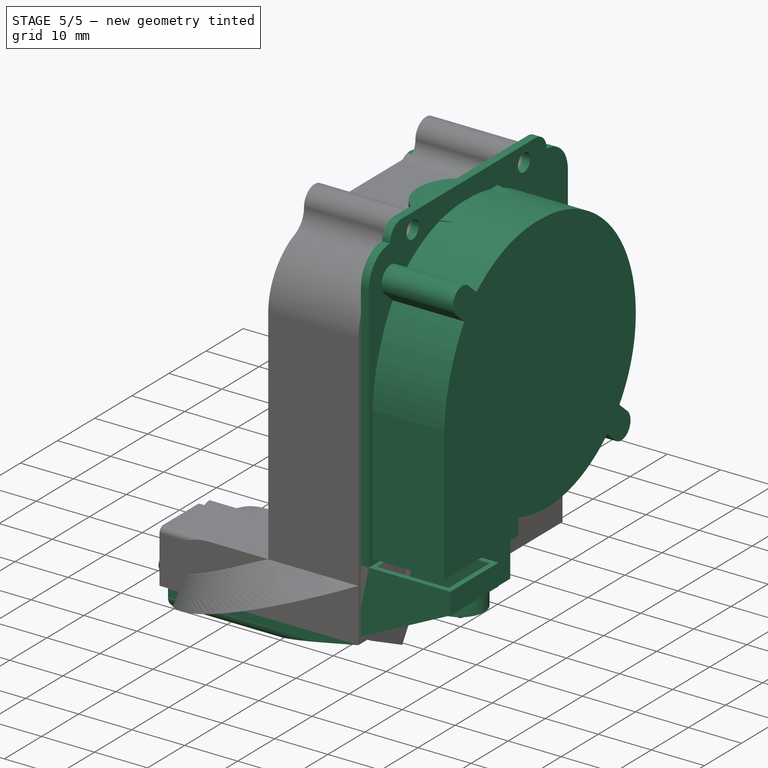
[diagram: stage 5 of 5 — iso view after this stage's code; geometry added in this stage tinted green]
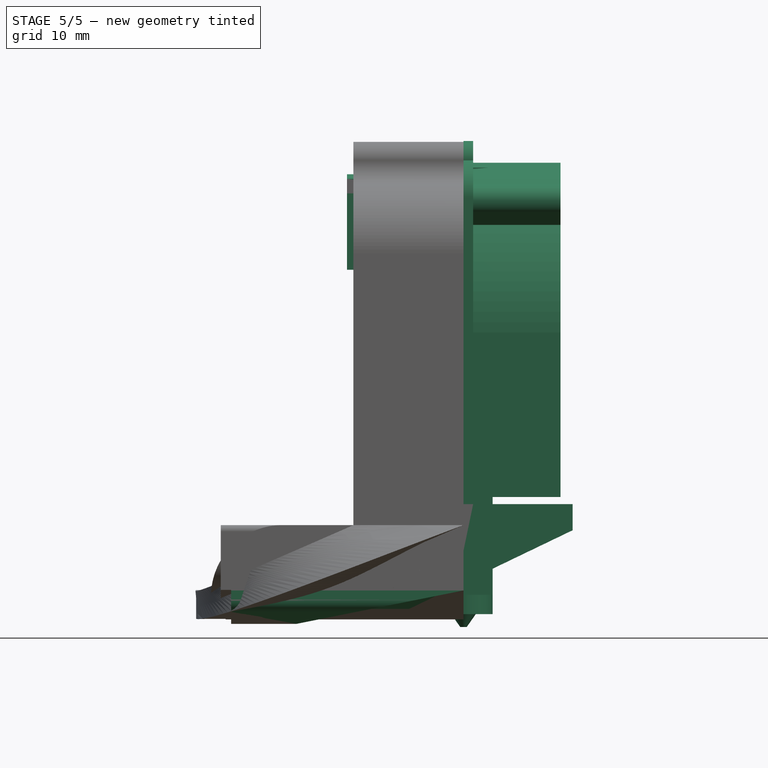
[diagram: stage 5 of 5 — front view after this stage's code; geometry added in this stage tinted green]
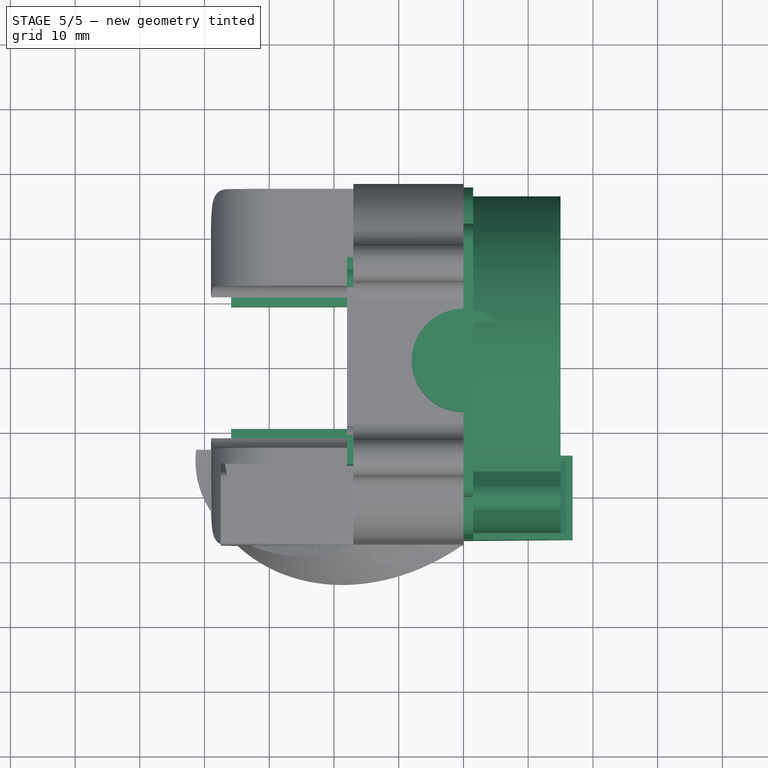
[diagram: stage 5 of 5 — top view after this stage's code; geometry added in this stage tinted green]
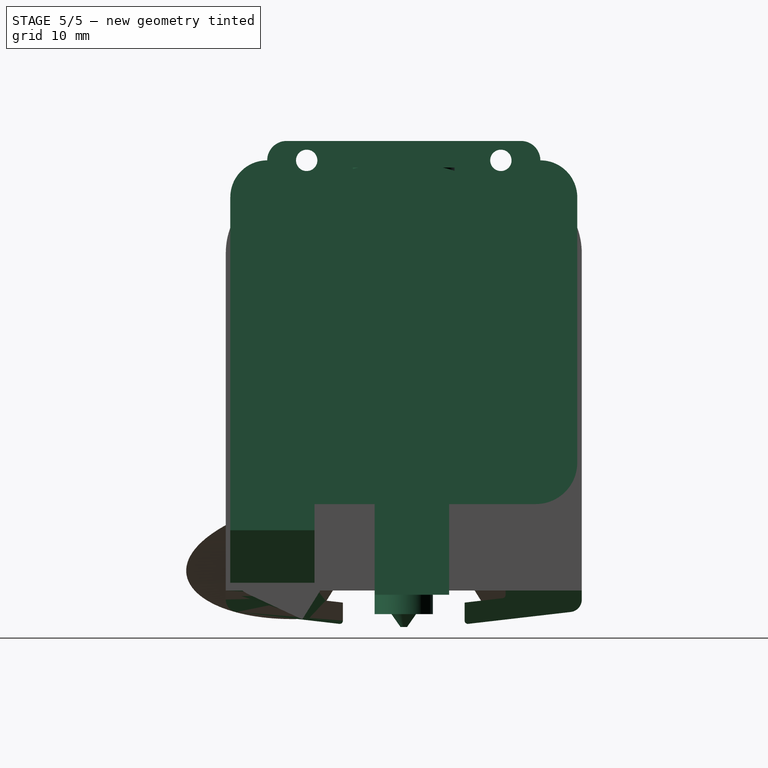
[diagram: stage 5 of 5 — right view after this stage's code; geometry added in this stage tinted green]
FEATURE [Sketcher::SketchObject] Sketch015
  FullyConstrained = true
  MapMode = 5
  Placement = pos=(0,0,0) rot=(0.57735,0.57735,0.57735;2.0944rad)
  Support = -> [YZ_Plane002]
  sketch-geometry (17):
    g0: LineSegment StartX=0 StartY=4 StartZ=0 EndX=8 EndY=4 EndZ=0
    g1: LineSegment StartX=8 StartY=4 StartZ=0 EndX=8 EndY=0 EndZ=0
    g2: LineSegment StartX=8 StartY=0 StartZ=0 EndX=6 EndY=0 EndZ=0
    g3: LineSegment StartX=6 StartY=0 StartZ=0 EndX=6 EndY=-6 EndZ=0
    g4: LineSegment StartX=6 StartY=-6 StartZ=0 EndX=8 EndY=-6 EndZ=0
    g5: LineSegment StartX=8 StartY=-6 StartZ=0 EndX=8 EndY=-12.5 EndZ=0
    g6: LineSegment StartX=8 StartY=-12.5 StartZ=0 EndX=11.15 EndY=-12.5 EndZ=0
    g7: LineSegment StartX=11.15 StartY=-12.5 StartZ=0 EndX=11.15 EndY=-39 EndZ=0
    g8: LineSegment StartX=11.15 StartY=-39 StartZ=0 EndX=3.5 EndY=-39 EndZ=0
    g9: LineSegment StartX=0.5 StartY=-67 StartZ=0 EndX=0 EndY=-67 EndZ=0
    g10: LineSegment StartX=3.5 StartY=-39 StartZ=0 EndX=3.5 EndY=-62 EndZ=0
    g11: LineSegment StartX=0 StartY=4 StartZ=0 EndX=0 EndY=-67 EndZ=0
    g12: GeomPoint X=3.5 Y=-42 Z=0
    g13: LineSegment StartX=3.5 StartY=-62 StartZ=0 EndX=4.5 EndY=-62 EndZ=0
    g14: LineSegment StartX=4.5 StartY=-62 StartZ=0 EndX=4.5 EndY=-65 EndZ=0
    g15: LineSegment StartX=4.5 StartY=-65 StartZ=0 EndX=1.90042 EndY=-65 EndZ=0
    g16: LineSegment StartX=1.90042 StartY=-65 StartZ=0 EndX=0.5 EndY=-67 EndZ=0
  constraints (50):
    c: PointOnObject(g0,g-2)
    c: Horizontal(g0)
    c: Coincident(g1,g0)
    c: Vertical(g1)
    c: Coincident(g2,g1)
    c: Coincident(g3,g2)
    c: Coincident(g4,g3)
    c: Horizontal(g4)
    c: Horizontal(g2)
    c: Distance(g0) = 8
    c: Distance(g1) = 4
    c: Distance(g3) = 6
    c: Distance(g2) = 2
    c: Distance(g4) = 2
    c: Coincident(g5,g4)
    c: Horizontal(g6)
    c: Coincident(g7,g6)
    c: Vertical(g7)
    c: Vertical(g5)
    c: Coincident(g6,g5)
    c: DistanceX(g-2,g6) = 11.15
    c: Coincident(g8,g7)
    c: Horizontal(g8)
    c: DistanceX(g-2,g8) = 3.5
    c: DistanceY(g7,g0) = 43
    c: Distance(g5) = 6.5
    c: PointOnObject(g9,g-2)
    c: Horizontal(g9)
    c: Distance(g9) = 0.5
    c: Coincident(g10,g8)
    c: Vertical(g10)
    c: Coincident(g11,g0)
    c: Coincident(g11,g9)
    c: Vertical(g3)
    c: PointOnObject(g2,g-1)
    c: PointOnObject(g12,g10)
    c: Distance(g12,g8) = 3
    c: Distance(g12,g10) = 20
    c: Coincident(g10,g13)
    c: Horizontal(g13)
    c: Coincident(g13,g14)
    c: Vertical(g14)
    c: Coincident(g14,g15)
    c: Horizontal(g15)
    c: Coincident(g15,g16)
    c: Coincident(g16,g9)
    c: Angle(g16,g15) = 2.18166
    c: Distance(g13) = 1
    c: DistanceY(g9,g13) = 5
    c: Distance(g14) = 3
FEATURE [PartDesign::Revolution] Revolution
  Angle = 360
  Axis = (-2e-16,3e-16,1)
  Base = (0,0,0)
  Placement = pos=(0,0,0) rot=(0.57735,0.57735,0.57735;2.0944rad)
  Profile = -> Sketch015
  ReferenceAxis = -> Sketch015 [V_Axis]
  Reversed = true
FEATURE [Sketcher::SketchObject] Sketch016
  ExternalGeometry = -> [Revolution]
  FullyConstrained = true
  MapMode = 5
  Placement = pos=(0,0,0) rot=(1,0,0;1.5708rad)
  Support = -> [XZ_Plane002]
  sketch-geometry (6):
    g0: LineSegment StartX=-3.5 StartY=-62 StartZ=0 EndX=-15.5 EndY=-62 EndZ=0
    g1: LineSegment StartX=-15.5 StartY=-62 StartZ=0 EndX=-15.5 EndY=-42 EndZ=0
    g2: LineSegment StartX=-15.5 StartY=-42 StartZ=0 EndX=4.5 EndY=-42 EndZ=0
    g3: LineSegment StartX=4.5 StartY=-42 StartZ=0 EndX=4.5 EndY=-62 EndZ=0
    g4: LineSegment StartX=4.5 StartY=-62 StartZ=0 EndX=3.5 EndY=-62 EndZ=0
    g5: LineSegment StartX=-3.5 StartY=-62 StartZ=0 EndX=3.5 EndY=-62 EndZ=0
  constraints (16):
    c: Coincident(g0,g-3)
    c: Horizontal(g0)
    c: Coincident(g1,g0)
    c: Vertical(g1)
    c: Coincident(g2,g1)
    c: Horizontal(g2)
    c: Coincident(g3,g2)
    c: Vertical(g3)
    c: Coincident(g4,g3)
    c: Coincident(g4,g-3)
    c: Horizontal(g4)
    c: Distance(g3) = 20
    c: Distance(g1,g2) = 20
    c: DistanceX(g-2,g0) = -15.5
    c: Coincident(g5,g0)
    c: Coincident(g5,g4)
FEATURE [PartDesign::Pad] Pad006  label="薄"
  BaseFeature = -> Revolution
  Direction = (0,-1,-2e-16)
  Length = 4.5
  Length2 = 10
  Placement = pos=(0,0,0) rot=(0.57735,0.57735,0.57735;2.0944rad)
  Profile = -> Sketch016
  ReferenceAxis = -> Sketch016 [N_Axis]
  Type = 0
FEATURE [PartDesign::Pad] Pad007  label="厚"
  BaseFeature = -> Pad006
  Direction = (0,-1,-2e-16)
  Length = 7
  Length2 = 10
  Placement = pos=(0,0,0) rot=(0.57735,0.57735,0.57735;2.0944rad)
  Profile = -> Sketch016
  ReferenceAxis = -> Sketch016 [N_Axis]
  Reversed = true
  Type = 0
FEATURE [PartDesign::Body] Body002  label="E3DV6火山（玻璃热敏）"
  Group = -> [Sketch015,Revolution,Sketch016,Pad006,Pad007]
  Origin = -> Origin002
  Tip = -> Pad007
FEATURE [Part::Feature] Part__Feature166  label="<unrecoverable-encoding: 13 bytes cea2d18dd09ecebbbfaab9d6... md5=9adbc4b6>A125V003"
  Placement = pos=(23.9,-14.5,21.31) rot=(0,0,-1;1.5708rad)
  shape: bbox 13.5 x 14.59 x 5.62 mm, 42 faces (baked)
FEATURE [Part::Feature] Part__Feature167  label="MGN12H»¬¿002"
  Placement = pos=(0,-19,0) rot=(0,-1,0;1.5708rad)
  shape: bbox 45.4 x 10 x 27 mm, 34 faces (baked)
FEATURE [Part::Feature] Part__Feature169  label="ɢɈ¹ܰ²װ°"
  Placement = pos=(0,-19.5,16.5) rot=(0,0,1;0rad)
  shape: bbox 54 x 39 x 4 mm, 68 faces (baked)
FEATURE [Part::Feature] Part__Feature172  label="同步带压片"
  Placement = pos=(-16,-29,21) rot=(0,0,1;0rad)
  shape: bbox 8 x 16 x 3 mm, 12 faces (baked)
FEATURE [Part::Feature] Part__Feature173  label="同步带压片001"
  Placement = pos=(16,-29,21) rot=(0,1,0;3.14159rad)
  shape: bbox 8 x 16 x 3 mm, 12 faces (baked)
FEATURE [Part::Feature] Part__Feature174  label="42步进电机004"
  Placement = pos=(-3.675,23.5,12.5) rot=(0,0,1;0rad)
  shape: bbox 42.3 x 44.3 x 62 mm, 50 faces (baked)
FEATURE [Part::Feature] Part__Feature175  label="42步进电机支架"
  Placement = pos=(-3.675,23.5,14.5) rot=(0,0,1;0rad)
  shape: bbox 63 x 45 x 40 mm, 42 faces (baked)
FEATURE [Part::Feature] Part__Feature176  label="MGN12H滑筷棯接颁灅住"
  Placement = pos=(0,0,0) rot=(0.57735,-0.57735,-0.57735;2.0944rad)
  shape: bbox 63 x 6 x 28 mm, 64 faces (baked)
FEATURE [Part::Feature] Part__Feature177  label="BMG挤出机"
  Placement = pos=(0,2.35,37) rot=(0,0,1;0rad)
  shape: bbox 58 x 75 x 33.5 mm, 84 faces (baked)
FEATURE [Part::Feature] Part__Feature179  label="内六角平圆头螺钉M3¡Á029"
  Placement = pos=(0,-3,18.5) rot=(1,0,0;1.5708rad)
  shape: bbox 6.17 x 6.17 x 12.2 mm, 24 faces (baked)
FEATURE [Part::Feature] Part__Feature180  label="内六角平圆头螺钉M3¡Á030"
  Placement = pos=(15,-3,18.5) rot=(1,0,0;1.5708rad)
  shape: bbox 6.17 x 6.17 x 12.2 mm, 24 faces (baked)
FEATURE [Part::Feature] Part__Feature178  label="内六角平圆头螺钉M3¡Á028"
  Placement = pos=(-15,-3,18.5) rot=(1,0,0;1.5708rad)
  shape: bbox 6.17 x 6.17 x 12.2 mm, 24 faces (baked)
FEATURE [App::Part] CR10________________________1  label="CR10近程喷嘴模块1"
  Group = -> [Part__Feature166,Part__Feature167,Part__Feature169,Part__Feature172,Part__Feature173,Part__Feature174,Part__Feature175,Part__Feature176,Part__Feature177,Part__Feature178,Part__Feature179,Part__Feature180]
  Origin = -> Origin006
  Placement = pos=(-36.5,0,8.1) rot=(0.57735,0.57735,0.57735;2.0944rad)
FEATURE [Sketcher::SketchObject] Sketch017
  FullyConstrained = true
  MapMode = 5
  Placement = pos=(0,0,0) rot=(0.57735,0.57735,0.57735;2.0944rad)
  Support = -> [YZ_Plane007]
  sketch-geometry (18):
    g0: LineSegment StartX=-16 StartY=2.25 StartZ=0 EndX=-16 EndY=0 EndZ=0
    g1: LineSegment StartX=-16 StartY=0 StartZ=0 EndX=-16 EndY=-5.8 EndZ=0
    g2: LineSegment StartX=-16 StartY=-5.8 StartZ=0 EndX=-16 EndY=-11.8 EndZ=0
    g3: LineSegment StartX=-16 StartY=-11.8 StartZ=0 EndX=16 EndY=-11.8 EndZ=0
    g4: LineSegment StartX=16 StartY=-11.8 StartZ=0 EndX=16 EndY=-5.8 EndZ=0
    g5: LineSegment StartX=16 StartY=-5.8 StartZ=0 EndX=16 EndY=0 EndZ=0
    g6: LineSegment StartX=16 StartY=0 StartZ=0 EndX=16 EndY=2.25 EndZ=0
    g7: Circle CenterX=-7 CenterY=-8.9 CenterZ=0 NormalX=0 NormalY=0 NormalZ=1 AngleXU=0 Radius=1.8
    g8: Circle CenterX=7 CenterY=-8.9 CenterZ=0 NormalX=0 NormalY=0 NormalZ=1 AngleXU=0 Radius=1.8
    g9: Circle CenterX=-12.1 CenterY=-0.2 CenterZ=0 NormalX=0 NormalY=0 NormalZ=1 AngleXU=0 Radius=1.8
    g10: Circle CenterX=12.1 CenterY=-0.2 CenterZ=0 NormalX=0 NormalY=0 NormalZ=1 AngleXU=0 Radius=1.8
    g11: ArcOfCircle CenterX=-12.1 CenterY=-0.2 CenterZ=0 NormalX=0 NormalY=0 NormalZ=1 AngleXU=0 Radius=3.15 StartAngle=0.891123 EndAngle=2.25047
    g12: ArcOfCircle CenterX=12.1 CenterY=-0.2 CenterZ=0 NormalX=0 NormalY=0 NormalZ=1 AngleXU=0 Radius=3.15 StartAngle=0.891123 EndAngle=2.25047
    g13: LineSegment StartX=-14.0799 StartY=2.25 StartZ=0 EndX=-16 EndY=2.25 EndZ=0
    g14: LineSegment StartX=10.1201 StartY=2.25 StartZ=0 EndX=-10.1201 EndY=2.25 EndZ=0
    g15: LineSegment StartX=14.0799 StartY=2.25 StartZ=0 EndX=16 EndY=2.25 EndZ=0
    g16: LineSegment StartX=10.1201 StartY=2.25 StartZ=0 EndX=14.0799 EndY=2.25 EndZ=0
    g17: LineSegment StartX=-14.0799 StartY=2.25 StartZ=0 EndX=-10.1201 EndY=2.25 EndZ=0
  constraints (49):
    c: Vertical(g0)
    c: Coincident(g0,g1)
    c: Vertical(g1)
    c: Coincident(g1,g2)
    c: Vertical(g2)
    c: Coincident(g2,g3)
    c: Coincident(g3,g4)
    c: Vertical(g4)
    c: Coincident(g4,g5)
    c: Vertical(g5)
    c: Coincident(g5,g6)
    c: Vertical(g6)
    c: Coincident(g13,g0)
    c: Equal(g2,g4)
    c: Equal(g5,g1)
    c: Symmetric(g3,g2,g-2)
    c: PointOnObject(g5,g-1)
    c: Distance(g5) = 5.8
    c: Distance(g4) = 6
    c: Equal(g8,g7)
    c: Symmetric(g8,g7,g-2)
    c: Distance(g7,g8) = 14
    c: Diameter(g8) = 3.6
    c: Distance(g8,g3) = 2.9
    c: Symmetric(g10,g9,g-2)
    c: Equal(g10,g9)
    c: Distance(g10,g9) = 24.2
    c: Diameter(g10) = 3.6
    c: DistanceY(g8,g10) = 8.7
    c: Distance(g0) = 2.25
    c: Coincident(g11,g9)
    c: Coincident(g12,g10)
    c: Equal(g12,g11)
    c: Diameter(g12) = 6.3
    c: Coincident(g14,g11)
    c: Coincident(g14,g12)
    c: Distance(g0,g6) = 32
    c: Equal(g6,g0)
    c: Coincident(g15,g12)
    c: Coincident(g15,g6)
    c: Horizontal(g15)
    c: Horizontal(g13)
    c: Coincident(g16,g12)
    c: Coincident(g16,g12)
    c: Horizontal(g16)
    c: Coincident(g17,g11)
    c: Coincident(g17,g11)
    c: Horizontal(g17)
    c: Coincident(g11,g13)
FEATURE [PartDesign::Pad] Pad008
  Direction = (1,-2e-16,3e-16)
  Length = 18
  Length2 = 10
  Placement = pos=(0,0,0) rot=(0.57735,0.57735,0.57735;2.0944rad)
  Profile = -> Sketch017
  ReferenceAxis = -> Sketch017 [N_Axis]
  Reversed = true
  Type = 0
FEATURE [Sketcher::SketchObject] Sketch018
  ExternalGeometry = -> [Pad008]
  FullyConstrained = true
  MapMode = 5
  Placement = pos=(0,0,0) rot=(0.57735,0.57735,0.57735;2.0944rad)
  Support = -> [Pad008]
  sketch-geometry (4):
    g0: LineSegment StartX=-16 StartY=-5.8 StartZ=0 EndX=16 EndY=-5.8 EndZ=0
    g1: LineSegment StartX=16 StartY=-5.8 StartZ=0 EndX=16 EndY=-11.8 EndZ=0
    g2: LineSegment StartX=16 StartY=-11.8 StartZ=0 EndX=-16 EndY=-11.8 EndZ=0
    g3: LineSegment StartX=-16 StartY=-11.8 StartZ=0 EndX=-16 EndY=-5.8 EndZ=0
  constraints (11):
    c: Coincident(g0,g1)
    c: Coincident(g1,g2)
    c: Coincident(g2,g3)
    c: Coincident(g3,g0)
    c: Horizontal(g0)
    c: Horizontal(g2)
    c: Vertical(g1)
    c: Vertical(g3)
    c: Coincident(g-3,g1)
    c: Equal(g2,g-3)
    c: Distance(g1) = 6
FEATURE [PartDesign::Pocket] Pocket
  BaseFeature = -> Pad008
  Direction = (-1,4e-16,-4e-16)
  Length = 10.5
  Length2 = 5
  Placement = pos=(0,0,0) rot=(0.57735,0.57735,0.57735;2.0944rad)
  Profile = -> Sketch018
  ReferenceAxis = -> Sketch018 [N_Axis]
  Type = 0
FEATURE [Sketcher::SketchObject] Sketch019
  ExternalGeometry = -> [Pocket]
  FullyConstrained = true
  MapMode = 5
  Placement = pos=(-6e-16,1e-15,2.25) rot=(0,0,-1;1.5708rad)
  Support = -> [Pocket]
  sketch-geometry (2):
    g0: ArcOfCircle CenterX=0 CenterY=2e-15 CenterZ=0 NormalX=0 NormalY=0 NormalZ=1 AngleXU=0 Radius=6.2 StartAngle=3.14159 EndAngle=6.28319
    g1: LineSegment StartX=-6.2 StartY=2.8e-15 StartZ=0 EndX=6.2 EndY=5e-16 EndZ=0
  constraints (7):
    c: PointOnObject(g0,g-2)
    c: PointOnObject(g0,g-3)
    c: PointOnObject(g0,g-3)
    c: PointOnObject(g0,g-3)
    c: Coincident(g1,g0)
    c: Coincident(g1,g0)
    c: Diameter(g0) = 12.4
FEATURE [PartDesign::Pocket] Pocket001
  BaseFeature = -> Pocket
  Direction = (7e-16,-7e-16,-1)
  Length = 5
  Length2 = 5
  Placement = pos=(0,0,0) rot=(0.57735,0.57735,0.57735;2.0944rad)
  Profile = -> Sketch019
  ReferenceAxis = -> Sketch019 [N_Axis]
  Type = 1
FEATURE [Sketcher::SketchObject] Sketch020
  ExternalGeometry = -> [Pocket001]
  FullyConstrained = true
  MapMode = 5
  Placement = pos=(-6e-16,1e-15,2.25) rot=(0,0,-1;1.5708rad)
  Support = -> [Pocket001]
  sketch-geometry (3):
    g0: LineSegment StartX=-6.2 StartY=2.4e-15 StartZ=0 EndX=6.2 EndY=-1.1e-15 EndZ=0
    g1: ArcOfCircle CenterX=0 CenterY=6e-16 CenterZ=0 NormalX=0 NormalY=0 NormalZ=1 AngleXU=0 Radius=8.2 StartAngle=3.14159 EndAngle=6.28319
    g2: LineSegment StartX=-8.2 StartY=2.9e-15 StartZ=0 EndX=8.2 EndY=-1.4e-15 EndZ=0
  constraints (9):
    c: Coincident(g0,g-4)
    c: Coincident(g0,g-3)
    c: PointOnObject(g1,g-2)
    c: PointOnObject(g1,g-3)
    c: PointOnObject(g1,g-4)
    c: PointOnObject(g1,g0)
    c: Diameter(g1) = 16.4
    c: Coincident(g2,g1)
    c: Coincident(g2,g1)
FEATURE [PartDesign::Pocket] Pocket002
  BaseFeature = -> Pocket001
  Direction = (1.1e-15,-8e-16,-1)
  Length = 2.25
  Length2 = 5
  Placement = pos=(0,0,0) rot=(0.57735,0.57735,0.57735;2.0944rad)
  Profile = -> Sketch020
  ReferenceAxis = -> Sketch020 [N_Axis]
  Type = 0
FEATURE [Sketcher::SketchObject] Sketch
  FullyConstrained = true
  MapMode = 5
  Placement = pos=(0,0,0) rot=(0.57735,0.57735,0.57735;2.0944rad)
  Support = -> [Pocket002]
  sketch-geometry (4):
    g0: LineSegment StartX=-19.6231 StartY=8.25432 StartZ=0 EndX=19.6394 EndY=8.25432 EndZ=0
    g1: LineSegment StartX=19.6394 StartY=8.25432 StartZ=0 EndX=19.6394 EndY=-15.6805 EndZ=0
    g2: LineSegment StartX=19.6394 StartY=-15.6805 StartZ=0 EndX=-19.6231 EndY=-15.6805 EndZ=0
    g3: LineSegment StartX=-19.6231 StartY=-15.6805 StartZ=0 EndX=-19.6231 EndY=8.25432 EndZ=0
  constraints (12):
    c: Coincident(g0,g1)
    c: Coincident(g1,g2)
    c: Coincident(g2,g3)
    c: Coincident(g3,g0)
    c: Horizontal(g0)
    c: Horizontal(g2)
    c: Vertical(g1)
    c: Vertical(g3)
    c: DistanceX(g0) = -19.6231
    c: DistanceY(g0) = 8.25432
    c: DistanceX(g1) = 19.6394
    c: DistanceY(g1) = -15.6805
FEATURE [PartDesign::Pocket] Pocket003
  BaseFeature = -> Pocket002
  Direction = (-1,1.1e-15,-7e-16)
  Length = 0.5
  Length2 = 5
  Placement = pos=(0,0,0) rot=(0.57735,0.57735,0.57735;2.0944rad)
  Profile = -> Sketch
  ReferenceAxis = -> Sketch [N_Axis]
  Type = 0
FEATURE [PartDesign::Body] Body003  label="贴墙端"
  Group = -> [Sketch017,Pad008,Sketch018,Pocket,Sketch019,Pocket001,Sketch020,Pocket002,Sketch,Pocket003]
  Origin = -> Origin007
  Tip = -> Pocket003
FEATURE [Part::Feature] Part__Feature  label="5015µ¼·耚"
  Placement = pos=(22.5,0,-13.2) rot=(0.57735,0.57735,0.57735;2.0944rad)
  shape: bbox 38.35 x 55 x 131 mm, 194 faces (baked)
FEATURE [Sketcher::SketchObject] Sketch021
  FullyConstrained = false
  MapMode = 5
  Placement = pos=(0,0,0) rot=(0.57735,0.57735,0.57735;2.0944rad)
  Support = -> [YZ_Plane]
  sketch-geometry (17):
    g0: LineSegment StartX=-25.8 StartY=-46.9 StartZ=0 EndX=-5.8 EndY=-46.9 EndZ=0
    g1: LineSegment StartX=-5.8 StartY=-46.9 StartZ=0 EndX=-5.8 EndY=-43.8256 EndZ=0
    g2: LineSegment StartX=-25.8 StartY=-46.9 StartZ=0 EndX=-25.8 EndY=-21.5 EndZ=0
    g3: ArcOfCircle CenterX=1.9 CenterY=-21.2 CenterZ=0 NormalX=0 NormalY=0 NormalZ=1 AngleXU=0 Radius=23.9 StartAngle=4.38436 EndAngle=5.45674
    g4: ArcOfCircle CenterX=1.9 CenterY=-21.2 CenterZ=0 NormalX=0 NormalY=0 NormalZ=1 AngleXU=0 Radius=23.9 StartAngle=5.66632 EndAngle=6.28319
    g5: LineSegment StartX=21.3952 StartY=-35.0256 StartZ=0 EndX=23.5516 EndY=-36.9232 EndZ=0
    g6: LineSegment StartX=18.0921 StartY=-38.7792 StartZ=0 EndX=20.2484 EndY=-40.6768 EndZ=0
    g7: LineSegment StartX=-20.3952 StartY=-4.87439 StartZ=0 EndX=-22.5516 EndY=-2.97678 EndZ=0
    g8: ArcOfCircle CenterX=-20.9 CenterY=-1.1 CenterZ=0 NormalX=0 NormalY=0 NormalZ=1 AngleXU=0 Radius=2.5 StartAngle=0.849141 EndAngle=3.99073
    g9: ArcOfCircle CenterX=21.9 CenterY=-38.8 CenterZ=0 NormalX=0 NormalY=0 NormalZ=1 AngleXU=0 Radius=2.5 StartAngle=3.99073 EndAngle=7.13233
    g10: LineSegment StartX=-19.2484 StartY=0.776784 StartZ=0 EndX=-17.0921 EndY=-1.12083 EndZ=0
    g11: ArcOfCircle CenterX=0.0547185 CenterY=-21.0457 CenterZ=0 NormalX=0 NormalY=0 NormalZ=1 AngleXU=0 Radius=25.7457 StartAngle=6.27719 EndAngle=7.85611
    g12: ArcOfCircle CenterX=-1.06983 CenterY=-20.1632 CenterZ=0 NormalX=0 NormalY=0 NormalZ=1 AngleXU=0 Radius=24.8862 StartAngle=1.52779 EndAngle=2.27027
    g13: ArcOfCircle CenterX=7.23359 CenterY=-23.0475 CenterZ=0 NormalX=0 NormalY=0 NormalZ=1 AngleXU=0 Radius=33.0698 StartAngle=2.55978 EndAngle=3.09478
    g14: GeomPoint X=21.9 Y=-41.3 Z=0
    g15: LineSegment StartX=25.8 StartY=-21.2 StartZ=0 EndX=0 EndY=-21.2 EndZ=0
    g16: LineSegment StartX=-25.8 StartY=-21.5 StartZ=0 EndX=0 EndY=-21.5 EndZ=0
  constraints (49):
    c: Coincident(g0,g1)
    c: Vertical(g1)
    c: Coincident(g0,g2)
    c: Distance(g0) = 20
    c: Coincident(g4,g3)
    c: Distance(g2) = 25.4
    c: Coincident(g4,g5)
    c: Coincident(g3,g6)
    c: Parallel(g6,g5)
    c: Coincident(g1,g3)
    c: Horizontal(g0)
    c: Vertical(g2)
    c: DistanceY(g3) = -21.2
    c: Tangent(g9,g5) = 1.5708
    c: Tangent(g8,g7) = 1.5708
    c: Tangent(g9,g6) = -1.5708
    c: DistanceX(g8,g3) = 22.8
    c: Equal(g5,g6)
    c: DistanceX(g0,g3) = 27.7
    c: DistanceX(g3,g9) = 20
    c: DistanceY(g3,g8) = 20.1
    c: Equal(g9,g8)
    c: Parallel(g7,g10)
    c: Equal(g10,g7)
    c: Tangent(g10,g8) = 1.5708
    c: Equal(g3,g4)
    c: Coincident(g11,g4)
    c: Coincident(g12,g11)
    c: Coincident(g12,g10)
    c: DistanceY(g0,g11) = 51.6
    c: PointOnObject(g11,g-2)
    c: Horizontal(g4,g3)
    c: DistanceX(g0,g4) = 51.6
    c: DistanceY(g9,g4) = 17.6
    c: Parallel(g7,g6)
    c: Coincident(g13,g7)
    c: Coincident(g13,g2)
    c: Diameter(g9) = 5
    c: Equal(g6,g7)
    c: PointOnObject(g14,g9)
    c: Vertical(g14,g9)
    c: DistanceY(g0,g14) = 5.6
    c: Coincident(g15,g4)
    c: PointOnObject(g15,g-2)
    c: Horizontal(g15)
    c: Coincident(g16,g2)
    c: PointOnObject(g16,g-2)
    c: Horizontal(g16)
    c: Equal(g15,g16)
FEATURE [PartDesign::Pad] Pad
  Direction = (1,-2e-16,3e-16)
  Length = 15
  Length2 = 10
  Placement = pos=(0,0,0) rot=(0.57735,0.57735,0.57735;2.0944rad)
  Profile = -> Sketch021
  ReferenceAxis = -> Sketch021 [N_Axis]
  Type = 0
FEATURE [PartDesign::Body] Body  label="5015风扇"
  Group = -> [Sketch021,Pad]
  Origin = -> Origin
  Placement = pos=(14,0,0) rot=(0,0,1;0rad)
  Tip = -> Pad
FEATURE [Sketcher::SketchObject] Sketch022
  FullyConstrained = true
  MapMode = 5
  Placement = pos=(0,0,0) rot=(0.57735,0.57735,0.57735;2.0944rad)
  Support = -> [YZ_Plane008]
  sketch-geometry (11):
    g0: Circle CenterX=15 CenterY=5.1 CenterZ=0 NormalX=0 NormalY=0 NormalZ=1 AngleXU=0 Radius=1.65
    g1: Circle CenterX=-15 CenterY=5.1 CenterZ=0 NormalX=0 NormalY=0 NormalZ=1 AngleXU=0 Radius=1.65
    g2: LineSegment StartX=-18.1 StartY=8.1 StartZ=0 EndX=18.1 EndY=8.1 EndZ=0
    g3: LineSegment StartX=26.8 StartY=-0.6 StartZ=0 EndX=26.8 EndY=-41.6 EndZ=0
    g4: LineSegment StartX=20.4 StartY=-48 StartZ=0 EndX=-26.8 EndY=-48 EndZ=0
    g5: LineSegment StartX=-26.8 StartY=-48 StartZ=0 EndX=-26.8 EndY=-0.6 EndZ=0
    g6: ArcOfCircle CenterX=-18.1 CenterY=5.1 CenterZ=0 NormalX=0 NormalY=0 NormalZ=1 AngleXU=0 Radius=3 StartAngle=1.5708 EndAngle=3.14159
    g7: ArcOfCircle CenterX=18.1 CenterY=5.1 CenterZ=0 NormalX=0 NormalY=0 NormalZ=1 AngleXU=0 Radius=3 StartAngle=0 EndAngle=1.5708
    g8: ArcOfCircle CenterX=21.1 CenterY=-0.6 CenterZ=0 NormalX=0 NormalY=0 NormalZ=1 AngleXU=0 Radius=5.7 StartAngle=0 EndAngle=1.5708
    g9: ArcOfCircle CenterX=-21.1 CenterY=-0.6 CenterZ=0 NormalX=0 NormalY=0 NormalZ=1 AngleXU=0 Radius=5.7 StartAngle=1.5708 EndAngle=3.14159
    g10: ArcOfCircle CenterX=20.4 CenterY=-41.6 CenterZ=0 NormalX=0 NormalY=0 NormalZ=1 AngleXU=0 Radius=6.4 StartAngle=4.71239 EndAngle=6.28319
  constraints (31):
    c: Symmetric(g1,g0,g-2)
    c: Diameter(g0) = 3.3
    c: DistanceX(g0) = 15
    c: DistanceY(g0) = 5.1
    c: Equal(g1,g0)
    c: Coincident(g4,g5)
    c: Horizontal(g2)
    c: Vertical(g3)
    c: Vertical(g5)
    c: Horizontal(g6,g1)
    c: Horizontal(g6,g6)
    c: Vertical(g7,g7)
    c: Horizontal(g7,g7)
    c: Symmetric(g7,g6,g-2)
    c: DistanceX(g6,g-1) = 18.1
    c: Coincident(g2,g7)
    c: Tangent(g2,g6) = 1.5708
    c: DistanceY(g-1,g2) = 8.1
    c: Tangent(g3,g8) = 1.5708
    c: Tangent(g5,g9) = 1.5708
    c: Equal(g9,g8)
    c: Coincident(g7,g8)
    c: Coincident(g6,g9)
    c: Vertical(g8,g8)
    c: Tangent(g3,g10) = 1.5708
    c: Tangent(g4,g10) = 1.5708
    c: Horizontal(g4)
    c: Horizontal(g8,g9)
    c: DistanceX(g4,g3) = 53.6
    c: Distance(g5) = 47.4
    c: Diameter(g10) = 12.8
FEATURE [PartDesign::Pad] Pad009
  Direction = (1,-2e-16,3e-16)
  Length = 1.5
  Length2 = 10
  Placement = pos=(0,0,0) rot=(0.57735,0.57735,0.57735;2.0944rad)
  Profile = -> Sketch022
  ReferenceAxis = -> Sketch022 [N_Axis]
  Type = 0
FEATURE [Sketcher::SketchObject] Sketch023
  AttachmentOffset = pos=(0,0,0) rot=(0,0,1;1.5708rad)
  ExternalGeometry = -> [Pad009]
  FullyConstrained = false
  MapMode = 5
  Placement = pos=(-1.18e-14,-26.8,5.9e-15) rot=(-1,0,0;4.71239rad)
  Support = -> [Pad009]
  sketch-geometry (6):
    g0: LineSegment StartX=3.09e-14 StartY=-48 StartZ=0 EndX=16.8555 EndY=-48 EndZ=0
    g1: LineSegment StartX=16.8555 StartY=-48 StartZ=0 EndX=16.8555 EndY=-52.0489 EndZ=0
    g2: LineSegment StartX=16.8555 StartY=-52.0489 StartZ=0 EndX=-1.14013 EndY=-60.7042 EndZ=0
    g3: LineSegment StartX=3.09e-14 StartY=-48 StartZ=0 EndX=-21.3063 EndY=-58.2476 EndZ=0
    g4: LineSegment StartX=-21.3063 StartY=-58.2476 StartZ=0 EndX=-21.3063 EndY=-60.7042 EndZ=0
    g5: LineSegment StartX=-21.3063 StartY=-60.7042 StartZ=0 EndX=-1.14013 EndY=-60.7042 EndZ=0
  constraints (12):
    c: Horizontal(g0)
    c: Coincident(g0,g1)
    c: Coincident(g1,g2)
    c: Vertical(g1)
    c: Parallel(g3,g2)
    c: Coincident(g3,g4)
    c: Vertical(g4)
    c: Coincident(g4,g5)
    c: Coincident(g5,g2)
    c: Horizontal(g5)
    c: Coincident(g3,g0)
    c: Coincident(g0,g-3)
FEATURE [PartDesign::Pad] Pad010
  BaseFeature = -> Pad009
  Direction = (-2e-16,-1,2e-16)
  Length = 13
  Length2 = 10
  Placement = pos=(0,0,0) rot=(0.57735,0.57735,0.57735;2.0944rad)
  Profile = -> Sketch023
  ReferenceAxis = -> Sketch023 [N_Axis]
  Reversed = true
  Type = 0
FEATURE [Sketcher::SketchObject] Sketch024
  AttachmentOffset = pos=(0,0,0) rot=(0,0,1;3.14159rad)
  ExternalGeometry = -> [Pad010]
  FullyConstrained = false
  MapMode = 5
  Placement = pos=(-21.3063,5.1e-15,-3e-15) rot=(-0.57735,0.57735,0.57735;4.18879rad)
  Support = -> [Pad010]
  sketch-geometry (5):
    g0: LineSegment StartX=13.8 StartY=-60.7042 StartZ=0 EndX=12.0885 EndY=-62.9261 EndZ=0
    g1: LineSegment StartX=13.8 StartY=-60.7042 StartZ=0 EndX=26.8 EndY=-60.7042 EndZ=0
    g2: LineSegment StartX=26.8 StartY=-60.7042 StartZ=0 EndX=26.8 EndY=-61.6413 EndZ=0
    g3: LineSegment StartX=26.8 StartY=-61.6413 StartZ=0 EndX=14.6694 EndY=-65.6868 EndZ=0
    g4: LineSegment StartX=14.6694 StartY=-65.6868 StartZ=0 EndX=12.0885 EndY=-62.9261 EndZ=0
  constraints (8):
    c: Coincident(g0,g1)
    c: Coincident(g1,g2)
    c: Vertical(g2)
    c: Coincident(g2,g3)
    c: Coincident(g3,g4)
    c: Coincident(g4,g0)
    c: Coincident(g0,g-3)
    c: Coincident(g1,g-3)
FEATURE [PartDesign::Pad] Pad011
  BaseFeature = -> Pad010
  Direction = (-1,2e-16,-2e-16)
  Length = 10
  Length2 = 10
  Placement = pos=(0,0,0) rot=(0.57735,0.57735,0.57735;2.0944rad)
  Profile = -> Sketch024
  ReferenceAxis = -> Sketch024 [N_Axis]
  Reversed = true
  Type = 3
  UpToFace = -> Pad010 [Face20]
FEATURE [Sketcher::SketchObject] Sketch025
  AttachmentOffset = pos=(0,0,-1) rot=(0,0,1;3.14159rad)
  ExternalGeometry = -> [Pad011]
  FullyConstrained = false
  MapMode = 5
  Placement = pos=(-20.3063,5.4e-15,-1e-15) rot=(-0.57735,0.57735,0.57735;4.18879rad)
  Support = -> [Pad011]
  sketch-geometry (11):
    g0: LineSegment StartX=14.8 StartY=-61.0447 StartZ=0 EndX=12.7805 EndY=-63.6664 EndZ=0
    g1: LineSegment StartX=12.7805 StartY=-63.6664 StartZ=0 EndX=13.9181 EndY=-64.8832 EndZ=0
    g2: LineSegment StartX=13.9181 StartY=-64.8832 StartZ=0 EndX=25.8 EndY=-60.9206 EndZ=0
    g3: LineSegment StartX=25.8 StartY=-60.9206 StartZ=0 EndX=25.8 EndY=-59.2476 EndZ=0
    g4: LineSegment StartX=25.8 StartY=-59.2476 StartZ=0 EndX=14.8 EndY=-59.2476 EndZ=0
    g5: LineSegment StartX=14.8 StartY=-59.2476 StartZ=0 EndX=14.8 EndY=-61.0447 EndZ=0
    g6: LineSegment StartX=18.3057 StartY=-63.4199 StartZ=0 EndX=18.6221 EndY=-64.3686 EndZ=0
    g7: LineSegment StartX=13.3186 StartY=-61.3291 StartZ=0 EndX=14.1109 EndY=-61.9394 EndZ=0
    g8: LineSegment StartX=24.8206 StartY=-59.2476 StartZ=0 EndX=24.8206 EndY=-58.2476 EndZ=0
    g9: LineSegment StartX=13.8 StartY=-59.294 StartZ=0 EndX=14.8 EndY=-59.294 EndZ=0
    g10: LineSegment StartX=25.8 StartY=-59.9814 StartZ=0 EndX=26.8 EndY=-59.9814 EndZ=0
  constraints (32):
    c: Coincident(g0,g1)
    c: Coincident(g1,g2)
    c: Coincident(g2,g3)
    c: Vertical(g3)
    c: Coincident(g3,g4)
    c: Horizontal(g4)
    c: Coincident(g4,g5)
    c: Vertical(g5)
    c: Coincident(g0,g5)
    c: Parallel(g0,g-4)
    c: Parallel(g2,g-6)
    c: PointOnObject(g6,g2)
    c: PointOnObject(g6,g-6)
    c: Perpendicular(g2,g6)
    c: PointOnObject(g7,g-4)
    c: PointOnObject(g7,g0)
    c: PointOnObject(g8,g4)
    c: PointOnObject(g8,g-3)
    c: Vertical(g8)
    c: Perpendicular(g7,g0)
    c: PointOnObject(g9,g-7)
    c: PointOnObject(g9,g5)
    c: Horizontal(g9)
    c: PointOnObject(g10,g3)
    c: PointOnObject(g10,g-8)
    c: Perpendicular(g10,g-8)
    c: Equal(g10,g8)
    c: Equal(g8,g9)
    c: Equal(g9,g7)
    c: Distance(g6) = 1
    c: Tangent(g1,g-5)
    c: Equal(g6,g10)
FEATURE [PartDesign::Pocket] Pocket004
  BaseFeature = -> Pad011
  Direction = (1,-2e-16,2e-16)
  Length = 0
  Length2 = 5
  Offset = -2.2
  Placement = pos=(0,0,0) rot=(0.57735,0.57735,0.57735;2.0944rad)
  Profile = -> Sketch025
  ReferenceAxis = -> Sketch025 [N_Axis]
  Type = 3
  UpToFace = -> Pad011 [Face20]
FEATURE [Sketcher::SketchObject] Sketch026
  AttachmentOffset = pos=(0,0,-1) rot=(0,0,1;1.5708rad)
  ExternalGeometry = -> [Pocket004]
  FullyConstrained = false
  MapMode = 5
  Placement = pos=(-6.7e-15,-25.8,7.3e-15) rot=(1,0,0;1.5708rad)
  Support = -> [Pocket004]
  sketch-geometry (11):
    g0: LineSegment StartX=2.30712 StartY=-48 StartZ=0 EndX=15.8555 EndY=-48 EndZ=0
    g1: LineSegment StartX=15.8555 StartY=-48 StartZ=0 EndX=15.8555 EndY=-51.4202 EndZ=0
    g2: LineSegment StartX=15.8555 StartY=-51.4202 StartZ=0 EndX=-3.31638 EndY=-60.6413 EndZ=0
    g3: LineSegment StartX=-3.31638 StartY=-60.6413 StartZ=0 EndX=-20.3063 EndY=-60.6413 EndZ=0
    g4: LineSegment StartX=2.30712 StartY=-48 StartZ=0 EndX=-20.3063 EndY=-58.8763 EndZ=0
    g5: LineSegment StartX=-20.3063 StartY=-58.8763 StartZ=0 EndX=-20.3063 EndY=-60.6413 EndZ=0
    g6: LineSegment StartX=-5.43329 StartY=-50.6132 StartZ=0 EndX=-4.99985 EndY=-51.5144 EndZ=0
    g7: LineSegment StartX=15.8555 StartY=-50.3449 StartZ=0 EndX=16.8555 EndY=-50.3449 EndZ=0
    g8: LineSegment StartX=11.1388 StartY=-54.7984 StartZ=0 EndX=10.7054 EndY=-53.8972 EndZ=0
    g9: LineSegment StartX=-9.4406 StartY=-60.6413 StartZ=0 EndX=-9.4406 EndY=-61.6413 EndZ=0
    g10: LineSegment StartX=-21.3063 StartY=-60.0673 StartZ=0 EndX=-20.3063 EndY=-60.0673 EndZ=0
  constraints (32):
    c: Coincident(g0,g1)
    c: Vertical(g1)
    c: Coincident(g1,g2)
    c: Coincident(g2,g3)
    c: Horizontal(g3)
    c: Coincident(g0,g4)
    c: Coincident(g4,g5)
    c: Coincident(g5,g3)
    c: Vertical(g5)
    c: PointOnObject(g6,g-8)
    c: PointOnObject(g6,g4)
    c: PointOnObject(g7,g-4)
    c: PointOnObject(g8,g-5)
    c: PointOnObject(g8,g2)
    c: PointOnObject(g9,g3)
    c: PointOnObject(g9,g-6)
    c: PointOnObject(g10,g-7)
    c: PointOnObject(g10,g5)
    c: Horizontal(g10)
    c: Perpendicular(g9,g3)
    c: Perpendicular(g4,g6)
    c: Parallel(g4,g-8)
    c: Parallel(g2,g-5)
    c: Perpendicular(g-4,g7)
    c: Perpendicular(g-5,g8)
    c: PointOnObject(g7,g1)
    c: Tangent(g0,g-3)
    c: Equal(g7,g8)
    c: Equal(g8,g9)
    c: Equal(g9,g6)
    c: Equal(g6,g10)
    c: Distance(g7) = 1
FEATURE [PartDesign::Pocket] Pocket005
  BaseFeature = -> Pocket004
  Direction = (3e-16,1,-3e-16)
  Length = 0
  Length2 = 5
  Offset = -1
  Placement = pos=(0,0,0) rot=(0.57735,0.57735,0.57735;2.0944rad)
  Profile = -> Sketch026
  ReferenceAxis = -> Sketch026 [N_Axis]
  Type = 3
  UpToFace = -> Pocket004 [Face17]
FEATURE [PartDesign::Body] Body004  label="风扇安装座-废品1"
  Group = -> [Sketch022,Pad009,Sketch023,Pad010,Sketch024,Pad011,Sketch025,Pocket004,Sketch026,Pocket005]
  Origin = -> Origin008
  Placement = pos=(14,0,0) rot=(0,0,1;0rad)
  Tip = -> Pocket005
FEATURE [Sketcher::SketchObject] Sketch027
  FullyConstrained = true
  MapMode = 5
  Placement = pos=(0,0,0) rot=(0.57735,0.57735,0.57735;2.0944rad)
  Support = -> [YZ_Plane009]
  sketch-geometry (14):
    g0: Circle CenterX=15 CenterY=5.1 CenterZ=0 NormalX=0 NormalY=0 NormalZ=1 AngleXU=0 Radius=1.65
    g1: Circle CenterX=-15 CenterY=5.1 CenterZ=0 NormalX=0 NormalY=0 NormalZ=1 AngleXU=0 Radius=1.65
    g2: LineSegment StartX=27.5 StartY=-9.25366 StartZ=0 EndX=27.5 EndY=-51.25 EndZ=0
    g3: LineSegment StartX=27.5 StartY=-51.25 StartZ=0 EndX=-27.5 EndY=-51.25 EndZ=0
    g4: LineSegment StartX=-27.5 StartY=-51.25 StartZ=0 EndX=-27.5 EndY=-9.25366 EndZ=0
    g5: ArcOfCircle CenterX=-16 CenterY=-9.25366 CenterZ=0 NormalX=0 NormalY=0 NormalZ=1 AngleXU=0 Radius=11.5 StartAngle=1.9578 EndAngle=3.14159
    g6: ArcOfCircle CenterX=16 CenterY=-9.25366 CenterZ=0 NormalX=0 NormalY=0 NormalZ=1 AngleXU=0 Radius=11.5 StartAngle=1e-16 EndAngle=1.18379
    g7: ArcOfCircle CenterX=-15 CenterY=5.1 CenterZ=0 NormalX=0 NormalY=0 NormalZ=1 AngleXU=0 Radius=2.85 StartAngle=2e-16 EndAngle=3.14159
    g8: ArcOfCircle CenterX=15 CenterY=5.1 CenterZ=0 NormalX=0 NormalY=0 NormalZ=1 AngleXU=0 Radius=2.85 StartAngle=0 EndAngle=3.14159
    g9: ArcOfCircle CenterX=9.3 CenterY=5.1 CenterZ=0 NormalX=0 NormalY=0 NormalZ=1 AngleXU=0 Radius=2.85 StartAngle=4.71239 EndAngle=6.28319
    g10: ArcOfCircle CenterX=21.85 CenterY=5.1 CenterZ=0 NormalX=0 NormalY=0 NormalZ=1 AngleXU=0 Radius=4 StartAngle=3.14159 EndAngle=4.32538
    g11: ArcOfCircle CenterX=-9.3 CenterY=5.1 CenterZ=0 NormalX=0 NormalY=0 NormalZ=1 AngleXU=0 Radius=2.85 StartAngle=3.14159 EndAngle=4.71239
    g12: ArcOfCircle CenterX=-21.85 CenterY=5.1 CenterZ=0 NormalX=0 NormalY=0 NormalZ=1 AngleXU=0 Radius=4 StartAngle=5.0994 EndAngle=6.28319
    g13: LineSegment StartX=-9.3 StartY=2.25 StartZ=0 EndX=9.3 EndY=2.25 EndZ=0
  constraints (36):
    c: Symmetric(g1,g0,g-2)
    c: Diameter(g0) = 3.3
    c: DistanceX(g0) = 15
    c: DistanceY(g0) = 5.1
    c: Equal(g1,g0)
    c: Coincident(g3,g4)
    c: Vertical(g2)
    c: Vertical(g4)
    c: Coincident(g2,g3)
    c: Equal(g6,g5)
    c: Tangent(g6,g2) = 1.5708
    c: Tangent(g5,g4) = 1.5708
    c: Symmetric(g2,g3,g-2)
    c: Distance(g3) = 55
    c: Radius(g6) = 11.5
    c: Coincident(g7,g1)
    c: Coincident(g8,g0)
    c: Equal(g8,g7)
    c: Horizontal(g9,g8)
    c: Horizontal(g11,g7)
    c: Horizontal(g12,g7)
    c: Tangent(g13,g11) = -1.5708
    c: Tangent(g5,g12) = 1.5708
    c: Tangent(g6,g10) = 1.5708
    c: Diameter(g10) = 8
    c: Diameter(g9) = 5.7
    c: Tangent(g9,g13) = -1.5708
    c: Tangent(g8,g9) = 1.5708
    c: Tangent(g8,g10) = 1.5708
    c: Diameter(g11) = 5.7
    c: Equal(g12,g10)
    c: Tangent(g7,g12) = 1.5708
    c: Tangent(g7,g11) = 1.5708
    c: Diameter(g8) = 5.7
    c: Horizontal(g8,g8)
    c: DistanceY(g2,g9) = 53.5
FEATURE [PartDesign::Pad] Pad012
  Direction = (1,-2e-16,3e-16)
  Length = 17
  Length2 = 10
  Placement = pos=(0,0,0) rot=(0.57735,0.57735,0.57735;2.0944rad)
  Profile = -> Sketch027
  ReferenceAxis = -> Sketch027 [N_Axis]
  Reversed = true
  Type = 0
FEATURE [Sketcher::SketchObject] Sketch028
  AttachmentOffset = pos=(0,0,0) rot=(0,0,1;3.14159rad)
  ExternalGeometry = -> [Pad012]
  FullyConstrained = true
  MapMode = 5
  Placement = pos=(-17,3.7e-15,-3.7e-15) rot=(0.57735,-0.57735,-0.57735;2.0944rad)
  Support = -> [Pad012]
  sketch-geometry (6):
    g0: LineSegment StartX=-26 StartY=-9.25366 StartZ=0 EndX=-26 EndY=-51.25 EndZ=0
    g1: LineSegment StartX=-26 StartY=-51.25 StartZ=0 EndX=26 EndY=-51.25 EndZ=0
    g2: LineSegment StartX=26 StartY=-51.25 StartZ=0 EndX=26 EndY=-9.25366 EndZ=0
    g3: LineSegment StartX=-16 StartY=0.746342 StartZ=0 EndX=16 EndY=0.746342 EndZ=0
    g4: ArcOfCircle CenterX=-16 CenterY=-9.25366 CenterZ=0 NormalX=0 NormalY=0 NormalZ=1 AngleXU=0 Radius=10 StartAngle=1.5708 EndAngle=3.14159
    g5: ArcOfCircle CenterX=16 CenterY=-9.25366 CenterZ=0 NormalX=0 NormalY=0 NormalZ=1 AngleXU=0 Radius=10 StartAngle=0 EndAngle=1.5708
  constraints (14):
    c: Vertical(g0)
    c: Coincident(g0,g1)
    c: Horizontal(g1)
    c: Coincident(g1,g2)
    c: Vertical(g2)
    c: Horizontal(g3)
    c: Tangent(g5,g3) = 1.5708
    c: Tangent(g5,g2) = -1.5708
    c: Tangent(g4,g3) = 1.5708
    c: Tangent(g4,g0) = -1.5708
    c: Coincident(g4,g-6)
    c: Coincident(g5,g-4)
    c: DistanceX(g2,g-4) = 1.5
    c: PointOnObject(g1,g-8)
FEATURE [PartDesign::Pocket] Pocket006
  BaseFeature = -> Pad012
  Direction = (1,-5e-16,5e-16)
  Length = 0
  Length2 = 5
  Offset = -2
  Placement = pos=(0,0,0) rot=(0.57735,0.57735,0.57735;2.0944rad)
  Profile = -> Sketch028
  ReferenceAxis = -> Sketch028 [N_Axis]
  Type = 3
  UpToFace = -> Pad012 [Face13]
FEATURE [Sketcher::SketchObject] Sketch029
  ExternalGeometry = -> [Pocket006]
  FullyConstrained = true
  MapMode = 5
  Placement = pos=(0,0,0) rot=(0.57735,0.57735,0.57735;2.0944rad)
  Support = -> [Pocket006]
  sketch-geometry (5):
    g0: Circle CenterX=-15 CenterY=5.1 CenterZ=0 NormalX=0 NormalY=0 NormalZ=1 AngleXU=0 Radius=1.65
    g1: Circle CenterX=15 CenterY=5.1 CenterZ=0 NormalX=0 NormalY=0 NormalZ=1 AngleXU=0 Radius=1.65
    g2: Circle CenterX=22.4 CenterY=-44.05 CenterZ=0 NormalX=0 NormalY=0 NormalZ=1 AngleXU=0 Radius=1.7
    g3: Circle CenterX=-20.9 CenterY=-5.25 CenterZ=0 NormalX=0 NormalY=0 NormalZ=1 AngleXU=0 Radius=1.7
    g4: Circle CenterX=2 CenterY=-26.25 CenterZ=0 NormalX=0 NormalY=0 NormalZ=1 AngleXU=0 Radius=20
  constraints (13):
    c: Coincident(g0,g-4)
    c: Coincident(g1,g-3)
    c: Equal(g1,g0)
    c: Diameter(g1) = 3.3
    c: Diameter(g2) = 3.4
    c: DistanceX(g2,g-5) = 5.1
    c: DistanceY(g-5,g2) = 7.2
    c: DistanceY(g3,g-6) = 7.5
    c: Equal(g3,g2)
    c: DistanceX(g-7,g3) = 6.6
    c: DistanceX(g4,g-5) = 25.5
    c: DistanceY(g4,g-6) = 28.5
    c: Diameter(g4) = 40
FEATURE [PartDesign::Pocket] Pocket007
  BaseFeature = -> Pocket006
  Direction = (-1,2e-16,-2e-16)
  Length = 0
  Length2 = 5
  Placement = pos=(0,0,0) rot=(0.57735,0.57735,0.57735;2.0944rad)
  Profile = -> Sketch029
  ReferenceAxis = -> Sketch029 [N_Axis]
  Type = 3
  UpToFace = -> Pocket006 [Face5]
FEATURE [Sketcher::SketchObject] Sketch030
  AttachmentOffset = pos=(0,0,0) rot=(0,0,1;1.5708rad)
  ExternalGeometry = -> [Pocket007]
  FullyConstrained = false
  MapMode = 5
  Placement = pos=(-1.21e-14,-27.5,6.1e-15) rot=(-1,0,0;4.71239rad)
  Support = -> [Pocket007]
  sketch-geometry (6):
    g0: LineSegment StartX=-17 StartY=-51.25 StartZ=0 EndX=2.84e-14 EndY=-51.25 EndZ=0
    g1: LineSegment StartX=-25.835 StartY=-66.5097 StartZ=0 EndX=-35.9022 EndY=-66.5097 EndZ=0
    g2: LineSegment StartX=-17 StartY=-51.25 StartZ=0 EndX=-35.9022 EndY=-55.0251 EndZ=0
    g3: LineSegment StartX=-35.9022 StartY=-55.0251 StartZ=0 EndX=-35.9022 EndY=-66.5097 EndZ=0
    g4: LineSegment StartX=2.84e-14 StartY=-51.25 StartZ=0 EndX=0 EndY=-61.35 EndZ=0
    g5: LineSegment StartX=0 StartY=-61.35 StartZ=0 EndX=-25.835 EndY=-66.5097 EndZ=0
  constraints (13):
    c: Coincident(g-3,g0)
    c: Coincident(g0,g-3)
    c: Horizontal(g1)
    c: Coincident(g0,g2)
    c: Coincident(g2,g3)
    c: Coincident(g3,g1)
    c: Vertical(g3)
    c: Coincident(g0,g4)
    c: PointOnObject(g4,g-2)
    c: Coincident(g4,g5)
    c: Coincident(g5,g1)
    c: Parallel(g2,g5)
    c: Distance(g4) = 10.1
FEATURE [PartDesign::Pad] Pad013
  BaseFeature = -> Pocket007
  Direction = (-2e-16,-1,2e-16)
  Length = 10
  Length2 = 10
  Placement = pos=(0,0,0) rot=(0.57735,0.57735,0.57735;2.0944rad)
  Profile = -> Sketch030
  ReferenceAxis = -> Sketch030 [N_Axis]
  Reversed = true
  Type = 3
  UpToFace = -> Pocket007 [Face7]
FEATURE [Sketcher::SketchObject] Sketch031
  ExternalGeometry = -> [Pad013]
  FullyConstrained = false
  MapMode = 5
  Placement = pos=(1.671e-13,0,0) rot=(0.57735,0.57735,0.57735;2.0944rad)
  Support = -> [Pad013]
  sketch-geometry (26):
    g0: LineSegment StartX=-15.8481 StartY=-61.35 StartZ=0 EndX=15.7263 EndY=-61.35 EndZ=0
    g1: LineSegment StartX=15.7263 StartY=-61.35 StartZ=0 EndX=15.7263 EndY=-62.0425 EndZ=0
    g2: LineSegment StartX=-15.8481 StartY=-62.0284 StartZ=0 EndX=-15.8481 EndY=-61.35 EndZ=0
    g3: LineSegment StartX=15.2839 StartY=-62.5392 StartZ=0 EndX=9.4 EndY=-63.2207 EndZ=0
    g4: LineSegment StartX=9.4 StartY=-63.2207 StartZ=0 EndX=9.4 EndY=-66.0097 EndZ=0
    g5: LineSegment StartX=-9.4 StartY=-66.0097 StartZ=0 EndX=-9.4 EndY=-63.2207 EndZ=0
    g6: LineSegment StartX=-9.4 StartY=-63.2207 StartZ=0 EndX=-15.4056 EndY=-62.5251 EndZ=0
    g7: LineSegment StartX=-27.5 StartY=-61.35 StartZ=0 EndX=-27.5 EndY=-62.7527 EndZ=0
    g8: LineSegment StartX=-25.7896 StartY=-64.6726 StartZ=0 EndX=-9.95753 EndY=-66.5063 EndZ=0
    g9: LineSegment StartX=-9.9 StartY=-66.5097 StartZ=0 EndX=-27.5 EndY=-66.5097 EndZ=0
    g10: LineSegment StartX=-27.5 StartY=-66.5097 StartZ=0 EndX=-31.1769 EndY=-66.5097 EndZ=0
    g11: LineSegment StartX=-31.1769 StartY=-66.5097 StartZ=0 EndX=-31.1769 EndY=-61.35 EndZ=0
    g12: LineSegment StartX=-31.1769 StartY=-61.35 StartZ=0 EndX=-27.5 EndY=-61.35 EndZ=0
    g13: LineSegment StartX=9.95159 StartY=-66.507 StartZ=0 EndX=25.7896 EndY=-64.6726 EndZ=0
    g14: LineSegment StartX=27.5 StartY=-62.7527 StartZ=0 EndX=27.5 EndY=-61.35 EndZ=0
    g15: LineSegment StartX=27.5 StartY=-61.35 StartZ=0 EndX=32.3325 EndY=-61.35 EndZ=0
    g16: LineSegment StartX=32.3325 StartY=-61.35 StartZ=0 EndX=32.3325 EndY=-66.5097 EndZ=0
    g17: LineSegment StartX=32.3325 StartY=-66.5097 StartZ=0 EndX=27.5 EndY=-66.5097 EndZ=0
    g18: LineSegment StartX=27.5 StartY=-66.5097 StartZ=0 EndX=9.9 EndY=-66.5097 EndZ=0
    g19: ArcOfCircle CenterX=-15.3481 CenterY=-62.0284 CenterZ=0 NormalX=0 NormalY=0 NormalZ=1 AngleXU=0 Radius=0.5 StartAngle=3.14159 EndAngle=4.59708
    g20: ArcOfCircle CenterX=-9.9 CenterY=-66.0097 CenterZ=0 NormalX=0 NormalY=0 NormalZ=1 AngleXU=0 Radius=0.5 StartAngle=4.59708 EndAngle=6.28319
    g21: ArcOfCircle CenterX=15.2263 CenterY=-62.0425 CenterZ=0 NormalX=0 NormalY=0 NormalZ=1 AngleXU=0 Radius=0.5 StartAngle=4.8277 EndAngle=6.28319
    g22: ArcOfCircle CenterX=25.5673 CenterY=-62.7527 CenterZ=0 NormalX=0 NormalY=0 NormalZ=1 AngleXU=0 Radius=1.93274 StartAngle=4.8277 EndAngle=6.28319
    g23: ArcOfCircle CenterX=-25.5673 CenterY=-62.7527 CenterZ=0 NormalX=0 NormalY=0 NormalZ=1 AngleXU=0 Radius=1.93274 StartAngle=3.14159 EndAngle=4.59708
    g24: ArcOfCircle CenterX=9.9 CenterY=-66.0097 CenterZ=0 NormalX=0 NormalY=0 NormalZ=1 AngleXU=0 Radius=0.5 StartAngle=3.14159 EndAngle=4.81574
    g25: LineSegment StartX=-9.9 StartY=-66.5097 StartZ=0 EndX=9.9 EndY=-66.5097 EndZ=0
  constraints (57):
    c: Coincident(g0,g1)
    c: Coincident(g2,g0)
    c: Vertical(g1)
    c: Vertical(g2)
    c: Coincident(g3,g4)
    c: Vertical(g4)
    c: Vertical(g5)
    c: Coincident(g5,g6)
    c: Symmetric(g3,g5,g-2)
    c: Coincident(g-3,g7)
    c: Vertical(g7)
    c: Coincident(g9,g-4)
    c: Coincident(g9,g10)
    c: Horizontal(g10)
    c: Coincident(g10,g11)
    c: Vertical(g11)
    c: Coincident(g11,g12)
    c: Coincident(g12,g7)
    c: Horizontal(g12)
    c: Parallel(g6,g8)
    c: Coincident(g14,g-3)
    c: Vertical(g14)
    c: Coincident(g14,g15)
    c: Horizontal(g15)
    c: Coincident(g15,g16)
    c: Vertical(g16)
    c: Coincident(g16,g17)
    c: Coincident(g17,g-4)
    c: Coincident(g17,g18)
    c: Horizontal(g17)
    c: Parallel(g13,g3)
    c: Tangent(g2,g19) = 1.5708
    c: Tangent(g6,g19) = 1.5708
    c: Tangent(g5,g20) = -1.5708
    c: Tangent(g8,g20) = -1.5708
    c: Tangent(g1,g21) = 1.5708
    c: Tangent(g3,g21) = 1.5708
    c: Tangent(g14,g22) = -1.5708
    c: Tangent(g13,g22) = -1.5708
    c: Tangent(g7,g23) = -1.5708
    c: Tangent(g8,g23) = -1.5708
    c: Equal(g21,g19)
    c: Equal(g23,g22)
    c: Equal(g14,g7)
    c: Tangent(g4,g24) = -1.5708
    c: Equal(g4,g5)
    c: Equal(g24,g20)
    c: Horizontal(g18)
    c: Horizontal(g9)
    c: Diameter(g24) = 1
    c: Coincident(g25,g9)
    c: Coincident(g25,g18)
    c: DistanceX(g-1,g3) = 9.4
    c: Coincident(g13,g24)
    c: Tangent(g0,g-3)
    c: Tangent(g24,g18)
    c: Diameter(g21) = 1
FEATURE [PartDesign::Pocket] Pocket008
  BaseFeature = -> Pad013
  Direction = (-1,1e-16,2.6e-15)
  Length = 0
  Length2 = 5
  Placement = pos=(0,0,0) rot=(0.57735,0.57735,0.57735;2.0944rad)
  Profile = -> Sketch031
  ReferenceAxis = -> Sketch031 [N_Axis]
  Type = 3
  UpToFace = -> Pad013 [Face30]
FEATURE [Sketcher::SketchObject] Sketch032
  AttachmentOffset = pos=(0,0,0) rot=(0,0,1;3.14159rad)
  ExternalGeometry = -> [Pocket008]
  FullyConstrained = true
  MapMode = 5
  Placement = pos=(-35.9022,8.6e-15,-5e-15) rot=(-0.57735,0.57735,0.57735;4.18879rad)
  Support = -> [Pocket008]
  sketch-geometry (4):
    g0: LineSegment StartX=-15.7263 StartY=-61.35 StartZ=0 EndX=15.8481 EndY=-61.35 EndZ=0
    g1: LineSegment StartX=15.8481 StartY=-61.35 StartZ=0 EndX=15.8481 EndY=-51.25 EndZ=0
    g2: LineSegment StartX=15.8481 StartY=-51.25 StartZ=0 EndX=-15.7263 EndY=-51.25 EndZ=0
    g3: LineSegment StartX=-15.7263 StartY=-51.25 StartZ=0 EndX=-15.7263 EndY=-61.35 EndZ=0
  constraints (9):
    c: Coincident(g0,g1)
    c: Coincident(g1,g2)
    c: Coincident(g2,g3)
    c: Coincident(g3,g0)
    c: Vertical(g1)
    c: Vertical(g3)
    c: Coincident(g0,g-3)
    c: Coincident(g0,g-3)
    c: Tangent(g2,g-4)
FEATURE [PartDesign::Pocket] Pocket009
  BaseFeature = -> Pocket008
  Direction = (1,-3e-16,3e-16)
  Length = 0
  Length2 = 5
  Placement = pos=(0,0,0) rot=(0.57735,0.57735,0.57735;2.0944rad)
  Profile = -> Sketch032
  ReferenceAxis = -> Sketch032 [N_Axis]
  Type = 3
  UpToFace = -> Pocket008 [Face5]
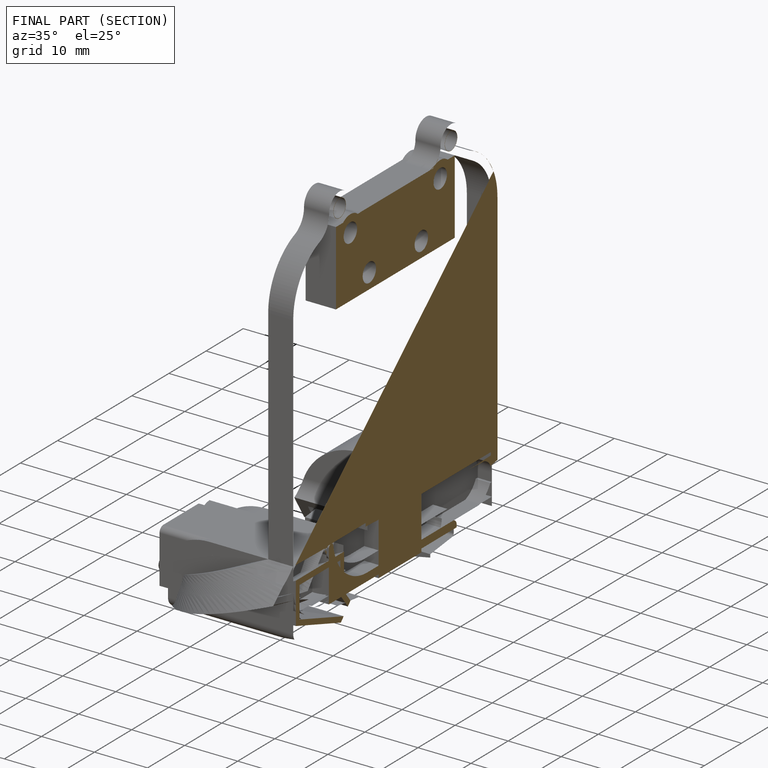
[diagram: finished part — half-section view (interior)]
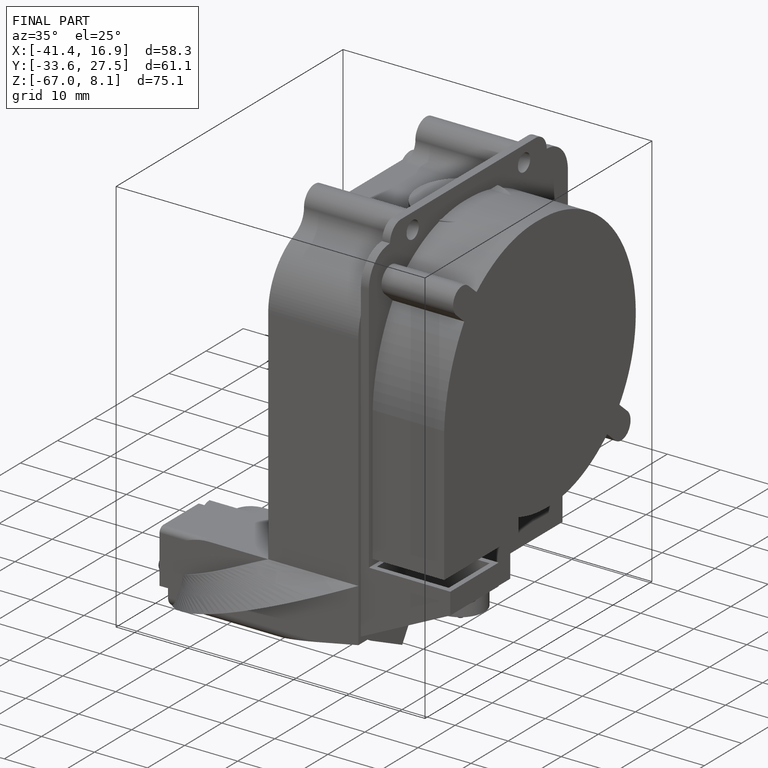
[diagram: finished part — iso view with bounding-box wireframe]
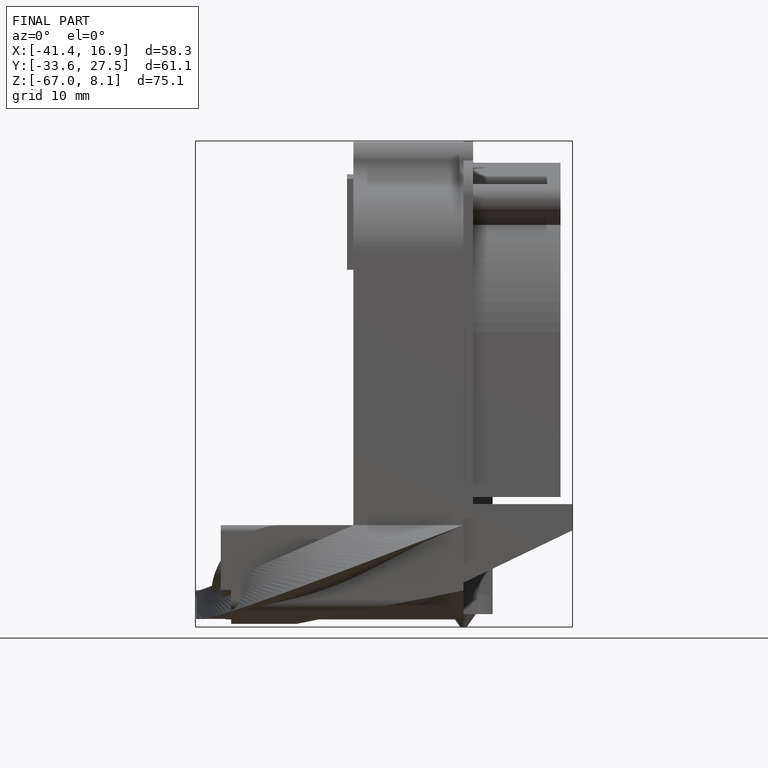
[diagram: finished part — front view with bounding-box wireframe]
